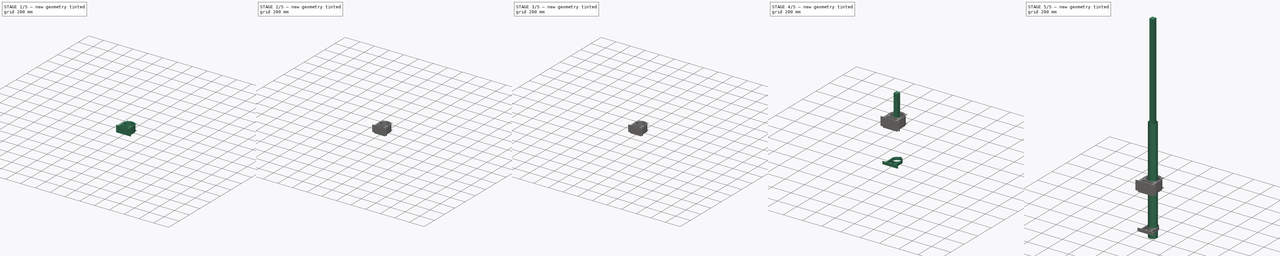
[diagram: build sequence overview — one tinted view per stage of 5, left to right]
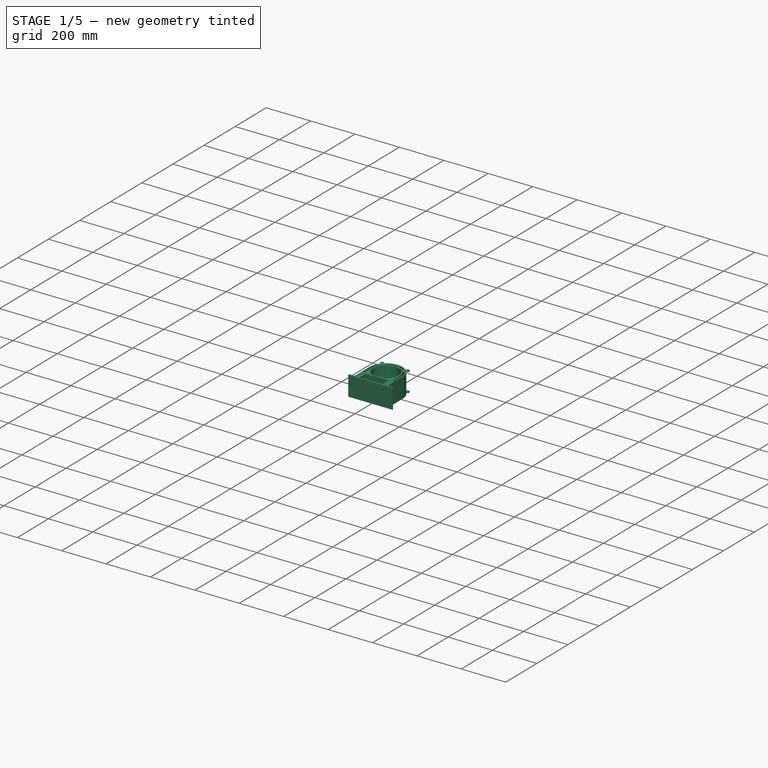
[diagram: stage 1 of 5 — iso view after this stage's code; geometry added in this stage tinted green]
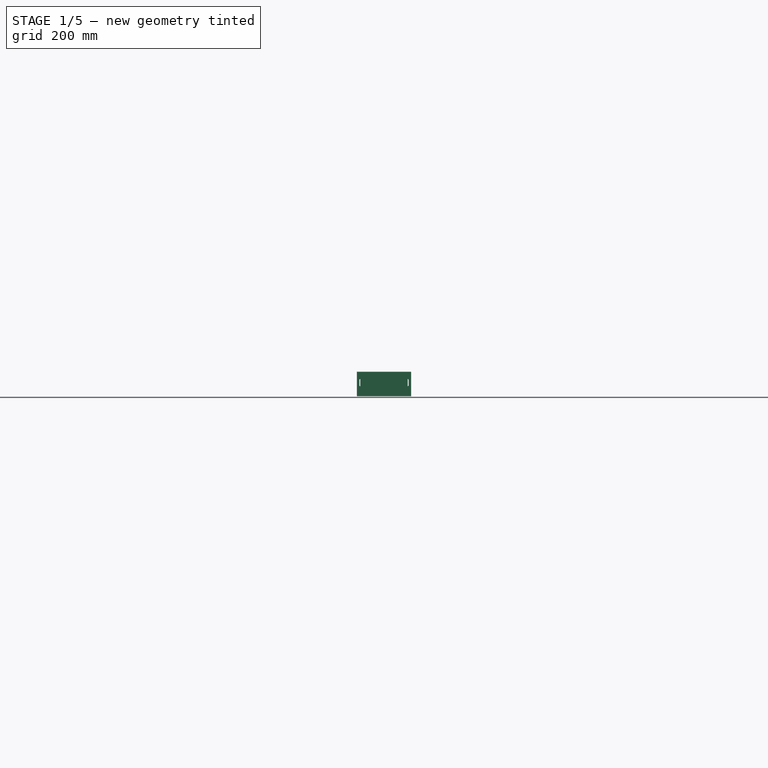
[diagram: stage 1 of 5 — front view after this stage's code; geometry added in this stage tinted green]
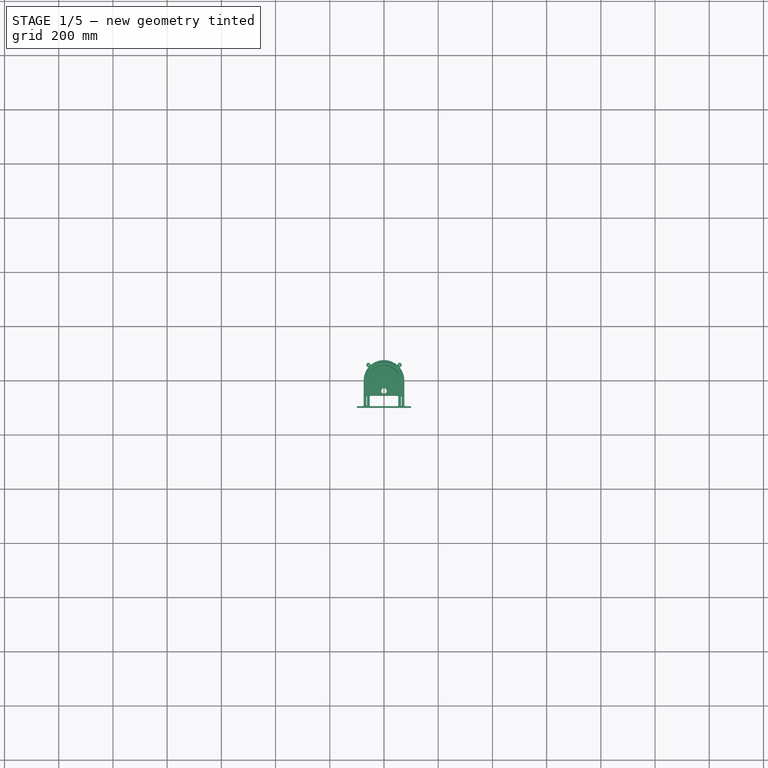
[diagram: stage 1 of 5 — top view after this stage's code; geometry added in this stage tinted green]
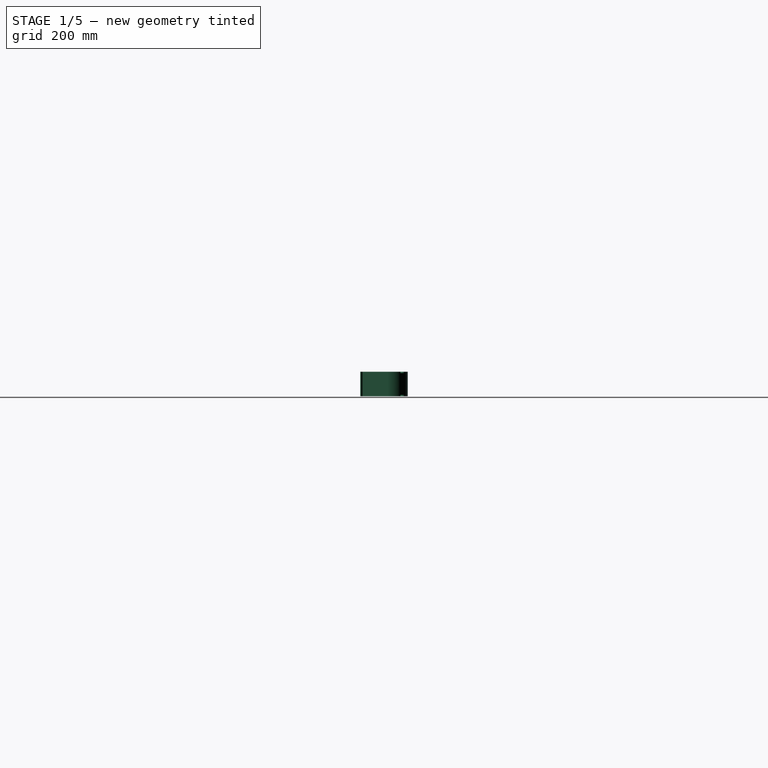
[diagram: stage 1 of 5 — right view after this stage's code; geometry added in this stage tinted green]
FCSTD DOCUMENT  (FreeCAD 0.19R)
Label: mock-up_horizontal_setup
License: All rights reserved
LicenseURL: http://en.wikipedia.org/wiki/All_rights_reserved
objects: Sketcher::SketchObject×48, PartDesign::Pad×34, PartDesign::Body×28, PartDesign::Pocket×14, PartDesign::FeatureBase×5, Spreadsheet::Sheet×1
note: 177 computed .brp shape members not serialized (recipe doc carries the construction recipe); baked Part::Feature solids carry a one-line shape summary decoded from their .brp

FEATURE [PartDesign::Body] Body  label="sample"
  Group = -> [Sketch331,Pad255,Sketch332,Pad256,Sketch333,Pocket062]
  Origin = -> Origin
  Placement = pos=(0,0,900) rot=(0,0,1;0rad)
  Tip = -> Pocket062
FEATURE [Sketcher::SketchObject] Sketch335
  FullyConstrained = true
  MapMode = 5
  Support = -> [XY_Plane102]
  expr: Constraints[54] = 99 / 2
  expr: Constraints[52] = 175 / 2
  expr: Constraints[5] = <<parameters>>.sample_diam
  expr: Constraints[0] = <<parameters>>.support_inner_diam
  sketch-geometry (21):
    g0: Circle CenterX=0 CenterY=0 CenterZ=0 NormalX=0 NormalY=0 NormalZ=1 AngleXU=0 Radius=46
    g1: ArcOfCircle CenterX=0 CenterY=0 CenterZ=0 NormalX=0 NormalY=0 NormalZ=1 AngleXU=0 Radius=62.5 StartAngle=0 EndAngle=3.14159
    g2: LineSegment StartX=62.5 StartY=0 StartZ=0 EndX=62.5 EndY=-92 EndZ=0
    g3: LineSegment StartX=-62.5 StartY=7.7e-15 StartZ=0 EndX=-62.5 EndY=-92 EndZ=0
    g4: LineSegment StartX=-65.5 StartY=-95 StartZ=0 EndX=-85.5 EndY=-95 EndZ=0
    g5: LineSegment StartX=-87.5 StartY=-97 StartZ=0 EndX=-87.5 EndY=-100 EndZ=0
    g6: LineSegment StartX=-87.5 StartY=-100 StartZ=0 EndX=87.5 EndY=-100 EndZ=0
    g7: LineSegment StartX=87.5 StartY=-100 StartZ=0 EndX=87.5 EndY=-97 EndZ=0
    g8: LineSegment StartX=65.5 StartY=-95 StartZ=0 EndX=85.5 EndY=-95 EndZ=0
    g9: ArcOfCircle CenterX=-85.5 CenterY=-97 CenterZ=0 NormalX=0 NormalY=0 NormalZ=1 AngleXU=0 Radius=2 StartAngle=1.5708 EndAngle=3.14159
    g10: ArcOfCircle CenterX=-65.5 CenterY=-92 CenterZ=0 NormalX=0 NormalY=0 NormalZ=1 AngleXU=0 Radius=3 StartAngle=4.71239 EndAngle=6.28319
    g11: ArcOfCircle CenterX=65.5 CenterY=-92 CenterZ=0 NormalX=0 NormalY=0 NormalZ=1 AngleXU=0 Radius=3 StartAngle=3.14159 EndAngle=4.71239
    g12: LineSegment StartX=-52.5 StartY=-58 StartZ=0 EndX=-52.5 EndY=-92 EndZ=0
    g13: LineSegment StartX=-49.5 StartY=-95 StartZ=0 EndX=49.5 EndY=-95 EndZ=0
    g14: LineSegment StartX=52.5 StartY=-92 StartZ=0 EndX=52.5 EndY=-58 EndZ=0
    g15: ArcOfCircle CenterX=-49.5 CenterY=-92 CenterZ=0 NormalX=0 NormalY=0 NormalZ=1 AngleXU=0 Radius=3 StartAngle=3.14159 EndAngle=4.71239
    g16: ArcOfCircle CenterX=-49.5 CenterY=-58 CenterZ=0 NormalX=0 NormalY=0 NormalZ=1 AngleXU=0 Radius=3 StartAngle=1.5708 EndAngle=3.14159
    g17: ArcOfCircle CenterX=49.5 CenterY=-58 CenterZ=0 NormalX=0 NormalY=0 NormalZ=1 AngleXU=0 Radius=3 StartAngle=-9e-16 EndAngle=1.5708
    g18: ArcOfCircle CenterX=49.5 CenterY=-92 CenterZ=0 NormalX=0 NormalY=0 NormalZ=1 AngleXU=0 Radius=3 StartAngle=4.71239 EndAngle=6.28319
    g19: ArcOfCircle CenterX=85.5 CenterY=-97 CenterZ=0 NormalX=0 NormalY=0 NormalZ=1 AngleXU=0 Radius=2 StartAngle=8e-16 EndAngle=1.5708
    g20: LineSegment StartX=-49.5 StartY=-55 StartZ=0 EndX=49.5 EndY=-55 EndZ=0
  constraints (56):
    c: Diameter(g0) = 92
    c: Coincident(g0,g-1)
    c: Coincident(g1,g0)
    c: PointOnObject(g1,g-1)
    c: PointOnObject(g1,g-1)
    c: Diameter(g1) = 125
    c: Coincident(g2,g1)
    c: Vertical(g2)
    c: Coincident(g3,g1)
    c: Vertical(g3)
    c: Horizontal(g4)
    c: Vertical(g5)
    c: Coincident(g6,g5)
    c: Horizontal(g6)
    c: Coincident(g7,g6)
    c: Vertical(g7)
    c: Horizontal(g8)
    c: Tangent(g4,g9) = -1.5708
    c: Tangent(g5,g9) = -1.5708
    c: Tangent(g4,g10) = 1.5708
    c: Tangent(g3,g10) = 1.5708
    c: Tangent(g2,g11) = -1.5708
    c: Tangent(g8,g11) = -1.5708
    c: Vertical(g12)
    c: Horizontal(g13)
    c: Vertical(g14)
    c: Tangent(g12,g15) = -1.5708
    c: Tangent(g13,g15) = -1.5708
    c: Tangent(g12,g16) = -1.5708
    c: Tangent(g14,g17) = -1.5708
    c: Tangent(g13,g18) = -1.5708
    c: Tangent(g14,g18) = -1.5708
    c: Tangent(g7,g19) = -1.5708
    c: Tangent(g8,g19) = 1.5708
    c: DistanceX(g6,g6) = 175
    c: Horizontal(g13,g8)
    c: Horizontal(g14,g2)
    c: Horizontal(g12,g14)
    c: Horizontal(g3,g12)
    c: Horizontal(g4,g13)
    c: Radius(g15) = 3
    c: Equal(g9,g19)
    c: Radius(g19) = 2
    c: DistanceY(g6,g8) = 5
    c: DistanceY(g6,g0) = 100
    c: Coincident(g20,g16)
    c: Coincident(g20,g17)
    c: Horizontal(g20)
    c: DistanceX(g3,g12) = 10
    c: DistanceX(g14,g2) = 10
    c: DistanceY(g17,g0) = 55
    c: DistanceX(g16,g17) = 99
    c: DistanceX(g5,g0) = 87.5
    c: Equal(g17,g16)
    c: DistanceX(g16,g0) = 49.5
    c: Radius(g17) = 3
FEATURE [PartDesign::Pad] Pad258
  Direction = (1,1,1)
  Length = 10
  Length2 = 100
  Profile = -> Sketch335
  Type = 0
FEATURE [Sketcher::SketchObject] Sketch336
  FullyConstrained = true
  MapMode = 5
  Placement = pos=(0,0,10) rot=(0,0,1;0rad)
  Support = -> [Pad258]
  sketch-geometry (24):
    g0: ArcOfCircle CenterX=0 CenterY=0 CenterZ=0 NormalX=0 NormalY=0 NormalZ=1 AngleXU=0 Radius=62.5 StartAngle=0 EndAngle=3.14159
    g1: ArcOfCircle CenterX=0 CenterY=0 CenterZ=0 NormalX=0 NormalY=0 NormalZ=1 AngleXU=0 Radius=57.0636 StartAngle=5.21523 EndAngle=10.4927
    g2: LineSegment StartX=-27.5 StartY=-50 StartZ=0 EndX=27.5 EndY=-50 EndZ=0
    g3: LineSegment StartX=-62.5 StartY=7.7e-15 StartZ=0 EndX=-62.5 EndY=-92 EndZ=0
    g4: LineSegment StartX=-65.5 StartY=-95 StartZ=0 EndX=-85.5 EndY=-95 EndZ=0
    g5: LineSegment StartX=-87.5 StartY=-97 StartZ=0 EndX=-87.5 EndY=-100 EndZ=0
    g6: LineSegment StartX=-87.5 StartY=-100 StartZ=0 EndX=87.5 EndY=-100 EndZ=0
    g7: LineSegment StartX=87.5 StartY=-100 StartZ=0 EndX=87.5 EndY=-97 EndZ=0
    g8: LineSegment StartX=85.5 StartY=-95 StartZ=0 EndX=65.5 EndY=-95 EndZ=0
    g9: LineSegment StartX=62.5 StartY=-92 StartZ=0 EndX=62.5 EndY=0 EndZ=0
    g10: LineSegment StartX=-49.5 StartY=-55 StartZ=0 EndX=49.5 EndY=-55 EndZ=0
    g11: LineSegment StartX=52.5 StartY=-58 StartZ=0 EndX=52.5 EndY=-92 EndZ=0
    g12: LineSegment StartX=49.5 StartY=-95 StartZ=0 EndX=-49.5 EndY=-95 EndZ=0
    g13: LineSegment StartX=-52.5 StartY=-92 StartZ=0 EndX=-52.5 EndY=-58 EndZ=0
    g14: ArcOfCircle CenterX=-49.5 CenterY=-58 CenterZ=0 NormalX=0 NormalY=0 NormalZ=1 AngleXU=0 Radius=3 StartAngle=1.5708 EndAngle=3.14159
    g15: ArcOfCircle CenterX=49.5 CenterY=-58 CenterZ=0 NormalX=0 NormalY=0 NormalZ=1 AngleXU=0 Radius=3 StartAngle=7e-16 EndAngle=1.5708
    g16: ArcOfCircle CenterX=49.5 CenterY=-92 CenterZ=0 NormalX=0 NormalY=0 NormalZ=1 AngleXU=0 Radius=3 StartAngle=4.71239 EndAngle=6.28319
    g17: ArcOfCircle CenterX=-49.5 CenterY=-92 CenterZ=0 NormalX=0 NormalY=0 NormalZ=1 AngleXU=0 Radius=3 StartAngle=3.14159 EndAngle=4.71239
    g18: ArcOfCircle CenterX=-65.5 CenterY=-92 CenterZ=0 NormalX=0 NormalY=0 NormalZ=1 AngleXU=0 Radius=3 StartAngle=4.71239 EndAngle=6.28319
    g19: ArcOfCircle CenterX=-85.5 CenterY=-97 CenterZ=0 NormalX=0 NormalY=0 NormalZ=1 AngleXU=0 Radius=2 StartAngle=1.5708 EndAngle=3.14159
    g20: ArcOfCircle CenterX=65.5 CenterY=-92 CenterZ=0 NormalX=0 NormalY=0 NormalZ=1 AngleXU=0 Radius=3 StartAngle=3.14159 EndAngle=4.71239
    g21: ArcOfCircle CenterX=85.5 CenterY=-97 CenterZ=0 NormalX=0 NormalY=0 NormalZ=1 AngleXU=0 Radius=2 StartAngle=-2.7e-15 EndAngle=1.5708
    g22: LineSegment StartX=-62.5 StartY=-92 StartZ=0 EndX=-52.5 EndY=-92 EndZ=0
    g23: LineSegment StartX=52.5 StartY=-92 StartZ=0 EndX=62.5 EndY=-92 EndZ=0
  constraints (62):
    c: Coincident(g0,g-1)
    c: PointOnObject(g0,g-1)
    c: PointOnObject(g0,g-1)
    c: Coincident(g1,g0)
    c: Coincident(g2,g1)
    c: Coincident(g2,g1)
    c: Horizontal(g2)
    c: DistanceX(g2,g2) = 55
    c: DistanceY(g1,g0) = 50
    c: Coincident(g3,g0)
    c: Vertical(g3)
    c: Horizontal(g4)
    c: Vertical(g5)
    c: Coincident(g6,g5)
    c: Horizontal(g6)
    c: Coincident(g7,g6)
    c: Horizontal(g8)
    c: Coincident(g9,g0)
    c: Vertical(g9)
    c: Vertical(g7)
    c: Horizontal(g10)
    c: Vertical(g11)
    c: Horizontal(g12)
    c: Vertical(g13)
    c: Tangent(g13,g14) = 1.5708
    c: Tangent(g10,g14) = 1.5708
    c: Tangent(g10,g15) = 1.5708
    c: Tangent(g11,g15) = 1.5708
    c: Tangent(g12,g16) = 1.5708
    c: Tangent(g11,g16) = 1.5708
    c: Tangent(g13,g17) = 1.5708
    c: Tangent(g12,g17) = 1.5708
    c: Tangent(g4,g18) = 1.5708
    c: Tangent(g3,g18) = 1.5708
    c: Tangent(g5,g19) = -1.5708
    c: Tangent(g4,g19) = -1.5708
    c: Tangent(g9,g20) = 1.5708
    c: Tangent(g8,g20) = 1.5708
    c: Tangent(g7,g21) = -1.5708
    c: Tangent(g8,g21) = -1.5708
    c: Equal(g19,g21)
    c: Equal(g20,g16)
    c: Equal(g18,g17)
    c: Equal(g17,g16)
    c: Coincident(g22,g3)
    c: Coincident(g22,g13)
    c: Coincident(g23,g11)
    c: Coincident(g23,g9)
    c: Horizontal(g23)
    c: Horizontal(g22)
    c: Equal(g15,g14)
    c: Equal(g22,g23)
    c: DistanceX(g22,g22) = 10
    c: DistanceX(g10,g10) = 99
    c: DistanceX(g5,g6) = 175
    c: Radius(g21) = 2
    c: DistanceY(g5,g4) = 5
    c: DistanceY(g6,g0) = 100
    c: DistanceX(g5,g0) = 87.5
    c: Radius(g17) = 3
    c: DistanceX(g12,g12) = 99
    c: DistanceY(g10,g1) = 5
FEATURE [PartDesign::Pad] Pad259
  BaseFeature = -> Pad258
  Direction = (1,1,1)
  Length = 75
  Length2 = 100
  Profile = -> Sketch336
  Type = 0
FEATURE [Sketcher::SketchObject] Sketch337
  FullyConstrained = true
  MapMode = 5
  Placement = pos=(0,0,85) rot=(0,0,1;0rad)
  Support = -> [Pad259]
  expr: Constraints[75] = 175 / 2
  sketch-geometry (36):
    g0: ArcOfCircle CenterX=0 CenterY=7.1e-15 CenterZ=0 NormalX=0 NormalY=0 NormalZ=1 AngleXU=0 Radius=62.5 StartAngle=2.49582 EndAngle=3.14159
    g1: ArcOfCircle CenterX=0 CenterY=7.1e-15 CenterZ=0 NormalX=0 NormalY=0 NormalZ=1 AngleXU=0 Radius=62.5 StartAngle=0 EndAngle=0.645772
    g2: ArcOfCircle CenterX=0 CenterY=7.1e-15 CenterZ=0 NormalX=0 NormalY=0 NormalZ=1 AngleXU=0 Radius=62.5 StartAngle=0.925025 EndAngle=2.21657
    g3: ArcOfCircle CenterX=-47.3633 CenterY=47.3633 CenterZ=0 NormalX=0 NormalY=0 NormalZ=1 AngleXU=0 Radius=7.5 StartAngle=0.451928 EndAngle=4.26046
    g4: LineSegment StartX=-47.3633 StartY=47.3633 StartZ=0 EndX=47.3633 EndY=47.3633 EndZ=0
    g5: LineSegment StartX=47.3633 StartY=47.3633 StartZ=0 EndX=0 EndY=7.1e-15 EndZ=0
    g6: LineSegment StartX=0 StartY=7.1e-15 StartZ=0 EndX=-47.3633 EndY=47.3633 EndZ=0
    g7: Circle CenterX=47.3633 CenterY=47.3633 CenterZ=0 NormalX=0 NormalY=0 NormalZ=1 AngleXU=0 Radius=2.25
    g8: Circle CenterX=-47.3633 CenterY=47.3633 CenterZ=0 NormalX=0 NormalY=0 NormalZ=1 AngleXU=0 Radius=2.25
    g9: ArcOfCircle CenterX=47.3633 CenterY=47.3633 CenterZ=0 NormalX=0 NormalY=0 NormalZ=1 AngleXU=0 Radius=7.5 StartAngle=5.16432 EndAngle=8.97285
    g10: ArcOfCircle CenterX=38.8171 CenterY=51.512 CenterZ=0 NormalX=0 NormalY=0 NormalZ=1 AngleXU=0 Radius=2 StartAngle=4.06662 EndAngle=5.83126
    g11: ArcOfCircle CenterX=51.512 CenterY=38.8171 CenterZ=0 NormalX=0 NormalY=0 NormalZ=1 AngleXU=0 Radius=2 StartAngle=2.02272 EndAngle=3.78736
    g12: ArcOfCircle CenterX=-38.8171 CenterY=51.512 CenterZ=0 NormalX=0 NormalY=0 NormalZ=1 AngleXU=0 Radius=2 StartAngle=3.59352 EndAngle=5.35816
    g13: ArcOfCircle CenterX=-51.512 CenterY=38.8171 CenterZ=0 NormalX=0 NormalY=0 NormalZ=1 AngleXU=0 Radius=2 StartAngle=5.63741 EndAngle=7.40205
    g14: LineSegment StartX=49.9147 StartY=37.6134 StartZ=0 EndX=0 EndY=7.1e-15 EndZ=0
    g15: LineSegment StartX=-62.5 StartY=1.48e-14 StartZ=0 EndX=-62.5 EndY=-92 EndZ=0
    g16: LineSegment StartX=-65.5 StartY=-95 StartZ=0 EndX=-85.5 EndY=-95 EndZ=0
    g17: LineSegment StartX=-87.5 StartY=-97 StartZ=0 EndX=-87.5 EndY=-100 EndZ=0
    g18: LineSegment StartX=-87.5 StartY=-100 StartZ=0 EndX=87.5 EndY=-100 EndZ=0
    g19: LineSegment StartX=87.5 StartY=-100 StartZ=0 EndX=87.5 EndY=-97 EndZ=0
    g20: LineSegment StartX=85.5 StartY=-95 StartZ=0 EndX=65.5 EndY=-95 EndZ=0
    g21: LineSegment StartX=62.5 StartY=-92 StartZ=0 EndX=62.5 EndY=0 EndZ=0
    g22: LineSegment StartX=-49.5 StartY=-55 StartZ=0 EndX=49.5 EndY=-55 EndZ=0
    g23: LineSegment StartX=52.5 StartY=-58 StartZ=0 EndX=52.5 EndY=-92 EndZ=0
    g24: LineSegment StartX=49.5 StartY=-95 StartZ=0 EndX=-49.5 EndY=-95 EndZ=0
    g25: LineSegment StartX=-52.5 StartY=-92 StartZ=0 EndX=-52.5 EndY=-58 EndZ=0
    g26: ArcOfCircle CenterX=-49.5 CenterY=-58 CenterZ=0 NormalX=0 NormalY=0 NormalZ=1 AngleXU=0 Radius=3 StartAngle=1.5708 EndAngle=3.14159
    g27: ArcOfCircle CenterX=49.5 CenterY=-58 CenterZ=0 NormalX=0 NormalY=0 NormalZ=1 AngleXU=0 Radius=3 StartAngle=2e-16 EndAngle=1.5708
    g28: ArcOfCircle CenterX=65.5 CenterY=-92 CenterZ=0 NormalX=0 NormalY=0 NormalZ=1 AngleXU=0 Radius=3 StartAngle=3.14159 EndAngle=4.71239
    g29: ArcOfCircle CenterX=49.5 CenterY=-92 CenterZ=0 NormalX=0 NormalY=0 NormalZ=1 AngleXU=0 Radius=3 StartAngle=4.71239 EndAngle=6.28319
    g30: ArcOfCircle CenterX=-49.5 CenterY=-92 CenterZ=0 NormalX=0 NormalY=0 NormalZ=1 AngleXU=0 Radius=3 StartAngle=3.14159 EndAngle=4.71239
    g31: ArcOfCircle CenterX=-65.5 CenterY=-92 CenterZ=0 NormalX=0 NormalY=0 NormalZ=1 AngleXU=0 Radius=3 StartAngle=4.71239 EndAngle=6.28319
    g32: ArcOfCircle CenterX=-85.5 CenterY=-97 CenterZ=0 NormalX=0 NormalY=0 NormalZ=1 AngleXU=0 Radius=2 StartAngle=1.5708 EndAngle=3.14159
    g33: ArcOfCircle CenterX=85.5 CenterY=-97 CenterZ=0 NormalX=0 NormalY=0 NormalZ=1 AngleXU=0 Radius=2 StartAngle=8e-16 EndAngle=1.5708
    g34: ArcOfCircle CenterX=0 CenterY=7.1e-15 CenterZ=0 NormalX=0 NormalY=0 NormalZ=1 AngleXU=0 Radius=57.0636 StartAngle=5.21523 EndAngle=10.4927
    g35: LineSegment StartX=-27.5 StartY=-50 StartZ=0 EndX=27.5 EndY=-50 EndZ=0
  constraints (92):
    c: PointOnObject(g0,g-1)
    c: PointOnObject(g1,g-1)
    c: Coincident(g4,g3)
    c: Coincident(g6,g3)
    c: Horizontal(g4)
    c: Angle(g-1,g5) = 0.785398
    c: Diameter(g2) = 125
    c: Diameter(g3) = 15
    c: Coincident(g8,g3)
    c: Coincident(g9,g7)
    c: Tangent(g9,g10) = 1.5708
    c: Tangent(g2,g10) = 1.5708
    c: Tangent(g1,g11) = 1.5708
    c: Tangent(g9,g11) = 1.5708
    c: Tangent(g3,g12) = 1.5708
    c: Tangent(g2,g12) = 1.5708
    c: Tangent(g0,g13) = 1.5708
    c: Tangent(g3,g13) = 1.5708
    c: Diameter(g7) = 4.5
    c: Equal(g7,g8)
    c: Equal(g11,g10)
    c: Equal(g10,g12)
    c: Equal(g12,g13)
    c: Radius(g12) = 2
    c: Coincident(g14,g1)
    c: Coincident(g14,g5)
    c: Coincident(g2,g5)
    c: Coincident(g2,g1)
    c: Coincident(g1,g0)
    c: Coincident(g0,g-1)
    c: Angle(g14,g5) = 0.139626
    c: Diameter(g1) = 125
    c: Coincident(g5,g7)
    c: Coincident(g7,g4)
    c: Coincident(g15,g0)
    c: Vertical(g15)
    c: Horizontal(g16)
    c: Vertical(g17)
    c: Coincident(g18,g17)
    c: Horizontal(g18)
    c: Coincident(g19,g18)
    c: Horizontal(g20)
    c: Coincident(g21,g1)
    c: Vertical(g21)
    c: Vertical(g19)
    c: Horizontal(g22)
    c: Vertical(g23)
    c: Horizontal(g24)
    c: Vertical(g25)
    c: Tangent(g25,g26) = 1.5708
    c: Tangent(g22,g26) = 1.5708
    c: Tangent(g22,g27) = 1.5708
    c: Tangent(g23,g27) = 1.5708
    c: Tangent(g21,g28) = 1.5708
    c: Tangent(g20,g28) = 1.5708
    c: Tangent(g24,g29) = 1.5708
    c: Tangent(g23,g29) = 1.5708
    c: Tangent(g24,g30) = 1.5708
    c: Tangent(g25,g30) = 1.5708
    c: Tangent(g16,g31) = 1.5708
    c: Tangent(g15,g31) = 1.5708
    c: Tangent(g17,g32) = -1.5708
    c: Tangent(g16,g32) = -1.5708
    c: Tangent(g20,g33) = -1.5708
    c: Tangent(g19,g33) = -1.5708
    c: Equal(g26,g27)
    c: Equal(g28,g29)
    c: Equal(g29,g30)
    c: Equal(g30,g31)
    c: Horizontal(g15,g25)
    c: Horizontal(g23,g21)
    c: Radius(g28) = 3
    c: Equal(g33,g32)
    c: Radius(g33) = 2
    c: DistanceX(g18,g18) = 175
    c: DistanceX(g17,g0) = 87.5
    c: DistanceY(g18,g20) = 5
    c: DistanceY(g18,g0) = 100
    c: DistanceX(g15,g25) = 10
    c: DistanceX(g23,g21) = 10
    c: Radius(g27) = 3
    c: Coincident(g34,g0)
    c: Coincident(g35,g34)
    c: Coincident(g35,g34)
    c: Horizontal(g35)
    c: DistanceX(g35,g35) = 55
    c: DistanceY(g34,g0) = 50
    c: DistanceY(g22,g34) = 5
    c: Equal(g1,g0)
    c: Equal(g6,g5)
    c: Equal(g3,g9)
    c: Coincident(g0,g6)
FEATURE [PartDesign::Pad] Pad260
  BaseFeature = -> Pad259
  Direction = (1,1,1)
  Length = 5
  Length2 = 100
  Profile = -> Sketch337
  Type = 0
FEATURE [Sketcher::SketchObject] Sketch338
  FullyConstrained = true
  MapMode = 5
  Placement = pos=(0,-50,0) rot=(0,0.707107,0.707107;3.14159rad)
  Support = -> [Pad260]
  sketch-geometry (2):
    g0: Circle CenterX=0 CenterY=20 CenterZ=0 NormalX=0 NormalY=0 NormalZ=1 AngleXU=0 Radius=1.7
    g1: Circle CenterX=0 CenterY=50 CenterZ=0 NormalX=0 NormalY=0 NormalZ=1 AngleXU=0 Radius=1.7
  constraints (6):
    c: PointOnObject(g0,g-2)
    c: PointOnObject(g1,g-2)
    c: Diameter(g1) = 3.4
    c: Equal(g1,g0)
    c: DistanceY(g0,g1) = 30
    c: DistanceY(g-1,g0) = 20
FEATURE [PartDesign::Pocket] Pocket063
  BaseFeature = -> Pad260
  Length = 5
  Length2 = 100
  Profile = -> Sketch338
  Type = 0
FEATURE [PartDesign::Body] Body102  label="sample_support001"
  Group = -> [Sketch335,Pad258,Sketch336,Pad259,Sketch337,Pad260,Sketch338,Pocket063,Sketch339,Pocket064]
  Origin = -> Origin102
  Placement = pos=(0,0,890) rot=(0,0,1;0rad)
  Tip = -> Pocket064
FEATURE [Sketcher::SketchObject] Sketch
  FullyConstrained = true
  MapMode = 5
  Support = -> [XY_Plane103]
  expr: Constraints[52] = <<parameters>>.support_inner_diam + 8
  sketch-geometry (33):
    g0: Circle CenterX=0 CenterY=0 CenterZ=0 NormalX=0 NormalY=0 NormalZ=1 AngleXU=0 Radius=50
    g1: LineSegment StartX=-75 StartY=-90 StartZ=0 EndX=-75 EndY=0 EndZ=0
    g2: LineSegment StartX=75 StartY=-90 StartZ=0 EndX=75 EndY=0 EndZ=0
    g3: LineSegment StartX=-80 StartY=-95 StartZ=0 EndX=-97 EndY=-95 EndZ=0
    g4: LineSegment StartX=-100 StartY=-98 StartZ=0 EndX=-100 EndY=-100 EndZ=0
    g5: LineSegment StartX=-100 StartY=-100 StartZ=0 EndX=-40 EndY=-100 EndZ=0
    g6: LineSegment StartX=-40 StartY=-100 StartZ=0 EndX=-40 EndY=-98 EndZ=0
    g7: LineSegment StartX=-43 StartY=-95 StartZ=0 EndX=-60 EndY=-95 EndZ=0
    g8: LineSegment StartX=-65 StartY=-90 StartZ=0 EndX=-65 EndY=-60 EndZ=0
    g9: LineSegment StartX=-60 StartY=-55 StartZ=0 EndX=60 EndY=-55 EndZ=0
    g10: LineSegment StartX=65 StartY=-60 StartZ=0 EndX=65 EndY=-90 EndZ=0
    g11: LineSegment StartX=60 StartY=-95 StartZ=0 EndX=43 EndY=-95 EndZ=0
    g12: LineSegment StartX=40 StartY=-98 StartZ=0 EndX=40 EndY=-100 EndZ=0
    g13: LineSegment StartX=40 StartY=-100 StartZ=0 EndX=100 EndY=-100 EndZ=0
    g14: LineSegment StartX=80 StartY=-95 StartZ=0 EndX=97 EndY=-95 EndZ=0
    g15: LineSegment StartX=100 StartY=-98 StartZ=0 EndX=100 EndY=-100 EndZ=0
    g16: ArcOfCircle CenterX=-97 CenterY=-98 CenterZ=0 NormalX=0 NormalY=0 NormalZ=1 AngleXU=0 Radius=3 StartAngle=1.5708 EndAngle=3.14159
    g17: ArcOfCircle CenterX=-80 CenterY=-90 CenterZ=0 NormalX=0 NormalY=0 NormalZ=1 AngleXU=0 Radius=5 StartAngle=4.71239 EndAngle=6.28319
    g18: ArcOfCircle CenterX=-60 CenterY=-90 CenterZ=0 NormalX=0 NormalY=0 NormalZ=1 AngleXU=0 Radius=5 StartAngle=3.14159 EndAngle=4.71239
    g19: ArcOfCircle CenterX=-43 CenterY=-98 CenterZ=0 NormalX=0 NormalY=0 NormalZ=1 AngleXU=0 Radius=3 StartAngle=8e-16 EndAngle=1.5708
    g20: ArcOfCircle CenterX=43 CenterY=-98 CenterZ=0 NormalX=0 NormalY=0 NormalZ=1 AngleXU=0 Radius=3 StartAngle=1.5708 EndAngle=3.14159
    g21: ArcOfCircle CenterX=60 CenterY=-90 CenterZ=0 NormalX=0 NormalY=0 NormalZ=1 AngleXU=0 Radius=5 StartAngle=4.71239 EndAngle=6.28319
    g22: ArcOfCircle CenterX=80 CenterY=-90 CenterZ=0 NormalX=0 NormalY=0 NormalZ=1 AngleXU=0 Radius=5 StartAngle=3.14159 EndAngle=4.71239
    g23: ArcOfCircle CenterX=97 CenterY=-98 CenterZ=0 NormalX=0 NormalY=0 NormalZ=1 AngleXU=0 Radius=3 StartAngle=1.3e-15 EndAngle=1.5708
    g24: LineSegment StartX=-80 StartY=-95 StartZ=0 EndX=-60 EndY=-95 EndZ=0
    g25: LineSegment StartX=60 StartY=-95 StartZ=0 EndX=80 EndY=-95 EndZ=0
    g26: LineSegment StartX=-40 StartY=-100 StartZ=0 EndX=40 EndY=-100 EndZ=0
    g27: LineSegment StartX=-75 StartY=0 StartZ=0 EndX=75 EndY=0 EndZ=0
    g28: ArcOfCircle CenterX=0 CenterY=0 CenterZ=0 NormalX=0 NormalY=0 NormalZ=1 AngleXU=0 Radius=75 StartAngle=0 EndAngle=3.14159
    g29: ArcOfCircle CenterX=-60 CenterY=-60 CenterZ=0 NormalX=0 NormalY=0 NormalZ=1 AngleXU=0 Radius=5 StartAngle=1.5708 EndAngle=3.14159
    g30: ArcOfCircle CenterX=60 CenterY=-60 CenterZ=0 NormalX=0 NormalY=0 NormalZ=1 AngleXU=0 Radius=5 StartAngle=-9e-16 EndAngle=1.5708
    g31: LineSegment StartX=-75 StartY=-90 StartZ=0 EndX=-65 EndY=-90 EndZ=0
    g32: LineSegment StartX=65 StartY=-90 StartZ=0 EndX=75 EndY=-90 EndZ=0
  constraints (82):
    c: Coincident(g0,g-1)
    c: Vertical(g1)
    c: Vertical(g2)
    c: Vertical(g4)
    c: Coincident(g5,g4)
    c: Horizontal(g5)
    c: Coincident(g6,g5)
    c: Vertical(g6)
    c: Horizontal(g7)
    c: Vertical(g8)
    c: Horizontal(g9)
    c: Vertical(g10)
    c: Horizontal(g11)
    c: Vertical(g12)
    c: Coincident(g13,g12)
    c: Horizontal(g13)
    c: Horizontal(g3)
    c: Horizontal(g14)
    c: Coincident(g15,g13)
    c: Vertical(g15)
    c: Tangent(g4,g16) = -1.5708
    c: Tangent(g3,g16) = -1.5708
    c: Tangent(g3,g17) = 1.5708
    c: Tangent(g1,g17) = -1.5708
    c: Tangent(g8,g18) = 1.5708
    c: Tangent(g7,g18) = 1.5708
    c: Tangent(g7,g19) = -1.5708
    c: Tangent(g6,g19) = -1.5708
    c: Tangent(g12,g20) = -1.5708
    c: Tangent(g11,g20) = -1.5708
    c: Tangent(g11,g21) = 1.5708
    c: Tangent(g10,g21) = 1.5708
    c: Tangent(g2,g22) = 1.5708
    c: Tangent(g14,g22) = -1.5708
    c: Tangent(g14,g23) = 1.5708
    c: Tangent(g15,g23) = 1.5708
    c: Equal(g17,g18)
    c: Equal(g21,g18)
    c: Equal(g21,g22)
    c: Equal(g23,g20)
    c: Equal(g20,g19)
    c: Equal(g19,g16)
    c: Coincident(g24,g3)
    c: Coincident(g24,g7)
    c: Coincident(g25,g11)
    c: Coincident(g25,g14)
    c: Horizontal(g25)
    c: DistanceY(g13,g14) = 5
    c: DistanceY(g4,g3) = 5
    c: DistanceY(g13,g0) = 100
    c: Coincident(g26,g5)
    c: Coincident(g26,g12)
    c: Diameter(g0) = 100
    c: DistanceX(g1,g2) = 150
    c: Coincident(g27,g1)
    c: Coincident(g27,g2)
    c: Horizontal(g27)
    c: DistanceY(g2,g0) = 0
    c: Coincident(g28,g0)
    c: Coincident(g28,g1)
    c: Coincident(g28,g2)
    c: Tangent(g8,g29) = 1.5708
    c: Tangent(g9,g29) = 1.5708
    c: Tangent(g9,g30) = 1.5708
    c: Tangent(g10,g30) = 1.5708
    c: Equal(g30,g29)
    c: Radius(g30) = 5
    c: Radius(g18) = 5
    c: Radius(g19) = 3
    c: Horizontal(g26)
    c: DistanceX(g1,g8) = 10
    c: Coincident(g31,g1)
    c: Coincident(g31,g8)
    c: Horizontal(g31)
    c: Coincident(g32,g10)
    c: Coincident(g32,g2)
    c: Equal(g31,g32)
    c: DistanceX(g4,g13) = 200
    c: DistanceX(g4,g0) = 100
    c: DistanceX(g4,g5) = 60
    c: DistanceX(g12,g13) = 60
    c: DistanceY(g9,g0) = 55
FEATURE [PartDesign::Pad] Pad261
  Direction = (1,1,1)
  Length = 5
  Length2 = 100
  Profile = -> Sketch
  Type = 0
FEATURE [Sketcher::SketchObject] Sketch340
  FullyConstrained = true
  MapMode = 5
  Placement = pos=(0,0,5) rot=(0,0,1;0rad)
  Support = -> [Pad261]
  sketch-geometry (35):
    g0: LineSegment StartX=-75 StartY=9.2e-15 StartZ=0 EndX=-75 EndY=-90 EndZ=0
    g1: LineSegment StartX=-80 StartY=-95 StartZ=0 EndX=-97 EndY=-95 EndZ=0
    g2: LineSegment StartX=-100 StartY=-98 StartZ=0 EndX=-100 EndY=-100 EndZ=0
    g3: LineSegment StartX=-100 StartY=-100 StartZ=0 EndX=-40 EndY=-100 EndZ=0
    g4: LineSegment StartX=-40 StartY=-100 StartZ=0 EndX=-40 EndY=-98 EndZ=0
    g5: LineSegment StartX=-43 StartY=-95 StartZ=0 EndX=-60 EndY=-95 EndZ=0
    g6: LineSegment StartX=-65 StartY=-90 StartZ=0 EndX=-65 EndY=-60 EndZ=0
    g7: LineSegment StartX=-60 StartY=-55 StartZ=0 EndX=60 EndY=-55 EndZ=0
    g8: LineSegment StartX=65 StartY=-60 StartZ=0 EndX=65 EndY=-90 EndZ=0
    g9: LineSegment StartX=60 StartY=-95 StartZ=0 EndX=43 EndY=-95 EndZ=0
    g10: LineSegment StartX=40 StartY=-98 StartZ=0 EndX=40 EndY=-100 EndZ=0
    g11: LineSegment StartX=40 StartY=-100 StartZ=0 EndX=100 EndY=-100 EndZ=0
    g12: LineSegment StartX=100 StartY=-100 StartZ=0 EndX=100 EndY=-98 EndZ=0
    g13: LineSegment StartX=97 StartY=-95 StartZ=0 EndX=80 EndY=-95 EndZ=0
    g14: LineSegment StartX=75 StartY=-90 StartZ=0 EndX=75 EndY=0 EndZ=0
    g15: ArcOfCircle CenterX=0 CenterY=0 CenterZ=0 NormalX=0 NormalY=0 NormalZ=1 AngleXU=0 Radius=75 StartAngle=0 EndAngle=3.14159
    g16: LineSegment StartX=-65 StartY=-50 StartZ=0 EndX=65 EndY=-50 EndZ=0
    g17: LineSegment StartX=70 StartY=-45 StartZ=0 EndX=70 EndY=0 EndZ=0
    g18: LineSegment StartX=-70 StartY=-45 StartZ=0 EndX=-70 EndY=7.1e-15 EndZ=0
    g19: ArcOfCircle CenterX=0 CenterY=0 CenterZ=0 NormalX=0 NormalY=0 NormalZ=1 AngleXU=0 Radius=70 StartAngle=0 EndAngle=3.14159
    g20: ArcOfCircle CenterX=-60 CenterY=-60 CenterZ=0 NormalX=0 NormalY=0 NormalZ=1 AngleXU=0 Radius=5 StartAngle=1.5708 EndAngle=3.14159
    g21: ArcOfCircle CenterX=60 CenterY=-60 CenterZ=0 NormalX=0 NormalY=0 NormalZ=1 AngleXU=0 Radius=5 StartAngle=-9e-16 EndAngle=1.5708
    g22: ArcOfCircle CenterX=-60 CenterY=-90 CenterZ=0 NormalX=0 NormalY=0 NormalZ=1 AngleXU=0 Radius=5 StartAngle=3.14159 EndAngle=4.71239
    g23: ArcOfCircle CenterX=-80 CenterY=-90 CenterZ=0 NormalX=0 NormalY=0 NormalZ=1 AngleXU=0 Radius=5 StartAngle=4.71239 EndAngle=6.28319
    g24: ArcOfCircle CenterX=-43 CenterY=-98 CenterZ=0 NormalX=0 NormalY=0 NormalZ=1 AngleXU=0 Radius=3 StartAngle=1.5e-15 EndAngle=1.5708
    g25: ArcOfCircle CenterX=-97 CenterY=-98 CenterZ=0 NormalX=0 NormalY=0 NormalZ=1 AngleXU=0 Radius=3 StartAngle=1.5708 EndAngle=3.14159
    g26: ArcOfCircle CenterX=60 CenterY=-90 CenterZ=0 NormalX=0 NormalY=0 NormalZ=1 AngleXU=0 Radius=5 StartAngle=4.71239 EndAngle=6.28319
    g27: ArcOfCircle CenterX=80 CenterY=-90 CenterZ=0 NormalX=0 NormalY=0 NormalZ=1 AngleXU=0 Radius=5 StartAngle=3.14159 EndAngle=4.71239
    g28: ArcOfCircle CenterX=43 CenterY=-98 CenterZ=0 NormalX=0 NormalY=0 NormalZ=1 AngleXU=0 Radius=3 StartAngle=1.5708 EndAngle=3.14159
    g29: ArcOfCircle CenterX=97 CenterY=-98 CenterZ=0 NormalX=0 NormalY=0 NormalZ=1 AngleXU=0 Radius=3 StartAngle=1.2e-15 EndAngle=1.5708
    g30: ArcOfCircle CenterX=65 CenterY=-45 CenterZ=0 NormalX=0 NormalY=0 NormalZ=1 AngleXU=0 Radius=5 StartAngle=4.71239 EndAngle=6.28319
    g31: ArcOfCircle CenterX=-65 CenterY=-45 CenterZ=0 NormalX=0 NormalY=0 NormalZ=1 AngleXU=0 Radius=5 StartAngle=3.14159 EndAngle=4.71239
    g32: LineSegment StartX=-40 StartY=-100 StartZ=0 EndX=40 EndY=-100 EndZ=0
    g33: LineSegment StartX=-75 StartY=-90 StartZ=0 EndX=-65 EndY=-90 EndZ=0
    g34: LineSegment StartX=65 StartY=-90 StartZ=0 EndX=75 EndY=-90 EndZ=0
  constraints (90):
    c: PointOnObject(g0,g-1)
    c: Vertical(g0)
    c: Horizontal(g1)
    c: Vertical(g2)
    c: Coincident(g3,g2)
    c: Horizontal(g3)
    c: Coincident(g4,g3)
    c: Vertical(g4)
    c: Horizontal(g5)
    c: Vertical(g6)
    c: Horizontal(g7)
    c: Vertical(g8)
    c: Vertical(g10)
    c: Coincident(g11,g10)
    c: Horizontal(g11)
    c: Coincident(g12,g11)
    c: Vertical(g12)
    c: Horizontal(g13)
    c: PointOnObject(g14,g-1)
    c: Vertical(g14)
    c: Coincident(g15,g-1)
    c: Coincident(g15,g0)
    c: Coincident(g15,g14)
    c: Horizontal(g9)
    c: Horizontal(g16)
    c: PointOnObject(g17,g-1)
    c: Vertical(g17)
    c: PointOnObject(g18,g-1)
    c: Vertical(g18)
    c: Coincident(g19,g15)
    c: Coincident(g19,g18)
    c: Coincident(g19,g17)
    c: Tangent(g6,g20) = 1.5708
    c: Tangent(g7,g20) = 1.5708
    c: Tangent(g7,g21) = 1.5708
    c: Tangent(g8,g21) = 1.5708
    c: Tangent(g5,g22) = 1.5708
    c: Tangent(g6,g22) = 1.5708
    c: Tangent(g1,g23) = 1.5708
    c: Tangent(g0,g23) = 1.5708
    c: Tangent(g5,g24) = -1.5708
    c: Tangent(g4,g24) = -1.5708
    c: Tangent(g2,g25) = -1.5708
    c: Tangent(g1,g25) = -1.5708
    c: Tangent(g9,g26) = 1.5708
    c: Tangent(g8,g26) = 1.5708
    c: Tangent(g13,g27) = 1.5708
    c: Tangent(g14,g27) = 1.5708
    c: Tangent(g10,g28) = -1.5708
    c: Tangent(g9,g28) = -1.5708
    c: Tangent(g13,g29) = -1.5708
    c: Tangent(g12,g29) = -1.5708
    c: Tangent(g16,g30) = -1.5708
    c: Tangent(g17,g30) = -1.5708
    c: Tangent(g18,g31) = 1.5708
    c: Tangent(g16,g31) = -1.5708
    c: DistanceX(g17,g14) = 5
    c: DistanceX(g0,g14) = 150
    c: DistanceY(g7,g16) = 5
    c: DistanceY(g16,g15) = 50
    c: Radius(g31) = 5
    c: Equal(g31,g30)
    c: Equal(g20,g21)
    c: Radius(g20) = 5
    c: Equal(g27,g26)
    c: Equal(g26,g22)
    c: Equal(g22,g23)
    c: Radius(g22) = 5
    c: Equal(g25,g24)
    c: Equal(g24,g28)
    c: Equal(g28,g29)
    c: Radius(g29) = 3
    c: Coincident(g32,g3)
    c: Coincident(g32,g10)
    c: Horizontal(g32)
    c: DistanceY(g10,g9) = 5
    c: DistanceY(g3,g5) = 5
    c: Coincident(g33,g0)
    c: Coincident(g33,g6)
    c: Coincident(g34,g8)
    c: Coincident(g34,g14)
    c: Horizontal(g33)
    c: Horizontal(g34)
    c: Equal(g33,g34)
    c: DistanceX(g33,g33) = 10
    c: DistanceY(g11,g15) = 100
    c: DistanceX(g10,g11) = 60
    c: DistanceX(g2,g3) = 60
    c: DistanceX(g2,g15) = 100
    c: DistanceX(g2,g11) = 200
FEATURE [PartDesign::Pad] Pad262
  BaseFeature = -> Pad261
  Direction = (1,1,1)
  Length = 80
  Length2 = 100
  Profile = -> Sketch340
  Type = 0
FEATURE [Sketcher::SketchObject] Sketch341
  FullyConstrained = true
  MapMode = 5
  Placement = pos=(0,0,85) rot=(0,0,1;0rad)
  Support = -> [Pad262]
  sketch-geometry (49):
    g0: LineSegment StartX=-75 StartY=9.2e-15 StartZ=0 EndX=-75 EndY=-90 EndZ=0
    g1: LineSegment StartX=-80 StartY=-95 StartZ=0 EndX=-97 EndY=-95 EndZ=0
    g2: LineSegment StartX=-100 StartY=-98 StartZ=0 EndX=-100 EndY=-100 EndZ=0
    g3: LineSegment StartX=-100 StartY=-100 StartZ=0 EndX=-40 EndY=-100 EndZ=0
    g4: LineSegment StartX=-40 StartY=-100 StartZ=0 EndX=-40 EndY=-98 EndZ=0
    g5: LineSegment StartX=-43 StartY=-95 StartZ=0 EndX=-60 EndY=-95 EndZ=0
    g6: LineSegment StartX=-65 StartY=-90 StartZ=0 EndX=-65 EndY=-60 EndZ=0
    g7: LineSegment StartX=-60 StartY=-55 StartZ=0 EndX=60 EndY=-55 EndZ=0
    g8: LineSegment StartX=65 StartY=-60 StartZ=0 EndX=65 EndY=-90 EndZ=0
    g9: LineSegment StartX=60 StartY=-95 StartZ=0 EndX=43 EndY=-95 EndZ=0
    g10: LineSegment StartX=40 StartY=-98 StartZ=0 EndX=40 EndY=-100 EndZ=0
    g11: LineSegment StartX=40 StartY=-100 StartZ=0 EndX=100 EndY=-100 EndZ=0
    g12: LineSegment StartX=100 StartY=-100 StartZ=0 EndX=100 EndY=-98 EndZ=0
    g13: LineSegment StartX=97 StartY=-95 StartZ=0 EndX=80 EndY=-95 EndZ=0
    g14: LineSegment StartX=75 StartY=-90 StartZ=0 EndX=75 EndY=0 EndZ=0
    g15: ArcOfCircle CenterX=0 CenterY=0 CenterZ=0 NormalX=0 NormalY=0 NormalZ=1 AngleXU=0 Radius=75 StartAngle=0.890118 EndAngle=2.25147
    g16: ArcOfCircle CenterX=0 CenterY=0 CenterZ=0 NormalX=0 NormalY=0 NormalZ=1 AngleXU=0 Radius=75 StartAngle=0 EndAngle=0.680678
    g17: ArcOfCircle CenterX=0 CenterY=0 CenterZ=0 NormalX=0 NormalY=0 NormalZ=1 AngleXU=0 Radius=75 StartAngle=2.46091 EndAngle=3.14159
    g18: ArcOfCircle CenterX=-60 CenterY=-60 CenterZ=0 NormalX=0 NormalY=0 NormalZ=1 AngleXU=0 Radius=5 StartAngle=1.5708 EndAngle=3.14159
    g19: ArcOfCircle CenterX=60 CenterY=-60 CenterZ=0 NormalX=0 NormalY=0 NormalZ=1 AngleXU=0 Radius=5 StartAngle=-9e-16 EndAngle=1.5708
    g20: ArcOfCircle CenterX=60 CenterY=-90 CenterZ=0 NormalX=0 NormalY=0 NormalZ=1 AngleXU=0 Radius=5 StartAngle=4.71239 EndAngle=6.28319
    g21: ArcOfCircle CenterX=80 CenterY=-90 CenterZ=0 NormalX=0 NormalY=0 NormalZ=1 AngleXU=0 Radius=5 StartAngle=3.14159 EndAngle=4.71239
    g22: ArcOfCircle CenterX=-60 CenterY=-90 CenterZ=0 NormalX=0 NormalY=0 NormalZ=1 AngleXU=0 Radius=5 StartAngle=3.14159 EndAngle=4.71239
    g23: ArcOfCircle CenterX=-80 CenterY=-90 CenterZ=0 NormalX=0 NormalY=0 NormalZ=1 AngleXU=0 Radius=5 StartAngle=4.71239 EndAngle=6.28319
    g24: LineSegment StartX=-75 StartY=-90 StartZ=0 EndX=-65 EndY=-90 EndZ=0
    g25: LineSegment StartX=65 StartY=-90 StartZ=0 EndX=75 EndY=-90 EndZ=0
    g26: ArcOfCircle CenterX=-97 CenterY=-98 CenterZ=0 NormalX=0 NormalY=0 NormalZ=1 AngleXU=0 Radius=3 StartAngle=1.5708 EndAngle=3.14159
    g27: ArcOfCircle CenterX=-43 CenterY=-98 CenterZ=0 NormalX=0 NormalY=0 NormalZ=1 AngleXU=0 Radius=3 StartAngle=1.9e-15 EndAngle=1.5708
    g28: ArcOfCircle CenterX=43 CenterY=-98 CenterZ=0 NormalX=0 NormalY=0 NormalZ=1 AngleXU=0 Radius=3 StartAngle=1.5708 EndAngle=3.14159
    g29: ArcOfCircle CenterX=97 CenterY=-98 CenterZ=0 NormalX=0 NormalY=0 NormalZ=1 AngleXU=0 Radius=3 StartAngle=1.3e-15 EndAngle=1.5708
    g30: ArcOfCircle CenterX=-57.7175 CenterY=57.7175 CenterZ=0 NormalX=0 NormalY=0 NormalZ=1 AngleXU=0 Radius=7.5 StartAngle=0.225352 EndAngle=4.48704
    g31: ArcOfCircle CenterX=57.7175 CenterY=57.7175 CenterZ=0 NormalX=0 NormalY=0 NormalZ=1 AngleXU=0 Radius=7.5 StartAngle=4.93774 EndAngle=9.19943
    g32: LineSegment StartX=-65 StartY=-50 StartZ=0 EndX=65 EndY=-50 EndZ=0
    g33: LineSegment StartX=70 StartY=-45 StartZ=0 EndX=70 EndY=0 EndZ=0
    g34: LineSegment StartX=-70 StartY=-45 StartZ=0 EndX=-70 EndY=7.1e-15 EndZ=0
    g35: ArcOfCircle CenterX=0 CenterY=0 CenterZ=0 NormalX=0 NormalY=0 NormalZ=1 AngleXU=0 Radius=70 StartAngle=0 EndAngle=3.14159
    g36: ArcOfCircle CenterX=-65 CenterY=-45 CenterZ=0 NormalX=0 NormalY=0 NormalZ=1 AngleXU=0 Radius=5 StartAngle=3.14159 EndAngle=4.71239
    g37: ArcOfCircle CenterX=65 CenterY=-45 CenterZ=0 NormalX=0 NormalY=0 NormalZ=1 AngleXU=0 Radius=5 StartAngle=4.71239 EndAngle=6.28319
    g38: Circle CenterX=57.7175 CenterY=57.7175 CenterZ=0 NormalX=0 NormalY=0 NormalZ=1 AngleXU=0 Radius=2.25
    g39: Circle CenterX=-57.7175 CenterY=57.7175 CenterZ=0 NormalX=0 NormalY=0 NormalZ=1 AngleXU=0 Radius=2.25
    g40: LineSegment StartX=0 StartY=0 StartZ=0 EndX=57.7175 EndY=57.7175 EndZ=0
    g41: LineSegment StartX=57.7175 StartY=57.7175 StartZ=0 EndX=-57.7175 EndY=57.7175 EndZ=0
    g42: LineSegment StartX=-57.7175 StartY=57.7175 StartZ=0 EndX=0 EndY=0 EndZ=0
    g43: ArcOfCircle CenterX=59.8402 CenterY=48.4577 CenterZ=0 NormalX=0 NormalY=0 NormalZ=1 AngleXU=0 Radius=2 StartAngle=1.79615 EndAngle=3.82227
    g44: ArcOfCircle CenterX=48.4577 CenterY=59.8402 CenterZ=0 NormalX=0 NormalY=0 NormalZ=1 AngleXU=0 Radius=2 StartAngle=4.03171 EndAngle=6.05783
    g45: ArcOfCircle CenterX=-48.4577 CenterY=59.8402 CenterZ=0 NormalX=0 NormalY=0 NormalZ=1 AngleXU=0 Radius=2 StartAngle=3.36694 EndAngle=5.39307
    g46: ArcOfCircle CenterX=-59.8402 CenterY=48.4577 CenterZ=0 NormalX=0 NormalY=0 NormalZ=1 AngleXU=0 Radius=2 StartAngle=5.60251 EndAngle=7.62863
    g47: LineSegment StartX=0 StartY=0 StartZ=0 EndX=58.2859 EndY=47.199 EndZ=0
    g48: LineSegment StartX=-40 StartY=-100 StartZ=0 EndX=40 EndY=-100 EndZ=0
  constraints (124):
    c: PointOnObject(g0,g-1)
    c: Vertical(g0)
    c: Horizontal(g1)
    c: Coincident(g3,g2)
    c: Horizontal(g3)
    c: Coincident(g4,g3)
    c: Horizontal(g5)
    c: Vertical(g6)
    c: Horizontal(g7)
    c: Vertical(g8)
    c: Horizontal(g9)
    c: Vertical(g10)
    c: Coincident(g11,g10)
    c: Horizontal(g11)
    c: Coincident(g12,g11)
    c: Vertical(g12)
    c: Horizontal(g13)
    c: PointOnObject(g14,g-1)
    c: Vertical(g14)
    c: Vertical(g4)
    c: Vertical(g2)
    c: Coincident(g15,g-1)
    c: Coincident(g16,g15)
    c: Coincident(g16,g14)
    c: Coincident(g17,g15)
    c: Coincident(g17,g0)
    c: Tangent(g6,g18) = 1.5708
    c: Tangent(g7,g18) = 1.5708
    c: Tangent(g7,g19) = 1.5708
    c: Tangent(g8,g19) = 1.5708
    c: Tangent(g9,g20) = 1.5708
    c: Tangent(g8,g20) = 1.5708
    c: Tangent(g13,g21) = 1.5708
    c: Tangent(g14,g21) = 1.5708
    c: Tangent(g5,g22) = 1.5708
    c: Tangent(g6,g22) = 1.5708
    c: Tangent(g1,g23) = 1.5708
    c: Tangent(g0,g23) = 1.5708
    c: Equal(g18,g19)
    c: Radius(g18) = 5
    c: Equal(g23,g22)
    c: Equal(g22,g20)
    c: Equal(g20,g21)
    c: Radius(g20) = 5
    c: Coincident(g24,g0)
    c: Coincident(g24,g6)
    c: Coincident(g25,g8)
    c: Coincident(g25,g14)
    c: Horizontal(g24)
    c: Equal(g24,g25)
    c: Horizontal(g25)
    c: DistanceX(g24,g24) = 10
    c: Tangent(g2,g26) = -1.5708
    c: Tangent(g1,g26) = -1.5708
    c: Tangent(g5,g27) = -1.5708
    c: Tangent(g4,g27) = -1.5708
    c: Equal(g26,g27)
    c: Radius(g26) = 3
    c: Tangent(g10,g28) = -1.5708
    c: Tangent(g9,g28) = -1.5708
    c: Tangent(g13,g29) = -1.5708
    c: Tangent(g12,g29) = -1.5708
    c: Equal(g28,g29)
    c: Equal(g27,g28)
    c: DistanceX(g2,g3) = 60
    c: Equal(g3,g11)
    c: DistanceY(g3,g5) = 5
    c: DistanceY(g10,g9) = 5
    c: DistanceX(g2,g11) = 200
    c: DistanceX(g2,g15) = 100
    c: DistanceX(g0,g14) = 150
    c: DistanceX(g0,g15) = 75
    c: DistanceY(g11,g15) = 100
    c: Equal(g30,g31)
    c: Horizontal(g32)
    c: PointOnObject(g33,g-1)
    c: PointOnObject(g34,g-1)
    c: Vertical(g34)
    c: Vertical(g33)
    c: Coincident(g35,g15)
    c: Coincident(g35,g34)
    c: Coincident(g35,g33)
    c: Tangent(g34,g36) = 1.5708
    c: Tangent(g32,g36) = -1.5708
    c: Tangent(g32,g37) = -1.5708
    c: Tangent(g33,g37) = -1.5708
    c: Equal(g36,g37)
    c: Radius(g37) = 5
    c: DistanceX(g0,g34) = 5
    c: DistanceY(g32,g15) = 50
    c: DistanceY(g7,g15) = 55
    c: Diameter(g31) = 15
    c: Diameter(g15) = 150
    c: Coincident(g38,g31)
    c: Coincident(g39,g30)
    c: Equal(g38,g39)
    c: Diameter(g39) = 4.5
    c: Coincident(g40,g15)
    c: Coincident(g40,g31)
    c: Coincident(g41,g31)
    c: Coincident(g41,g30)
    c: Horizontal(g41)
    c: Coincident(g42,g30)
    c: Coincident(g42,g15)
    c: Angle(g-1,g40) = 0.785398
    c: Equal(g42,g40)
    c: Tangent(g16,g43) = 1.5708
    c: Tangent(g31,g43) = 1.5708
    c: Tangent(g15,g44) = 1.5708
    c: Tangent(g31,g44) = 1.5708
    c: Tangent(g30,g45) = 1.5708
    c: Tangent(g15,g45) = 1.5708
    c: Tangent(g17,g46) = 1.5708
    c: Tangent(g30,g46) = 1.5708
    c: Equal(g46,g45)
    c: Equal(g45,g44)
    c: Equal(g44,g43)
    c: Radius(g43) = 2
    c: Coincident(g47,g15)
    c: Coincident(g47,g16)
    c: Angle(g47,g40) = 0.10472
    c: Coincident(g48,g3)
    c: Coincident(g48,g10)
    c: Horizontal(g48)
FEATURE [PartDesign::Pad] Pad263
  BaseFeature = -> Pad262
  Direction = (1,1,1)
  Length = 5
  Length2 = 100
  Profile = -> Sketch341
  Type = 0
FEATURE [Sketcher::SketchObject] Sketch342
  FullyConstrained = true
  MapMode = 5
  Support = -> [XY_Plane104]
  sketch-geometry (21):
    g0: LineSegment StartX=-60 StartY=-55 StartZ=0 EndX=60 EndY=-55 EndZ=0
    g1: ArcOfCircle CenterX=-57.7175 CenterY=57.7175 CenterZ=0 NormalX=0 NormalY=0 NormalZ=1 AngleXU=0 Radius=7.5 StartAngle=0.225352 EndAngle=4.48704
    g2: ArcOfCircle CenterX=57.7175 CenterY=57.7175 CenterZ=0 NormalX=0 NormalY=0 NormalZ=1 AngleXU=0 Radius=7.5 StartAngle=4.93774 EndAngle=9.19943
    g3: ArcOfCircle CenterX=0 CenterY=0 CenterZ=0 NormalX=0 NormalY=0 NormalZ=1 AngleXU=0 Radius=75 StartAngle=0.890118 EndAngle=2.25147
    g4: ArcOfCircle CenterX=0 CenterY=0 CenterZ=0 NormalX=0 NormalY=0 NormalZ=1 AngleXU=0 Radius=75 StartAngle=0 EndAngle=0.680678
    g5: ArcOfCircle CenterX=0 CenterY=0 CenterZ=0 NormalX=0 NormalY=0 NormalZ=1 AngleXU=0 Radius=75 StartAngle=2.46091 EndAngle=3.14159
    g6: LineSegment StartX=-75 StartY=-40 StartZ=0 EndX=-75 EndY=7.1e-15 EndZ=0
    g7: LineSegment StartX=75 StartY=-40 StartZ=0 EndX=75 EndY=0 EndZ=0
    g8: ArcOfCircle CenterX=-60 CenterY=-40 CenterZ=0 NormalX=0 NormalY=0 NormalZ=1 AngleXU=0 Radius=15 StartAngle=3.14159 EndAngle=4.71239
    g9: ArcOfCircle CenterX=60 CenterY=-40 CenterZ=0 NormalX=0 NormalY=0 NormalZ=1 AngleXU=0 Radius=15 StartAngle=4.71239 EndAngle=6.28319
    g10: Circle CenterX=-57.7175 CenterY=57.7175 CenterZ=0 NormalX=0 NormalY=0 NormalZ=1 AngleXU=0 Radius=2.25
    g11: Circle CenterX=57.7175 CenterY=57.7175 CenterZ=0 NormalX=0 NormalY=0 NormalZ=1 AngleXU=0 Radius=2.25
    g12: ArcOfCircle CenterX=-48.4577 CenterY=59.8402 CenterZ=0 NormalX=0 NormalY=0 NormalZ=1 AngleXU=0 Radius=2 StartAngle=3.36694 EndAngle=5.39307
    g13: ArcOfCircle CenterX=-59.8402 CenterY=48.4577 CenterZ=0 NormalX=0 NormalY=0 NormalZ=1 AngleXU=0 Radius=2 StartAngle=5.60251 EndAngle=7.62863
    g14: ArcOfCircle CenterX=48.4577 CenterY=59.8402 CenterZ=0 NormalX=0 NormalY=0 NormalZ=1 AngleXU=0 Radius=2 StartAngle=4.03171 EndAngle=6.05783
    g15: ArcOfCircle CenterX=59.8402 CenterY=48.4577 CenterZ=0 NormalX=0 NormalY=0 NormalZ=1 AngleXU=0 Radius=2 StartAngle=1.79615 EndAngle=3.82227
    g16: LineSegment StartX=-57.7175 StartY=57.7175 StartZ=0 EndX=57.7175 EndY=57.7175 EndZ=0
    g17: LineSegment StartX=0 StartY=0 StartZ=0 EndX=57.7175 EndY=57.7175 EndZ=0
    g18: LineSegment StartX=0 StartY=0 StartZ=0 EndX=-57.7175 EndY=57.7175 EndZ=0
    g19: LineSegment StartX=0 StartY=0 StartZ=0 EndX=58.2859 EndY=47.199 EndZ=0
    g20: Circle CenterX=0 CenterY=-37.5 CenterZ=0 NormalX=0 NormalY=0 NormalZ=1 AngleXU=0 Radius=10
  constraints (53):
    c: Horizontal(g0)
    c: PointOnObject(g5,g-1)
    c: Coincident(g3,g-1)
    c: Coincident(g4,g3)
    c: PointOnObject(g4,g-1)
    c: Coincident(g5,g3)
    c: Coincident(g6,g5)
    c: Vertical(g6)
    c: Coincident(g7,g4)
    c: Vertical(g7)
    c: Tangent(g0,g8) = -1.5708
    c: Tangent(g6,g8) = 1.5708
    c: Tangent(g0,g9) = -1.5708
    c: Tangent(g7,g9) = -1.5708
    c: Equal(g9,g8)
    c: Radius(g9) = 15
    c: DistanceX(g5,g4) = 150
    c: DistanceX(g5,g3) = 75
    c: DistanceY(g0,g3) = 55
    c: Diameter(g3) = 150
    c: Coincident(g10,g1)
    c: Coincident(g11,g2)
    c: Equal(g10,g11)
    c: Equal(g2,g1)
    c: Diameter(g10) = 4.5
    c: Tangent(g1,g12) = 1.5708
    c: Tangent(g3,g12) = 1.5708
    c: Tangent(g1,g13) = 1.5708
    c: Tangent(g5,g13) = 1.5708
    c: Tangent(g3,g14) = 1.5708
    c: Tangent(g2,g14) = 1.5708
    c: Tangent(g4,g15) = 1.5708
    c: Tangent(g2,g15) = 1.5708
    c: Equal(g12,g13)
    c: Equal(g12,g14)
    c: Equal(g14,g15)
    c: Radius(g15) = 2
    c: Diameter(g2) = 15
    c: Coincident(g16,g1)
    c: Coincident(g16,g2)
    c: Horizontal(g16)
    c: Coincident(g17,g3)
    c: Coincident(g17,g2)
    c: Coincident(g18,g3)
    c: Coincident(g18,g1)
    c: Equal(g18,g17)
    c: Angle(g-1,g17) = 0.785398
    c: Coincident(g19,g3)
    c: Coincident(g19,g4)
    c: Angle(g19,g17) = 0.10472
    c: PointOnObject(g20,g-2)
    c: Diameter(g20) = 20
    c: DistanceY(g20,g3) = 37.5
FEATURE [PartDesign::Pad] Pad264
  Direction = (1,1,1)
  Length = 5
  Length2 = 100
  Profile = -> Sketch342
  Type = 0
FEATURE [PartDesign::Body] Body104  label="samplesupport002"
  Group = -> [Sketch342,Pad264]
  Origin = -> Origin104
  Placement = pos=(0,0,990) rot=(0,0,1;0rad)
  Tip = -> Pad264
FEATURE [Sketcher::SketchObject] Sketch343
  FullyConstrained = true
  MapMode = 5
  Placement = pos=(0,-95,0) rot=(0,0.707107,0.707107;3.14159rad)
  Support = -> [Pad263]
  expr: Constraints[23] = 175 / 2
  sketch-geometry (10):
    g0: LineSegment StartX=-87.5 StartY=60 StartZ=0 EndX=87.5 EndY=60 EndZ=0
    g1: ArcOfCircle CenterX=87.5 CenterY=60 CenterZ=0 NormalX=0 NormalY=0 NormalZ=1 AngleXU=0 Radius=3.25 StartAngle=4.096e-13 EndAngle=3.14159
    g2: ArcOfCircle CenterX=87.5 CenterY=40 CenterZ=0 NormalX=0 NormalY=0 NormalZ=1 AngleXU=0 Radius=3.25 StartAngle=3.14159 EndAngle=6.28319
    g3: LineSegment StartX=84.25 StartY=60 StartZ=0 EndX=84.25 EndY=40 EndZ=0
    g4: LineSegment StartX=90.75 StartY=60 StartZ=0 EndX=90.75 EndY=40 EndZ=0
    g5: ArcOfCircle CenterX=-87.5 CenterY=60 CenterZ=0 NormalX=0 NormalY=0 NormalZ=1 AngleXU=0 Radius=3.25 StartAngle=1.8e-15 EndAngle=3.14159
    g6: ArcOfCircle CenterX=-87.5 CenterY=40 CenterZ=0 NormalX=0 NormalY=0 NormalZ=1 AngleXU=0 Radius=3.25 StartAngle=3.14159 EndAngle=6.28319
    g7: LineSegment StartX=-90.75 StartY=60 StartZ=0 EndX=-90.75 EndY=40 EndZ=0
    g8: LineSegment StartX=-84.25 StartY=60 StartZ=0 EndX=-84.25 EndY=40 EndZ=0
    g9: LineSegment StartX=-84.25 StartY=40 StartZ=0 EndX=84.25 EndY=40 EndZ=0
  constraints (24):
    c: Horizontal(g0)
    c: DistanceX(g0,g0) = 175
    c: Tangent(g1,g4) = 1.5708
    c: Tangent(g1,g3) = -1.5708
    c: Tangent(g3,g2) = -1.5708
    c: Tangent(g4,g2) = 1.5708
    c: Vertical(g3)
    c: Equal(g1,g2)
    c: Coincident(g1,g0)
    c: Tangent(g5,g8) = 1.5708
    c: Tangent(g5,g7) = -1.5708
    c: Tangent(g7,g6) = -1.5708
    c: Tangent(g8,g6) = 1.5708
    c: Vertical(g7)
    c: Equal(g5,g6)
    c: Coincident(g5,g0)
    c: DistanceX(g6,g6) = 6.5
    c: DistanceX(g2,g2) = 6.5
    c: DistanceY(g-1,g6) = 40
    c: Coincident(g9,g6)
    c: Coincident(g9,g2)
    c: Horizontal(g9)
    c: DistanceY(g6,g5) = 20
    c: DistanceX(g5,g-1) = 87.5
FEATURE [PartDesign::Pocket] Pocket
  BaseFeature = -> Pad263
  Length = 5
  Length2 = 100
  Profile = -> Sketch343
  Type = 0
FEATURE [Sketcher::SketchObject] Sketch345
  FullyConstrained = true
  MapMode = 5
  Placement = pos=(-75,0,0) rot=(0.57735,-0.57735,-0.57735;2.0944rad)
  sketch-geometry (1):
    g0: Circle CenterX=37.5 CenterY=45 CenterZ=0 NormalX=0 NormalY=0 NormalZ=1 AngleXU=0 Radius=10
  constraints (3):
    c: Diameter(g0) = 20
    c: DistanceX(g-1,g0) = 37.5
    c: DistanceY(g-1,g0) = 45
FEATURE [PartDesign::Pocket] Pocket066
  BaseFeature = -> Pocket
  Length = 10
  Length2 = 100
  Profile = -> Sketch345
  Type = 0
FEATURE [Sketcher::SketchObject] Sketch346
  FullyConstrained = true
  MapMode = 5
  Placement = pos=(0,-50,0) rot=(0,0.707107,0.707107;3.14159rad)
  Support = -> [Pocket066]
  sketch-geometry (5):
    g0: Circle CenterX=0 CenterY=60 CenterZ=0 NormalX=0 NormalY=0 NormalZ=1 AngleXU=0 Radius=1.7
    g1: Circle CenterX=0 CenterY=30 CenterZ=0 NormalX=0 NormalY=0 NormalZ=1 AngleXU=0 Radius=1.7
    g2: Circle CenterX=-15 CenterY=45 CenterZ=0 NormalX=0 NormalY=0 NormalZ=1 AngleXU=0 Radius=1.7
    g3: Circle CenterX=15 CenterY=45 CenterZ=0 NormalX=0 NormalY=0 NormalZ=1 AngleXU=0 Radius=1.7
    g4: LineSegment StartX=-15 StartY=45 StartZ=0 EndX=15 EndY=45 EndZ=0
  constraints (14):
    c: PointOnObject(g0,g-2)
    c: PointOnObject(g1,g-2)
    c: Equal(g0,g3)
    c: Equal(g1,g3)
    c: Equal(g2,g1)
    c: Coincident(g4,g2)
    c: Coincident(g4,g3)
    c: Horizontal(g4)
    c: DistanceY(g1,g0) = 30
    c: DistanceY(g-1,g1) = 30
    c: DistanceX(g2,g3) = 30
    c: DistanceX(g2,g-1) = 15
    c: DistanceY(g-1,g3) = 45
    c: Diameter(g3) = 3.4
FEATURE [PartDesign::Pocket] Pocket067
  BaseFeature = -> Pocket066
  Length = 5
  Length2 = 100
  Profile = -> Sketch346
  Type = 0
FEATURE [PartDesign::Body] Body103  label="samplesupport001"
  Group = -> [Sketch,Pad261,Sketch340,Pad262,Sketch341,Pad263,Sketch343,Pocket,Sketch345,Pocket066,Sketch346,Pocket067]
  Origin = -> Origin103
  Placement = pos=(0,0,900) rot=(0,0,1;0rad)
  Tip = -> Pocket067
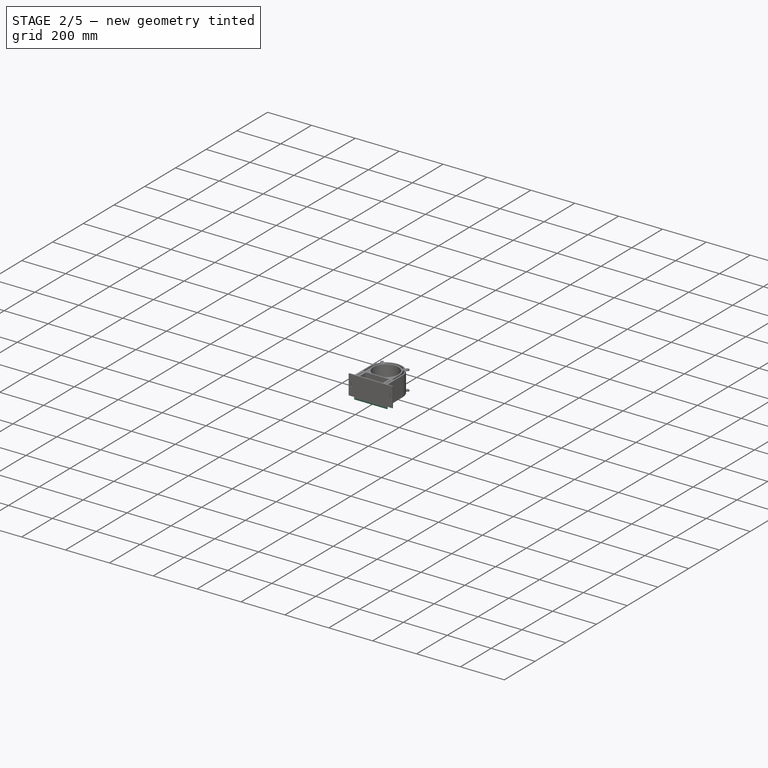
[diagram: stage 2 of 5 — iso view after this stage's code; geometry added in this stage tinted green]
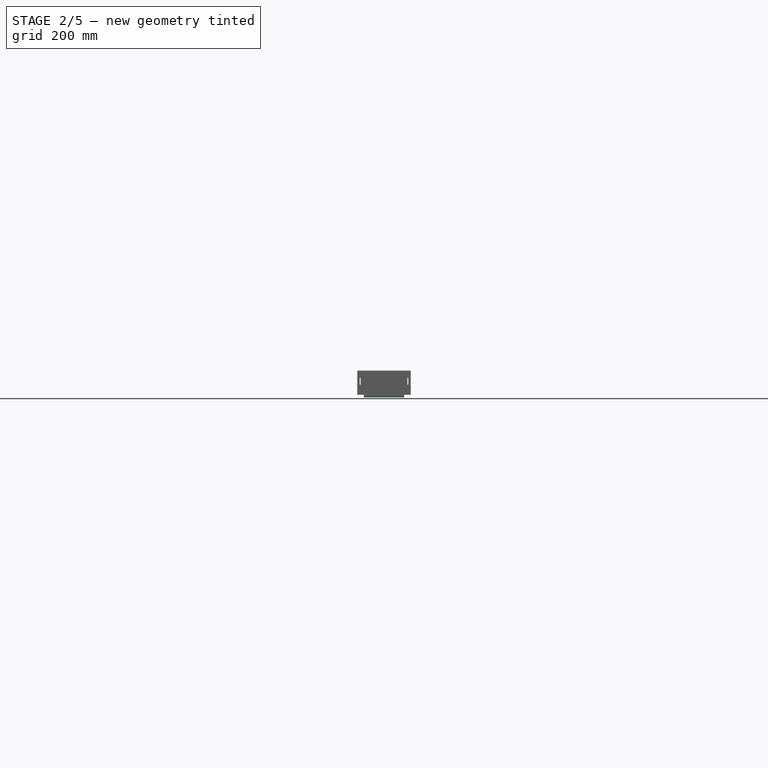
[diagram: stage 2 of 5 — front view after this stage's code; geometry added in this stage tinted green]
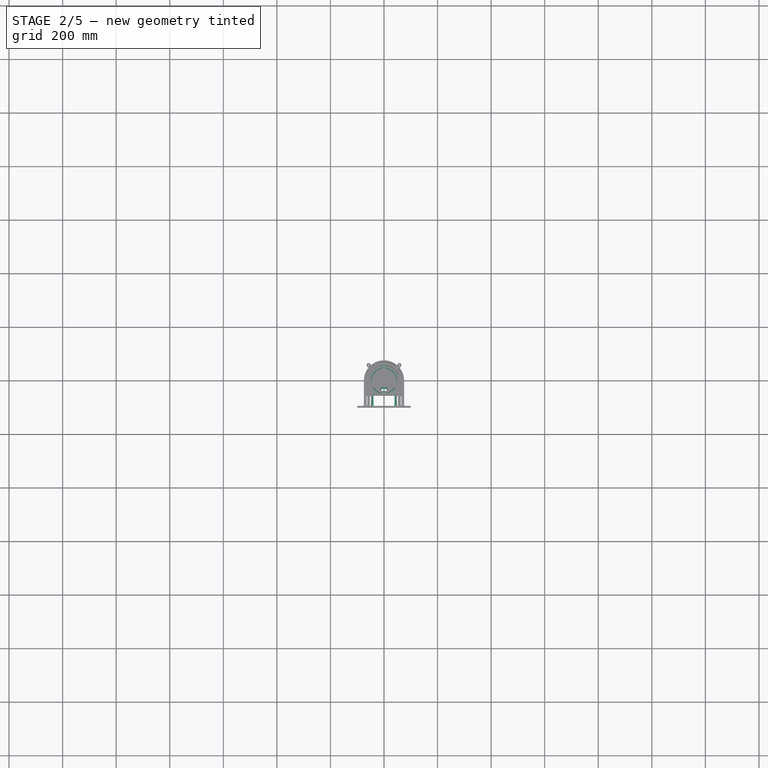
[diagram: stage 2 of 5 — top view after this stage's code; geometry added in this stage tinted green]
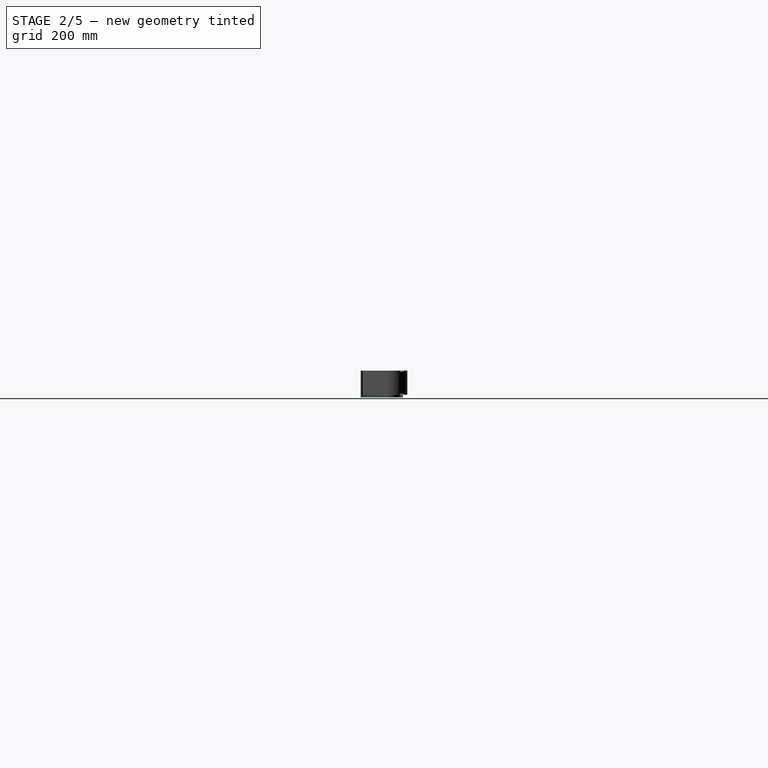
[diagram: stage 2 of 5 — right view after this stage's code; geometry added in this stage tinted green]
FEATURE [PartDesign::Body] Body030  label="extrusion013"
  Group = -> [Sketch099,Pad090]
  Origin = -> Origin030
  Placement = pos=(-146,-135,953) rot=(0,1,0;1.5708rad)
  Tip = -> Pad090
FEATURE [Sketcher::SketchObject] Sketch121  label="outline"
  FullyConstrained = true
  MapMode = 5
  Support = -> [XY_Plane035]
  expr: Constraints[18] = <<parameters>>.support_length
  expr: Constraints[54] = <<parameters>>.support_outer_diam + 62
  expr: Constraints[67] = <<parameters>>.support_inner_diam
  expr: Constraints[16] = <<parameters>>.support_outer_diam
  expr: Constraints[19] = <<parameters>>.support_outer_diam
  sketch-geometry (42):
    g0: ArcOfCircle CenterX=0 CenterY=0 CenterZ=0 NormalX=0 NormalY=0 NormalZ=1 AngleXU=0 Radius=46 StartAngle=1.70881 EndAngle=7.71597
    g1: LineSegment StartX=-8 StartY=50.01 StartZ=0 EndX=-8 EndY=59.01 EndZ=0
    g2: LineSegment StartX=-4 StartY=48.2369 StartZ=0 EndX=-4 EndY=59.01 EndZ=0
    g3: LineSegment StartX=4 StartY=48.2369 StartZ=0 EndX=4 EndY=59.01 EndZ=0
    g4: LineSegment StartX=8 StartY=50.01 StartZ=0 EndX=8 EndY=59.01 EndZ=0
    g5: LineSegment StartX=-5 StartY=60.01 StartZ=0 EndX=-7 EndY=60.01 EndZ=0
    g6: LineSegment StartX=5 StartY=60.01 StartZ=0 EndX=7 EndY=60.01 EndZ=0
    g7: ArcOfCircle CenterX=0 CenterY=0 CenterZ=0 NormalX=0 NormalY=0 NormalZ=1 AngleXU=0 Radius=49 StartAngle=1.76815 EndAngle=3.14159
    g8: ArcOfCircle CenterX=0 CenterY=0 CenterZ=0 NormalX=0 NormalY=0 NormalZ=1 AngleXU=0 Radius=49 StartAngle=0 EndAngle=1.37344
    g9: LineSegment StartX=-80 StartY=-100 StartZ=0 EndX=80 EndY=-100 EndZ=0
    g10: LineSegment StartX=-36 StartY=-95 StartZ=0 EndX=36 EndY=-95 EndZ=0
    g11: LineSegment StartX=39 StartY=-92 StartZ=0 EndX=39 EndY=-32.4962 EndZ=0
    g12: LineSegment StartX=-39 StartY=-92 StartZ=0 EndX=-39 EndY=-32.4962 EndZ=0
    g13: ArcOfCircle CenterX=0 CenterY=0 CenterZ=0 NormalX=0 NormalY=0 NormalZ=1 AngleXU=0 Radius=49 StartAngle=3.84908 EndAngle=5.5757
    g14: ArcOfCircle CenterX=6.7 CenterY=48.2369 CenterZ=0 NormalX=0 NormalY=0 NormalZ=1 AngleXU=0 Radius=2.7 StartAngle=3.14159 EndAngle=4.57437
    g15: ArcOfCircle CenterX=10 CenterY=50.01 CenterZ=0 NormalX=0 NormalY=0 NormalZ=1 AngleXU=0 Radius=2 StartAngle=3.14159 EndAngle=4.51503
    g16: ArcOfCircle CenterX=-10 CenterY=50.01 CenterZ=0 NormalX=0 NormalY=0 NormalZ=1 AngleXU=0 Radius=2 StartAngle=4.90975 EndAngle=6.28319
    g17: ArcOfCircle CenterX=-6.7 CenterY=48.2369 CenterZ=0 NormalX=0 NormalY=0 NormalZ=1 AngleXU=0 Radius=2.7 StartAngle=4.8504 EndAngle=6.28319
    g18: ArcOfCircle CenterX=-7 CenterY=59.01 CenterZ=0 NormalX=0 NormalY=0 NormalZ=1 AngleXU=0 Radius=1 StartAngle=1.5708 EndAngle=3.14159
    g19: ArcOfCircle CenterX=-5 CenterY=59.01 CenterZ=0 NormalX=0 NormalY=0 NormalZ=1 AngleXU=0 Radius=1 StartAngle=3e-15 EndAngle=1.5708
    g20: ArcOfCircle CenterX=5 CenterY=59.01 CenterZ=0 NormalX=0 NormalY=0 NormalZ=1 AngleXU=0 Radius=1 StartAngle=1.5708 EndAngle=3.14159
    g21: ArcOfCircle CenterX=7 CenterY=59.01 CenterZ=0 NormalX=0 NormalY=0 NormalZ=1 AngleXU=0 Radius=1 StartAngle=-2.7e-15 EndAngle=1.5708
    g22: ArcOfCircle CenterX=38 CenterY=-32.4962 CenterZ=0 NormalX=0 NormalY=0 NormalZ=1 AngleXU=0 Radius=1 StartAngle=0 EndAngle=2.43411
    g23: ArcOfCircle CenterX=-38 CenterY=-32.4962 CenterZ=0 NormalX=0 NormalY=0 NormalZ=1 AngleXU=0 Radius=1 StartAngle=0.707483 EndAngle=3.14159
    g24: ArcOfCircle CenterX=-36 CenterY=-92 CenterZ=0 NormalX=0 NormalY=0 NormalZ=1 AngleXU=0 Radius=3 StartAngle=3.14159 EndAngle=4.71239
    g25: ArcOfCircle CenterX=36 CenterY=-92 CenterZ=0 NormalX=0 NormalY=0 NormalZ=1 AngleXU=0 Radius=3 StartAngle=4.71239 EndAngle=6.28319
    g26: LineSegment StartX=49 StartY=0 StartZ=0 EndX=49 EndY=-92 EndZ=0
    g27: LineSegment StartX=52 StartY=-95 StartZ=0 EndX=79 EndY=-95 EndZ=0
    g28: LineSegment StartX=-49 StartY=0 StartZ=0 EndX=-49 EndY=-92 EndZ=0
    g29: LineSegment StartX=-52 StartY=-95 StartZ=0 EndX=-79 EndY=-95 EndZ=0
    g30: LineSegment StartX=-80 StartY=-100 StartZ=0 EndX=-80 EndY=-96 EndZ=0
    g31: LineSegment StartX=80 StartY=-100 StartZ=0 EndX=80 EndY=-96 EndZ=0
    g32: ArcOfCircle CenterX=52 CenterY=-92 CenterZ=0 NormalX=0 NormalY=0 NormalZ=1 AngleXU=0 Radius=3 StartAngle=3.14159 EndAngle=4.71239
    g33: ArcOfCircle CenterX=79 CenterY=-96 CenterZ=0 NormalX=0 NormalY=0 NormalZ=1 AngleXU=0 Radius=1 StartAngle=1.6e-15 EndAngle=1.5708
    g34: ArcOfCircle CenterX=-52 CenterY=-92 CenterZ=0 NormalX=0 NormalY=0 NormalZ=1 AngleXU=0 Radius=3 StartAngle=4.71239 EndAngle=6.28319
    g35: ArcOfCircle CenterX=-79 CenterY=-96 CenterZ=0 NormalX=0 NormalY=0 NormalZ=1 AngleXU=0 Radius=1 StartAngle=1.5708 EndAngle=3.14159
    g36: LineSegment StartX=-4 StartY=59.01 StartZ=0 EndX=4 EndY=59.01 EndZ=0
    g37: LineSegment StartX=-8 StartY=50.01 StartZ=0 EndX=8 EndY=50.01 EndZ=0
    g38: LineSegment StartX=9.60784 StartY=48.0488 StartZ=0 EndX=-9.60784 EndY=48.0488 EndZ=0
    g39: LineSegment StartX=-52 StartY=-95 StartZ=0 EndX=-36 EndY=-95 EndZ=0
    g40: LineSegment StartX=52 StartY=-95 StartZ=0 EndX=36 EndY=-95 EndZ=0
    g41: LineSegment StartX=80 StartY=-96 StartZ=0 EndX=-80 EndY=-96 EndZ=0
  constraints (104):
    c: Coincident(g0,g-1)
    c: Vertical(g1)
    c: Vertical(g2)
    c: Vertical(g3)
    c: Vertical(g4)
    c: Horizontal(g6)
    c: Horizontal(g5)
    c: Coincident(g7,g0)
    c: PointOnObject(g7,g-1)
    c: Coincident(g8,g0)
    c: PointOnObject(g8,g-1)
    c: Horizontal(g9)
    c: Horizontal(g10)
    c: Vertical(g11)
    c: Vertical(g12)
    c: Coincident(g13,g0)
    c: Diameter(g8) = 98
    c: Equal(g8,g7)
    c: DistanceY(g9,g8) = 100
    c: Diameter(g13) = 98
    c: Tangent(g0,g14) = 1.5708
    c: Tangent(g3,g14) = 1.5708
    c: Tangent(g8,g15) = 1.5708
    c: Tangent(g4,g15) = 1.5708
    c: Tangent(g1,g16) = -1.5708
    c: Tangent(g7,g16) = 1.5708
    c: Tangent(g2,g17) = -1.5708
    c: Tangent(g0,g17) = 1.5708
    c: Tangent(g1,g18) = 1.5708
    c: Tangent(g5,g18) = -1.5708
    c: Tangent(g2,g19) = -1.5708
    c: Tangent(g5,g19) = -1.5708
    c: Tangent(g6,g20) = 1.5708
    c: Tangent(g3,g20) = 1.5708
    c: Tangent(g4,g21) = -1.5708
    c: Tangent(g6,g21) = 1.5708
    c: Tangent(g13,g22) = 1.5708
    c: Tangent(g11,g22) = -1.5708
    c: Tangent(g13,g23) = 1.5708
    c: Tangent(g12,g23) = 1.5708
    c: Tangent(g10,g24) = -1.5708
    c: Tangent(g12,g24) = 1.5708
    c: Tangent(g11,g25) = -1.5708
    c: Tangent(g10,g25) = -1.5708
    c: Coincident(g26,g8)
    c: Vertical(g26)
    c: Horizontal(g27)
    c: Coincident(g28,g7)
    c: Vertical(g28)
    c: Horizontal(g29)
    c: Coincident(g30,g9)
    c: Vertical(g30)
    c: Coincident(g31,g9)
    c: Vertical(g31)
    c: DistanceX(g9,g9) = 160
    c: Radius(g21) = 1
    c: Equal(g21,g20)
    c: Equal(g20,g19)
    c: Equal(g19,g18)
    c: Radius(g15) = 2
    c: Radius(g14) = 2.7
    c: Equal(g16,g15)
    c: Equal(g17,g14)
    c: Radius(g22) = 1
    c: Equal(g23,g22)
    c: Radius(g25) = 3
    c: Equal(g24,g25)
    c: Diameter(g0) = 92
    c: Tangent(g27,g32) = -1.5708
    c: Tangent(g26,g32) = -1.5708
    c: Tangent(g27,g33) = 1.5708
    c: Tangent(g31,g33) = -1.5708
    c: Tangent(g29,g34) = 1.5708
    c: Tangent(g28,g34) = 1.5708
    c: Tangent(g30,g35) = 1.5708
    c: Tangent(g29,g35) = -1.5708
    c: Radius(g35) = 1
    c: Equal(g33,g35)
    c: Equal(g34,g32)
    c: Coincident(g36,g2)
    c: Coincident(g36,g3)
    c: Horizontal(g36)
    c: Coincident(g37,g1)
    c: Coincident(g37,g4)
    c: Horizontal(g37)
    c: Coincident(g38,g8)
    c: Coincident(g38,g7)
    c: Coincident(g39,g29)
    c: Coincident(g39,g10)
    c: Horizontal(g39)
    c: Equal(g34,g24)
    c: Coincident(g40,g27)
    c: Coincident(g40,g10)
    c: Horizontal(g40)
    c: Coincident(g41,g31)
    c: Coincident(g41,g30)
    c: DistanceY(g9,g29) = 5
    c: DistanceX(g1,g2) = 4
    c: DistanceX(g3,g4) = 4
    c: DistanceY(g1,g5) = 10
    c: DistanceX(g2,g3) = 8
    c: DistanceX(g0,g9) = 80
    c: DistanceX(g28,g12) = 10
    c: DistanceX(g11,g26) = 10
FEATURE [PartDesign::Pad] Pad101  label="outline001"
  Direction = (1,1,1)
  Length = 30
  Length2 = 100
  Profile = -> Sketch121
  Type = 0
FEATURE [Sketcher::SketchObject] Sketch124
  FullyConstrained = true
  MapMode = 5
  Support = -> [XY_Plane039]
  expr: Constraints[99] = <<parameters>>.ws_diam / 2 - 8
  expr: Constraints[96] = <<parameters>>.m4
  expr: Constraints[97] = <<parameters>>.m4
  expr: Constraints[98] = <<parameters>>.ws_diam / 2 - 8
  expr: Constraints[5] = <<parameters>>.support_inner_diam
  expr: Constraints[95] = <<parameters>>.support_length - 5
  expr: Constraints[29] = <<parameters>>.ws_diam
  expr: Constraints[94] = 75
  expr: Constraints[93] = <<parameters>>.ws_diam + 56
  expr: Constraints[28] = <<parameters>>.support_length
  expr: Constraints[6] = <<parameters>>.ws_diam
  sketch-geometry (42):
    g0: ArcOfCircle CenterX=0 CenterY=0 CenterZ=0 NormalX=0 NormalY=0 NormalZ=1 AngleXU=0 Radius=46 StartAngle=1.71414 EndAngle=7.71063
    g1: ArcOfCircle CenterX=0 CenterY=0 CenterZ=0 NormalX=0 NormalY=0 NormalZ=1 AngleXU=0 Radius=47 StartAngle=1.77632 EndAngle=3.14159
    g2: ArcOfCircle CenterX=0 CenterY=0 CenterZ=0 NormalX=0 NormalY=0 NormalZ=1 AngleXU=0 Radius=47 StartAngle=0 EndAngle=1.36527
    g3: LineSegment StartX=-8 StartY=47.9687 StartZ=0 EndX=-8 EndY=56.9687 EndZ=0
    g4: LineSegment StartX=-4 StartY=48.4974 StartZ=0 EndX=-4 EndY=56.9687 EndZ=0
    g5: LineSegment StartX=-7 StartY=57.9687 StartZ=0 EndX=-5 EndY=57.9687 EndZ=0
    g6: LineSegment StartX=4 StartY=48.4974 StartZ=0 EndX=4 EndY=56.9687 EndZ=0
    g7: LineSegment StartX=8 StartY=47.9687 StartZ=0 EndX=8 EndY=56.9687 EndZ=0
    g8: LineSegment StartX=7 StartY=57.9687 StartZ=0 EndX=5 EndY=57.9687 EndZ=0
    g9: LineSegment StartX=-47 StartY=0 StartZ=0 EndX=-47 EndY=-91 EndZ=0
    g10: LineSegment StartX=-51 StartY=-95 StartZ=0 EndX=-73.5 EndY=-95 EndZ=0
    g11: LineSegment StartX=-75 StartY=-96.5 StartZ=0 EndX=-75 EndY=-100 EndZ=0
    g12: LineSegment StartX=-75 StartY=-100 StartZ=0 EndX=75 EndY=-100 EndZ=0
    g13: LineSegment StartX=75 StartY=-100 StartZ=0 EndX=75 EndY=-96.5 EndZ=0
    g14: LineSegment StartX=73.5 StartY=-95 StartZ=0 EndX=51 EndY=-95 EndZ=0
    g15: LineSegment StartX=47 StartY=-91 StartZ=0 EndX=47 EndY=0 EndZ=0
    g16: ArcOfCircle CenterX=0 CenterY=0 CenterZ=0 NormalX=0 NormalY=0 NormalZ=1 AngleXU=0 Radius=47 StartAngle=4.17863 EndAngle=5.24615
    g17: LineSegment StartX=-39 StartY=-49.0714 StartZ=0 EndX=-39 EndY=-91 EndZ=0
    g18: LineSegment StartX=-35 StartY=-95 StartZ=0 EndX=35 EndY=-95 EndZ=0
    g19: LineSegment StartX=39 StartY=-91 StartZ=0 EndX=39 EndY=-49.0714 EndZ=0
    g20: ArcOfCircle CenterX=-7 CenterY=56.9687 CenterZ=0 NormalX=0 NormalY=0 NormalZ=1 AngleXU=0 Radius=1 StartAngle=1.5708 EndAngle=3.14159
    g21: ArcOfCircle CenterX=-5 CenterY=56.9687 CenterZ=0 NormalX=0 NormalY=0 NormalZ=1 AngleXU=0 Radius=1 StartAngle=-2.7e-15 EndAngle=1.5708
    g22: ArcOfCircle CenterX=5 CenterY=56.9687 CenterZ=0 NormalX=0 NormalY=0 NormalZ=1 AngleXU=0 Radius=1 StartAngle=1.5708 EndAngle=3.14159
    g23: ArcOfCircle CenterX=7 CenterY=56.9687 CenterZ=0 NormalX=0 NormalY=0 NormalZ=1 AngleXU=0 Radius=1 StartAngle=-9e-16 EndAngle=1.5708
    g24: ArcOfCircle CenterX=10 CenterY=47.9687 CenterZ=0 NormalX=0 NormalY=0 NormalZ=1 AngleXU=0 Radius=2 StartAngle=3.14159 EndAngle=4.50686
    g25: ArcOfCircle CenterX=-10 CenterY=47.9687 CenterZ=0 NormalX=0 NormalY=0 NormalZ=1 AngleXU=0 Radius=2 StartAngle=4.91791 EndAngle=6.28319
    g26: LineSegment StartX=-4 StartY=56.9687 StartZ=0 EndX=4 EndY=56.9687 EndZ=0
    g27: ArcOfCircle CenterX=-7 CenterY=48.4974 CenterZ=0 NormalX=0 NormalY=0 NormalZ=1 AngleXU=0 Radius=3 StartAngle=4.85574 EndAngle=6.28319
    g28: ArcOfCircle CenterX=7 CenterY=48.4974 CenterZ=0 NormalX=0 NormalY=0 NormalZ=1 AngleXU=0 Radius=3 StartAngle=3.14159 EndAngle=4.56904
    g29: ArcOfCircle CenterX=29 CenterY=-49.0714 CenterZ=0 NormalX=0 NormalY=0 NormalZ=1 AngleXU=0 Radius=10 StartAngle=0 EndAngle=2.10455
    g30: ArcOfCircle CenterX=-29 CenterY=-49.0714 CenterZ=0 NormalX=0 NormalY=0 NormalZ=1 AngleXU=0 Radius=10 StartAngle=1.03704 EndAngle=3.14159
    g31: ArcOfCircle CenterX=51 CenterY=-91 CenterZ=0 NormalX=0 NormalY=0 NormalZ=1 AngleXU=0 Radius=4 StartAngle=3.14159 EndAngle=4.71239
    g32: ArcOfCircle CenterX=-51 CenterY=-91 CenterZ=0 NormalX=0 NormalY=0 NormalZ=1 AngleXU=0 Radius=4 StartAngle=4.71239 EndAngle=6.28319
    g33: ArcOfCircle CenterX=-35 CenterY=-91 CenterZ=0 NormalX=0 NormalY=0 NormalZ=1 AngleXU=0 Radius=4 StartAngle=3.14159 EndAngle=4.71239
    g34: ArcOfCircle CenterX=35 CenterY=-91 CenterZ=0 NormalX=0 NormalY=0 NormalZ=1 AngleXU=0 Radius=4 StartAngle=4.71239 EndAngle=6.28319
    g35: LineSegment StartX=-47 StartY=-91 StartZ=0 EndX=-39 EndY=-91 EndZ=0
    g36: LineSegment StartX=39 StartY=-91 StartZ=0 EndX=47 EndY=-91 EndZ=0
    g37: ArcOfCircle CenterX=-73.5 CenterY=-96.5 CenterZ=0 NormalX=0 NormalY=0 NormalZ=1 AngleXU=0 Radius=1.5 StartAngle=1.5708 EndAngle=3.14159
    g38: ArcOfCircle CenterX=73.5 CenterY=-96.5 CenterZ=0 NormalX=0 NormalY=0 NormalZ=1 AngleXU=0 Radius=1.5 StartAngle=0 EndAngle=1.5708
    g39: Circle CenterX=-39 CenterY=-30 CenterZ=0 NormalX=0 NormalY=0 NormalZ=1 AngleXU=0 Radius=2.25
    g40: Circle CenterX=39 CenterY=-30 CenterZ=0 NormalX=0 NormalY=0 NormalZ=1 AngleXU=0 Radius=2.25
    g41: LineSegment StartX=-39 StartY=-30 StartZ=0 EndX=39 EndY=-30 EndZ=0
  constraints (106):
    c: Coincident(g0,g-1)
    c: Coincident(g1,g0)
    c: PointOnObject(g1,g-1)
    c: Coincident(g2,g0)
    c: PointOnObject(g2,g-1)
    c: Diameter(g0) = 92
    c: Diameter(g1) = 94
    c: Vertical(g3)
    c: Vertical(g4)
    c: Vertical(g7)
    c: Horizontal(g8)
    c: Vertical(g6)
    c: Horizontal(g5)
    c: Coincident(g9,g1)
    c: Vertical(g9)
    c: Horizontal(g10)
    c: Vertical(g11)
    c: Coincident(g12,g11)
    c: Horizontal(g12)
    c: Coincident(g13,g12)
    c: Vertical(g13)
    c: Coincident(g15,g2)
    c: Vertical(g15)
    c: Horizontal(g14)
    c: Coincident(g16,g0)
    c: Vertical(g17)
    c: Horizontal(g18)
    c: Vertical(g19)
    c: DistanceY(g12,g2) = 100
    c: Diameter(g16) = 94
    c: Tangent(g5,g20) = 1.5708
    c: Tangent(g3,g20) = 1.5708
    c: Tangent(g4,g21) = -1.5708
    c: Tangent(g5,g21) = 1.5708
    c: Tangent(g6,g22) = 1.5708
    c: Tangent(g8,g22) = -1.5708
    c: Tangent(g8,g23) = -1.5708
    c: Tangent(g7,g23) = -1.5708
    c: Radius(g23) = 1
    c: Equal(g23,g22)
    c: Equal(g22,g21)
    c: Equal(g21,g20)
    c: Tangent(g2,g24) = 1.5708
    c: Tangent(g7,g24) = 1.5708
    c: Tangent(g3,g25) = -1.5708
    c: Tangent(g1,g25) = 1.5708
    c: Radius(g24) = 2
    c: Equal(g25,g24)
    c: Coincident(g26,g4)
    c: Coincident(g26,g6)
    c: Horizontal(g26)
    c: DistanceX(g26,g26) = 8
    c: Tangent(g0,g27) = 1.5708
    c: Tangent(g4,g27) = -1.5708
    c: Tangent(g0,g28) = 1.5708
    c: Tangent(g6,g28) = 1.5708
    c: Radius(g28) = 3
    c: Equal(g27,g28)
    c: DistanceX(g6,g7) = 4
    c: DistanceX(g3,g4) = 4
    c: DistanceX(g4,g0) = 4
    c: Tangent(g19,g29) = -1.5708
    c: Tangent(g16,g29) = 1.5708
    c: Tangent(g17,g30) = -1.5708
    c: Tangent(g16,g30) = 1.5708
    c: Radius(g29) = 10
    c: Equal(g30,g29)
    c: Tangent(g14,g31) = 1.5708
    c: Tangent(g15,g31) = 1.5708
    c: Tangent(g10,g32) = 1.5708
    c: Tangent(g9,g32) = 1.5708
    c: Tangent(g18,g33) = -1.5708
    c: Tangent(g17,g33) = -1.5708
    c: Tangent(g18,g34) = -1.5708
    c: Tangent(g19,g34) = -1.5708
    c: Radius(g33) = 4
    c: Equal(g33,g32)
    c: Equal(g34,g33)
    c: Equal(g34,g31)
    c: Coincident(g35,g9)
    c: Coincident(g35,g17)
    c: Horizontal(g35)
    c: Coincident(g36,g19)
    c: Coincident(g36,g15)
    c: Horizontal(g36)
    c: DistanceX(g36,g36) = 8
    c: DistanceX(g35,g35) = 8
    c: Tangent(g11,g37) = -1.5708
    c: Tangent(g10,g37) = -1.5708
    c: Tangent(g13,g38) = -1.5708
    c: Tangent(g14,g38) = -1.5708
    c: Radius(g38) = 1.5
    c: Equal(g38,g37)
    c: DistanceX(g12,g12) = 150
    c: DistanceX(g0,g12) = 75
    c: DistanceY(g18,g0) = 95
    c: Diameter(g39) = 4.5
    c: Diameter(g40) = 4.5
    c: DistanceX(g39,g0) = 39
    c: DistanceX(g0,g40) = 39
    c: Coincident(g41,g39)
    c: Coincident(g41,g40)
    c: Horizontal(g41)
    c: DistanceY(g39,g0) = 30
    c: DistanceY(g7,g8) = 10
    c: DistanceY(g3,g5) = 10
FEATURE [PartDesign::Pad] Pad102  label="outer"
  Direction = (1,1,1)
  Length = 10
  Length2 = 100
  Profile = -> Sketch124
  Type = 0
FEATURE [Sketcher::SketchObject] Sketch125
  FullyConstrained = true
  MapMode = 5
  expr: Constraints[5] = <<parameters>>.inner_diam
  expr: Constraints[98] = <<parameters>>.m4
  expr: Constraints[97] = <<parameters>>.m4
  expr: Constraints[96] = <<parameters>>.support_length - 5
  expr: Constraints[99] = <<parameters>>.ws_diam / 2 - 8
  expr: Constraints[6] = <<parameters>>.ws_diam
  expr: Constraints[28] = <<parameters>>.support_length
  expr: Constraints[29] = <<parameters>>.ws_diam
  expr: Constraints[95] = 150 / 2
  expr: Constraints[94] = <<parameters>>.ws_diam + 56
  expr: Constraints[100] = <<parameters>>.ws_diam / 2 - 8
  sketch-geometry (42):
    g0: ArcOfCircle CenterX=0 CenterY=0 CenterZ=0 NormalX=0 NormalY=0 NormalZ=1 AngleXU=0 Radius=38 StartAngle=1.74237 EndAngle=7.68241
    g1: ArcOfCircle CenterX=0 CenterY=0 CenterZ=0 NormalX=0 NormalY=0 NormalZ=1 AngleXU=0 Radius=47 StartAngle=1.77632 EndAngle=3.14159
    g2: ArcOfCircle CenterX=0 CenterY=0 CenterZ=0 NormalX=0 NormalY=0 NormalZ=1 AngleXU=0 Radius=47 StartAngle=0 EndAngle=1.36527
    g3: LineSegment StartX=-8 StartY=47.9687 StartZ=0 EndX=-8 EndY=56.9687 EndZ=0
    g4: LineSegment StartX=-4 StartY=40.398 StartZ=0 EndX=-4 EndY=56.9687 EndZ=0
    g5: LineSegment StartX=-7 StartY=57.9687 StartZ=0 EndX=-5 EndY=57.9687 EndZ=0
    g6: LineSegment StartX=4 StartY=40.398 StartZ=0 EndX=4 EndY=56.9687 EndZ=0
    g7: LineSegment StartX=8 StartY=47.9687 StartZ=0 EndX=8 EndY=56.9687 EndZ=0
    g8: LineSegment StartX=7 StartY=57.9687 StartZ=0 EndX=5 EndY=57.9687 EndZ=0
    g9: LineSegment StartX=-47 StartY=5.8e-15 StartZ=0 EndX=-47 EndY=-91 EndZ=0
    g10: LineSegment StartX=-51 StartY=-95 StartZ=0 EndX=-73.5 EndY=-95 EndZ=0
    g11: LineSegment StartX=-75 StartY=-96.5 StartZ=0 EndX=-75 EndY=-100 EndZ=0
    g12: LineSegment StartX=-75 StartY=-100 StartZ=0 EndX=75 EndY=-100 EndZ=0
    g13: LineSegment StartX=75 StartY=-100 StartZ=0 EndX=75 EndY=-96.5 EndZ=0
    g14: LineSegment StartX=73.5 StartY=-95 StartZ=0 EndX=51 EndY=-95 EndZ=0
    g15: LineSegment StartX=47 StartY=-91 StartZ=0 EndX=47 EndY=0 EndZ=0
    g16: ArcOfCircle CenterX=0 CenterY=0 CenterZ=0 NormalX=0 NormalY=0 NormalZ=1 AngleXU=0 Radius=47 StartAngle=4.17863 EndAngle=5.24615
    g17: LineSegment StartX=-39 StartY=-49.0714 StartZ=0 EndX=-39 EndY=-91 EndZ=0
    g18: LineSegment StartX=-35 StartY=-95 StartZ=0 EndX=35 EndY=-95 EndZ=0
    g19: LineSegment StartX=39 StartY=-91 StartZ=0 EndX=39 EndY=-49.0714 EndZ=0
    g20: ArcOfCircle CenterX=-7 CenterY=56.9687 CenterZ=0 NormalX=0 NormalY=0 NormalZ=1 AngleXU=0 Radius=1 StartAngle=1.5708 EndAngle=3.14159
    g21: ArcOfCircle CenterX=-5 CenterY=56.9687 CenterZ=0 NormalX=0 NormalY=0 NormalZ=1 AngleXU=0 Radius=1 StartAngle=1.2e-15 EndAngle=1.5708
    g22: ArcOfCircle CenterX=5 CenterY=56.9687 CenterZ=0 NormalX=0 NormalY=0 NormalZ=1 AngleXU=0 Radius=1 StartAngle=1.5708 EndAngle=3.14159
    g23: ArcOfCircle CenterX=7 CenterY=56.9687 CenterZ=0 NormalX=0 NormalY=0 NormalZ=1 AngleXU=0 Radius=1 StartAngle=-1.8e-15 EndAngle=1.5708
    g24: ArcOfCircle CenterX=10 CenterY=47.9687 CenterZ=0 NormalX=0 NormalY=0 NormalZ=1 AngleXU=0 Radius=2 StartAngle=3.14159 EndAngle=4.50686
    g25: ArcOfCircle CenterX=-10 CenterY=47.9687 CenterZ=0 NormalX=0 NormalY=0 NormalZ=1 AngleXU=0 Radius=2 StartAngle=4.91791 EndAngle=6.28319
    g26: LineSegment StartX=-4 StartY=56.9687 StartZ=0 EndX=4 EndY=56.9687 EndZ=0
    g27: ArcOfCircle CenterX=-7 CenterY=40.398 CenterZ=0 NormalX=0 NormalY=0 NormalZ=1 AngleXU=0 Radius=3 StartAngle=4.88396 EndAngle=6.28319
    g28: ArcOfCircle CenterX=7 CenterY=40.398 CenterZ=0 NormalX=0 NormalY=0 NormalZ=1 AngleXU=0 Radius=3 StartAngle=3.14159 EndAngle=4.54082
    g29: ArcOfCircle CenterX=29 CenterY=-49.0714 CenterZ=0 NormalX=0 NormalY=0 NormalZ=1 AngleXU=0 Radius=10 StartAngle=1e-16 EndAngle=2.10455
    g30: ArcOfCircle CenterX=-29 CenterY=-49.0714 CenterZ=0 NormalX=0 NormalY=0 NormalZ=1 AngleXU=0 Radius=10 StartAngle=1.03704 EndAngle=3.14159
    g31: ArcOfCircle CenterX=51 CenterY=-91 CenterZ=0 NormalX=0 NormalY=0 NormalZ=1 AngleXU=0 Radius=4 StartAngle=3.14159 EndAngle=4.71239
    g32: ArcOfCircle CenterX=-51 CenterY=-91 CenterZ=0 NormalX=0 NormalY=0 NormalZ=1 AngleXU=0 Radius=4 StartAngle=4.71239 EndAngle=6.28319
    g33: ArcOfCircle CenterX=-35 CenterY=-91 CenterZ=0 NormalX=0 NormalY=0 NormalZ=1 AngleXU=0 Radius=4 StartAngle=3.14159 EndAngle=4.71239
    g34: ArcOfCircle CenterX=35 CenterY=-91 CenterZ=0 NormalX=0 NormalY=0 NormalZ=1 AngleXU=0 Radius=4 StartAngle=4.71239 EndAngle=6.28319
    g35: LineSegment StartX=-47 StartY=-91 StartZ=0 EndX=-39 EndY=-91 EndZ=0
    g36: LineSegment StartX=39 StartY=-91 StartZ=0 EndX=47 EndY=-91 EndZ=0
    g37: ArcOfCircle CenterX=-73.5 CenterY=-96.5 CenterZ=0 NormalX=0 NormalY=0 NormalZ=1 AngleXU=0 Radius=1.5 StartAngle=1.5708 EndAngle=3.14159
    g38: ArcOfCircle CenterX=73.5 CenterY=-96.5 CenterZ=0 NormalX=0 NormalY=0 NormalZ=1 AngleXU=0 Radius=1.5 StartAngle=-2.7e-15 EndAngle=1.5708
    g39: Circle CenterX=-39 CenterY=-30 CenterZ=0 NormalX=0 NormalY=0 NormalZ=1 AngleXU=0 Radius=2.25
    g40: Circle CenterX=39 CenterY=-30 CenterZ=0 NormalX=0 NormalY=0 NormalZ=1 AngleXU=0 Radius=2.25
    g41: LineSegment StartX=-39 StartY=-30 StartZ=0 EndX=39 EndY=-30 EndZ=0
  constraints (106):
    c: Coincident(g0,g-1)
    c: Coincident(g1,g0)
    c: PointOnObject(g1,g-1)
    c: Coincident(g2,g0)
    c: PointOnObject(g2,g-1)
    c: Diameter(g0) = 76
    c: Diameter(g1) = 94
    c: Vertical(g3)
    c: Vertical(g4)
    c: Vertical(g7)
    c: Horizontal(g8)
    c: Vertical(g6)
    c: Horizontal(g5)
    c: Coincident(g9,g1)
    c: Vertical(g9)
    c: Horizontal(g10)
    c: Vertical(g11)
    c: Coincident(g12,g11)
    c: Horizontal(g12)
    c: Coincident(g13,g12)
    c: Vertical(g13)
    c: Coincident(g15,g2)
    c: Vertical(g15)
    c: Horizontal(g14)
    c: Coincident(g16,g0)
    c: Vertical(g17)
    c: Horizontal(g18)
    c: Vertical(g19)
    c: DistanceY(g12,g2) = 100
    c: Diameter(g16) = 94
    c: Tangent(g5,g20) = 1.5708
    c: Tangent(g3,g20) = 1.5708
    c: Tangent(g4,g21) = -1.5708
    c: Tangent(g5,g21) = 1.5708
    c: Tangent(g6,g22) = 1.5708
    c: Tangent(g8,g22) = -1.5708
    c: Tangent(g8,g23) = -1.5708
    c: Tangent(g7,g23) = -1.5708
    c: Radius(g23) = 1
    c: Equal(g23,g22)
    c: Equal(g22,g21)
    c: Equal(g21,g20)
    c: Tangent(g2,g24) = 1.5708
    c: Tangent(g7,g24) = 1.5708
    c: Tangent(g3,g25) = -1.5708
    c: Tangent(g1,g25) = 1.5708
    c: Radius(g24) = 2
    c: Equal(g25,g24)
    c: Coincident(g26,g4)
    c: Coincident(g26,g6)
    c: Horizontal(g26)
    c: DistanceX(g26,g26) = 8
    c: Tangent(g0,g27) = 1.5708
    c: Tangent(g4,g27) = -1.5708
    c: Tangent(g0,g28) = 1.5708
    c: Tangent(g6,g28) = 1.5708
    c: Radius(g28) = 3
    c: Equal(g27,g28)
    c: DistanceY(g7,g8) = 10
    c: DistanceX(g6,g7) = 4
    c: DistanceX(g3,g4) = 4
    c: DistanceX(g4,g0) = 4
    c: Tangent(g19,g29) = -1.5708
    c: Tangent(g16,g29) = 1.5708
    c: Tangent(g17,g30) = -1.5708
    c: Tangent(g16,g30) = 1.5708
    c: Radius(g29) = 10
    c: Equal(g30,g29)
    c: Tangent(g14,g31) = 1.5708
    c: Tangent(g15,g31) = 1.5708
    c: Tangent(g10,g32) = 1.5708
    c: Tangent(g9,g32) = 1.5708
    c: Tangent(g18,g33) = -1.5708
    c: Tangent(g17,g33) = -1.5708
    c: Tangent(g18,g34) = -1.5708
    c: Tangent(g19,g34) = -1.5708
    c: Radius(g33) = 4
    c: Equal(g33,g32)
    c: Equal(g34,g33)
    c: Equal(g34,g31)
    c: Coincident(g35,g9)
    c: Coincident(g35,g17)
    c: Horizontal(g35)
    c: Coincident(g36,g19)
    c: Coincident(g36,g15)
    c: Horizontal(g36)
    c: DistanceX(g36,g36) = 8
    c: DistanceX(g35,g35) = 8
    c: Tangent(g11,g37) = -1.5708
    c: Tangent(g10,g37) = -1.5708
    c: Tangent(g13,g38) = -1.5708
    c: Tangent(g14,g38) = -1.5708
    c: Radius(g38) = 1.5
    c: Equal(g38,g37)
    c: DistanceX(g12,g12) = 150
    c: DistanceX(g0,g12) = 75
    c: DistanceY(g18,g0) = 95
    c: Diameter(g39) = 4.5
    c: Diameter(g40) = 4.5
    c: DistanceX(g39,g0) = 39
    c: DistanceX(g0,g40) = 39
    c: Coincident(g41,g39)
    c: Coincident(g41,g40)
    c: Horizontal(g41)
    c: DistanceY(g39,g0) = 30
    c: DistanceY(g3,g5) = 10
FEATURE [PartDesign::Pad] Pad103  label="inner_section"
  BaseFeature = -> Pad102
  Direction = (1,1,1)
  Length = 5
  Length2 = 100
  Profile = -> Sketch125
  Reversed = true
  Type = 0
FEATURE [PartDesign::Body] Body101  label="sample_support002"
  Group = -> [Sketch324,Pad254]
  Origin = -> Origin101
  Placement = pos=(0,0,980) rot=(0,0,1;0rad)
  Tip = -> Pad254
FEATURE [Sketcher::SketchObject] Sketch326
  FullyConstrained = true
  MapMode = 5
  Placement = pos=(0,0,-5) rot=(1,0,0;3.14159rad)
  Support = -> [Pad103]
  expr: Constraints[79] = <<parameters>>.ws_diam
  expr: Constraints[80] = <<parameters>>.window_diam
  expr: Constraints[101] = <<parameters>>.ws_diam / 2 - 8
  expr: Constraints[81] = <<parameters>>.ws_diam
  expr: Constraints[94] = <<parameters>>.support_length
  expr: Constraints[95] = <<parameters>>.ws_diam + 56
  expr: Constraints[96] = 75
  expr: Constraints[99] = <<parameters>>.m4
  expr: Constraints[105] = <<parameters>>.ws_diam / 2 - 8
  sketch-geometry (42):
    g0: ArcOfCircle CenterX=0 CenterY=0 CenterZ=0 NormalX=0 NormalY=0 NormalZ=1 AngleXU=0 Radius=41 StartAngle=4.87216 EndAngle=10.8358
    g1: ArcOfCircle CenterX=0 CenterY=0 CenterZ=0 NormalX=0 NormalY=0 NormalZ=1 AngleXU=0 Radius=47 StartAngle=4.91791 EndAngle=6.28319
    g2: ArcOfCircle CenterX=0 CenterY=0 CenterZ=0 NormalX=0 NormalY=0 NormalZ=1 AngleXU=0 Radius=47 StartAngle=3.14159 EndAngle=4.50686
    g3: LineSegment StartX=8 StartY=-47.9687 StartZ=0 EndX=8 EndY=-56.9687 EndZ=0
    g4: LineSegment StartX=7 StartY=-57.9687 StartZ=0 EndX=5 EndY=-57.9687 EndZ=0
    g5: LineSegment StartX=4 StartY=-56.9687 StartZ=0 EndX=4 EndY=-43.4396 EndZ=0
    g6: LineSegment StartX=-4 StartY=-43.4396 StartZ=0 EndX=-4 EndY=-56.9687 EndZ=0
    g7: LineSegment StartX=-8 StartY=-47.9687 StartZ=0 EndX=-8 EndY=-56.9687 EndZ=0
    g8: LineSegment StartX=-7 StartY=-57.9687 StartZ=0 EndX=-5 EndY=-57.9687 EndZ=0
    g9: ArcOfCircle CenterX=0 CenterY=0 CenterZ=0 NormalX=0 NormalY=0 NormalZ=1 AngleXU=0 Radius=47 StartAngle=1.03704 EndAngle=2.10455
    g10: LineSegment StartX=47 StartY=91 StartZ=0 EndX=47 EndY=-1.42e-14 EndZ=0
    g11: LineSegment StartX=-47 StartY=5.8e-15 StartZ=0 EndX=-47 EndY=91 EndZ=0
    g12: LineSegment StartX=-51 StartY=95 StartZ=0 EndX=-73.5 EndY=95 EndZ=0
    g13: LineSegment StartX=-75 StartY=96.5 StartZ=0 EndX=-75 EndY=100 EndZ=0
    g14: LineSegment StartX=-75 StartY=100 StartZ=0 EndX=75 EndY=100 EndZ=0
    g15: LineSegment StartX=75 StartY=100 StartZ=0 EndX=75 EndY=96.5 EndZ=0
    g16: LineSegment StartX=73.5 StartY=95 StartZ=0 EndX=51 EndY=95 EndZ=0
    g17: LineSegment StartX=39 StartY=49.0714 StartZ=0 EndX=39 EndY=91 EndZ=0
    g18: LineSegment StartX=35 StartY=95 StartZ=0 EndX=-35 EndY=95 EndZ=0
    g19: LineSegment StartX=-39 StartY=91 StartZ=0 EndX=-39 EndY=49.0714 EndZ=0
    g20: ArcOfCircle CenterX=10 CenterY=-47.9687 CenterZ=0 NormalX=0 NormalY=0 NormalZ=1 AngleXU=0 Radius=2 StartAngle=1.77632 EndAngle=3.14159
    g21: ArcOfCircle CenterX=7 CenterY=-43.4396 CenterZ=0 NormalX=0 NormalY=0 NormalZ=1 AngleXU=0 Radius=3 StartAngle=1.73057 EndAngle=3.14159
    g22: ArcOfCircle CenterX=7 CenterY=-56.9687 CenterZ=0 NormalX=0 NormalY=0 NormalZ=1 AngleXU=0 Radius=1 StartAngle=4.71239 EndAngle=6.28319
    g23: ArcOfCircle CenterX=5 CenterY=-56.9687 CenterZ=0 NormalX=0 NormalY=0 NormalZ=1 AngleXU=0 Radius=1 StartAngle=3.14159 EndAngle=4.71239
    g24: ArcOfCircle CenterX=-5 CenterY=-56.9687 CenterZ=0 NormalX=0 NormalY=0 NormalZ=1 AngleXU=0 Radius=1 StartAngle=4.71239 EndAngle=6.28319
    g25: ArcOfCircle CenterX=-7 CenterY=-56.9687 CenterZ=0 NormalX=0 NormalY=0 NormalZ=1 AngleXU=0 Radius=1 StartAngle=3.14159 EndAngle=4.71239
    g26: ArcOfCircle CenterX=-10 CenterY=-47.9687 CenterZ=0 NormalX=0 NormalY=0 NormalZ=1 AngleXU=0 Radius=2 StartAngle=5e-16 EndAngle=1.36527
    g27: ArcOfCircle CenterX=-7 CenterY=-43.4396 CenterZ=0 NormalX=0 NormalY=0 NormalZ=1 AngleXU=0 Radius=3 StartAngle=3e-16 EndAngle=1.41103
    g28: ArcOfCircle CenterX=-29 CenterY=49.0714 CenterZ=0 NormalX=0 NormalY=0 NormalZ=1 AngleXU=0 Radius=10 StartAngle=3.14159 EndAngle=5.24615
    g29: ArcOfCircle CenterX=29 CenterY=49.0714 CenterZ=0 NormalX=0 NormalY=0 NormalZ=1 AngleXU=0 Radius=10 StartAngle=4.17863 EndAngle=6.28319
    g30: ArcOfCircle CenterX=35 CenterY=91 CenterZ=0 NormalX=0 NormalY=0 NormalZ=1 AngleXU=0 Radius=4 StartAngle=8e-16 EndAngle=1.5708
    g31: ArcOfCircle CenterX=51 CenterY=91 CenterZ=0 NormalX=0 NormalY=0 NormalZ=1 AngleXU=0 Radius=4 StartAngle=1.5708 EndAngle=3.14159
    g32: ArcOfCircle CenterX=73.5 CenterY=96.5 CenterZ=0 NormalX=0 NormalY=0 NormalZ=1 AngleXU=0 Radius=1.5 StartAngle=4.71239 EndAngle=6.28319
    g33: ArcOfCircle CenterX=-35 CenterY=91 CenterZ=0 NormalX=0 NormalY=0 NormalZ=1 AngleXU=0 Radius=4 StartAngle=1.5708 EndAngle=3.14159
    g34: ArcOfCircle CenterX=-51 CenterY=91 CenterZ=0 NormalX=0 NormalY=0 NormalZ=1 AngleXU=0 Radius=4 StartAngle=-9e-16 EndAngle=1.5708
    g35: ArcOfCircle CenterX=-73.5 CenterY=96.5 CenterZ=0 NormalX=0 NormalY=0 NormalZ=1 AngleXU=0 Radius=1.5 StartAngle=3.14159 EndAngle=4.71239
    g36: LineSegment StartX=4 StartY=-56.9687 StartZ=0 EndX=-4 EndY=-56.9687 EndZ=0
    g37: LineSegment StartX=-39 StartY=91 StartZ=0 EndX=-47 EndY=91 EndZ=0
    g38: LineSegment StartX=47 StartY=91 StartZ=0 EndX=39 EndY=91 EndZ=0
    g39: Circle CenterX=39 CenterY=30 CenterZ=0 NormalX=0 NormalY=0 NormalZ=1 AngleXU=0 Radius=2.25
    g40: Circle CenterX=-39 CenterY=30 CenterZ=0 NormalX=0 NormalY=0 NormalZ=1 AngleXU=0 Radius=2.25
    g41: LineSegment StartX=39 StartY=30 StartZ=0 EndX=-39 EndY=30 EndZ=0
  constraints (106):
    c: Coincident(g0,g-1)
    c: Coincident(g1,g0)
    c: PointOnObject(g1,g-1)
    c: Coincident(g2,g0)
    c: PointOnObject(g2,g-1)
    c: Vertical(g3)
    c: Horizontal(g4)
    c: Vertical(g6)
    c: Vertical(g7)
    c: Horizontal(g8)
    c: Vertical(g5)
    c: Coincident(g9,g0)
    c: Coincident(g10,g1)
    c: Vertical(g10)
    c: Coincident(g11,g2)
    c: Vertical(g11)
    c: Horizontal(g12)
    c: Vertical(g13)
    c: Coincident(g14,g13)
    c: Horizontal(g14)
    c: Coincident(g15,g14)
    c: Vertical(g15)
    c: Horizontal(g16)
    c: Vertical(g17)
    c: Horizontal(g18)
    c: Vertical(g19)
    c: Tangent(g1,g20) = 1.5708
    c: Tangent(g3,g20) = -1.5708
    c: Tangent(g0,g21) = 1.5708
    c: Tangent(g5,g21) = 1.5708
    c: Tangent(g3,g22) = 1.5708
    c: Tangent(g4,g22) = 1.5708
    c: Tangent(g4,g23) = 1.5708
    c: Tangent(g5,g23) = 1.5708
    c: Tangent(g6,g24) = 1.5708
    c: Tangent(g8,g24) = -1.5708
    c: Tangent(g8,g25) = -1.5708
    c: Tangent(g7,g25) = -1.5708
    c: Tangent(g7,g26) = 1.5708
    c: Tangent(g2,g26) = 1.5708
    c: Tangent(g0,g27) = 1.5708
    c: Tangent(g6,g27) = 1.5708
    c: Tangent(g19,g28) = -1.5708
    c: Tangent(g9,g28) = 1.5708
    c: Tangent(g17,g29) = -1.5708
    c: Tangent(g9,g29) = 1.5708
    c: Tangent(g18,g30) = -1.5708
    c: Tangent(g17,g30) = -1.5708
    c: Tangent(g16,g31) = -1.5708
    c: Tangent(g10,g31) = -1.5708
    c: Tangent(g15,g32) = 1.5708
    c: Tangent(g16,g32) = 1.5708
    c: Tangent(g18,g33) = -1.5708
    c: Tangent(g19,g33) = -1.5708
    c: Tangent(g12,g34) = -1.5708
    c: Tangent(g11,g34) = -1.5708
    c: Tangent(g13,g35) = 1.5708
    c: Tangent(g12,g35) = 1.5708
    c: Equal(g33,g34)
    c: Equal(g33,g30)
    c: Equal(g30,g31)
    c: Equal(g32,g35)
    c: Equal(g28,g29)
    c: Equal(g27,g21)
    c: Equal(g20,g26)
    c: Equal(g25,g24)
    c: Equal(g23,g24)
    c: Equal(g22,g23)
    c: DistanceX(g5,g3) = 4
    c: DistanceX(g7,g6) = 4
    c: Radius(g25) = 1
    c: Coincident(g36,g5)
    c: Coincident(g36,g6)
    c: Horizontal(g36)
    c: DistanceX(g36,g36) = 8
    c: DistanceX(g0,g5) = 4
    c: Radius(g26) = 2
    c: Radius(g27) = 3
    c: DistanceY(g8,g7) = 10
    c: Diameter(g2) = 94
    c: Diameter(g0) = 82
    c: Diameter(g9) = 94
    c: Radius(g28) = 10
    c: Radius(g35) = 1.5
    c: Radius(g34) = 4
    c: Coincident(g37,g19)
    c: Coincident(g37,g11)
    c: Horizontal(g37)
    c: DistanceX(g37,g37) = 8
    c: Coincident(g38,g10)
    c: Coincident(g38,g17)
    c: Horizontal(g38)
    c: DistanceX(g38,g38) = 8
    c: DistanceY(g16,g14) = 5
    c: DistanceY(g0,g13) = 100
    c: DistanceX(g14,g14) = 150
    c: DistanceX(g0,g14) = 75
    c: Equal(g1,g2)
    c: Equal(g39,g40)
    c: Diameter(g40) = 4.5
    c: DistanceY(g0,g39) = 30
    c: DistanceX(g0,g39) = 39
    c: Coincident(g41,g39)
    c: Coincident(g41,g40)
    c: Horizontal(g41)
    c: DistanceX(g40,g0) = 39
FEATURE [PartDesign::Pad] Pad  label="window_section"
  BaseFeature = -> Pad103
  Direction = (1,1,1)
  Length = 5
  Length2 = 100
  Profile = -> Sketch326
  Type = 0
FEATURE [PartDesign::Body] Body041  label="windowsupport003"
  BaseFeature = -> Body039
  Group = -> [Clone003]
  Origin = -> Origin041
  Placement = pos=(0,0,134) rot=(0,0,1;0rad)
  Tip = -> Clone003
FEATURE [Sketcher::SketchObject] Sketch329
  FullyConstrained = true
  MapMode = 5
  Placement = pos=(8,0,0) rot=(0.57735,0.57735,0.57735;2.0944rad)
  Support = -> [Pad101]
  expr: Constraints[0] = 4.6
  sketch-geometry (1):
    g0: Circle CenterX=55 CenterY=15 CenterZ=0 NormalX=0 NormalY=0 NormalZ=1 AngleXU=0 Radius=2.3
  constraints (3):
    c: Diameter(g0) = 4.6
    c: DistanceY(g-1,g0) = 15
    c: DistanceX(g-1,g0) = 55
FEATURE [PartDesign::Pocket] Pocket060  label="top_holes"
  BaseFeature = -> Pad101
  Length = 30
  Length2 = 100
  Profile = -> Sketch329
  Type = 0
FEATURE [Sketcher::SketchObject] Sketch330
  FullyConstrained = true
  MapMode = 5
  Placement = pos=(0,-95,0) rot=(0,0.707107,0.707107;3.14159rad)
  Support = -> [Pocket060]
  sketch-geometry (2):
    g0: Circle CenterX=62.5 CenterY=15 CenterZ=0 NormalX=0 NormalY=0 NormalZ=1 AngleXU=0 Radius=3.25
    g1: Circle CenterX=-62.5 CenterY=15 CenterZ=0 NormalX=0 NormalY=0 NormalZ=1 AngleXU=0 Radius=3.25
  constraints (6):
    c: Diameter(g1) = 6.5
    c: Diameter(g0) = 6.5
    c: Horizontal(g1,g0)
    c: DistanceX(g1,g0) = 125
    c: DistanceX(g-1,g0) = 62.5
    c: DistanceY(g-1,g0) = 15
FEATURE [PartDesign::Pocket] Pocket061  label="side_holes"
  BaseFeature = -> Pocket060
  Length = 5
  Length2 = 100
  Profile = -> Sketch330
  Type = 0
FEATURE [PartDesign::Body] Body038  label="pipesupport004"
  BaseFeature = -> Body035
  Group = -> [Clone002]
  Origin = -> Origin038
  Placement = pos=(0,0,1161) rot=(0,0,1;0rad)
  Tip = -> Clone002
FEATURE [Sketcher::SketchObject] Sketch331
  FullyConstrained = true
  MapMode = 5
  Support = -> [XY_Plane]
  sketch-geometry (4):
    g0: ArcOfCircle CenterX=0 CenterY=0 CenterZ=0 NormalX=0 NormalY=0 NormalZ=1 AngleXU=0 Radius=25 StartAngle=5.35589 EndAngle=10.3521
    g1: LineSegment StartX=-15 StartY=-20 StartZ=0 EndX=-15 EndY=-30 EndZ=0
    g2: LineSegment StartX=-15 StartY=-30 StartZ=0 EndX=15 EndY=-30 EndZ=0
    g3: LineSegment StartX=15 StartY=-20 StartZ=0 EndX=15 EndY=-30 EndZ=0
  constraints (12):
    c: Coincident(g0,g-1)
    c: Diameter(g0) = 50
    c: Horizontal(g0,g0)
    c: Coincident(g1,g0)
    c: Coincident(g2,g1)
    c: Horizontal(g2)
    c: Coincident(g3,g0)
    c: Coincident(g3,g2)
    c: Vertical(g3)
    c: Vertical(g1)
    c: DistanceX(g2,g2) = 30
    c: DistanceY(g1,g0) = 30
FEATURE [PartDesign::Pad] Pad255
  Direction = (1,1,1)
  Length = 5
  Length2 = 100
  Profile = -> Sketch331
  Type = 0
FEATURE [Sketcher::SketchObject] Sketch332
  FullyConstrained = true
  MapMode = 5
  Placement = pos=(0,0,5) rot=(0,0,1;0rad)
  Support = -> [Pad255]
  sketch-geometry (4):
    g0: LineSegment StartX=-15 StartY=-30 StartZ=0 EndX=15 EndY=-30 EndZ=0
    g1: LineSegment StartX=15 StartY=-30 StartZ=0 EndX=15 EndY=-25 EndZ=0
    g2: LineSegment StartX=15 StartY=-25 StartZ=0 EndX=-15 EndY=-25 EndZ=0
    g3: LineSegment StartX=-15 StartY=-30 StartZ=0 EndX=-15 EndY=-25 EndZ=0
  constraints (12):
    c: Horizontal(g0)
    c: Coincident(g1,g0)
    c: Vertical(g1)
    c: Coincident(g2,g1)
    c: Horizontal(g2)
    c: Coincident(g3,g0)
    c: Coincident(g3,g2)
    c: Vertical(g3)
    c: DistanceX(g0,g0) = 30
    c: DistanceX(g-1,g0) = 15
    c: DistanceY(g0,g-1) = 30
    c: DistanceY(g1,g1) = 5
FEATURE [PartDesign::Pad] Pad256
  BaseFeature = -> Pad255
  Direction = (1,1,1)
  Length = 50
  Length2 = 100
  Profile = -> Sketch332
  Type = 0
FEATURE [Sketcher::SketchObject] Sketch333
  FullyConstrained = true
  MapMode = 5
  Placement = pos=(0,-25,0) rot=(0,0.707107,0.707107;3.14159rad)
  Support = -> [Pad256]
  expr: Constraints[4] = 30
  expr: Constraints[3] = <<parameters>>.trans_stage_hole_big
  expr: Constraints[2] = <<parameters>>.trans_stage_hole_big
  sketch-geometry (2):
    g0: Circle CenterX=0 CenterY=45 CenterZ=0 NormalX=0 NormalY=0 NormalZ=1 AngleXU=0 Radius=2.2
    g1: Circle CenterX=0 CenterY=15 CenterZ=0 NormalX=0 NormalY=0 NormalZ=1 AngleXU=0 Radius=2.2
  constraints (6):
    c: PointOnObject(g0,g-2)
    c: PointOnObject(g1,g-2)
    c: Diameter(g0) = 4.4
    c: Diameter(g1) = 4.4
    c: DistanceY(g1,g0) = 30
    c: DistanceY(g-1,g1) = 15
FEATURE [PartDesign::Pocket] Pocket062
  BaseFeature = -> Pad256
  Length = 5
  Length2 = 100
  Profile = -> Sketch333
  Type = 0
FEATURE [Sketcher::SketchObject] Sketch339
  FullyConstrained = true
  MapMode = 5
  Placement = pos=(0,-95,0) rot=(0,0.707107,0.707107;3.14159rad)
  Support = -> [Pocket063]
  sketch-geometry (2):
    g0: Circle CenterX=75 CenterY=45 CenterZ=0 NormalX=0 NormalY=0 NormalZ=1 AngleXU=0 Radius=3.25
    g1: Circle CenterX=-75 CenterY=45 CenterZ=0 NormalX=0 NormalY=0 NormalZ=1 AngleXU=0 Radius=3.25
  constraints (6):
    c: Diameter(g0) = 6.5
    c: Equal(g0,g1)
    c: Horizontal(g1,g0)
    c: DistanceY(g-1,g0) = 45
    c: DistanceX(g1,g0) = 150
    c: DistanceX(g1,g-1) = 75
FEATURE [PartDesign::Pocket] Pocket064
  BaseFeature = -> Pocket063
  Length = 5
  Length2 = 100
  Profile = -> Sketch339
  Type = 0
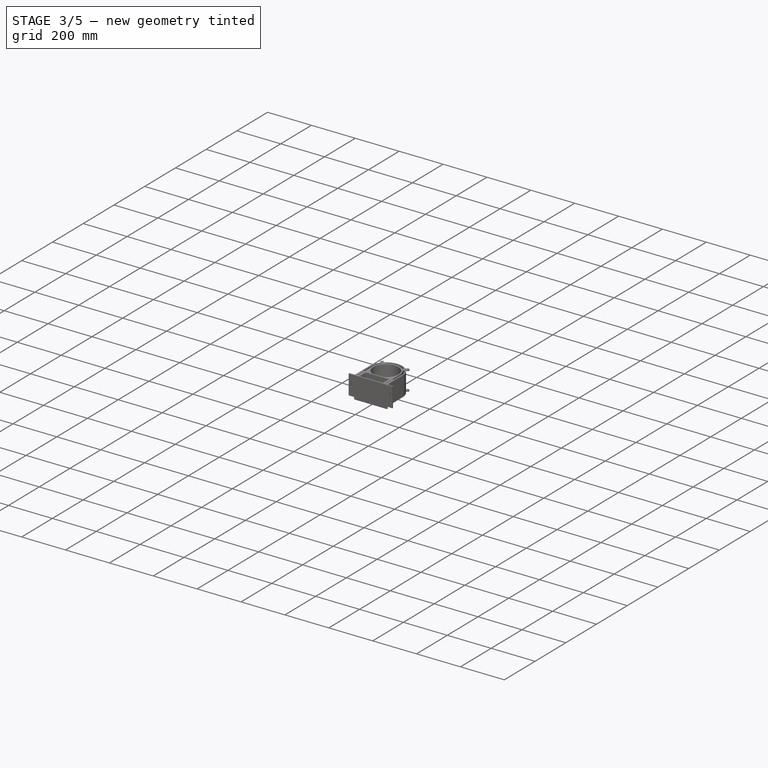
[diagram: stage 3 of 5 — iso view after this stage's code; geometry added in this stage tinted green]
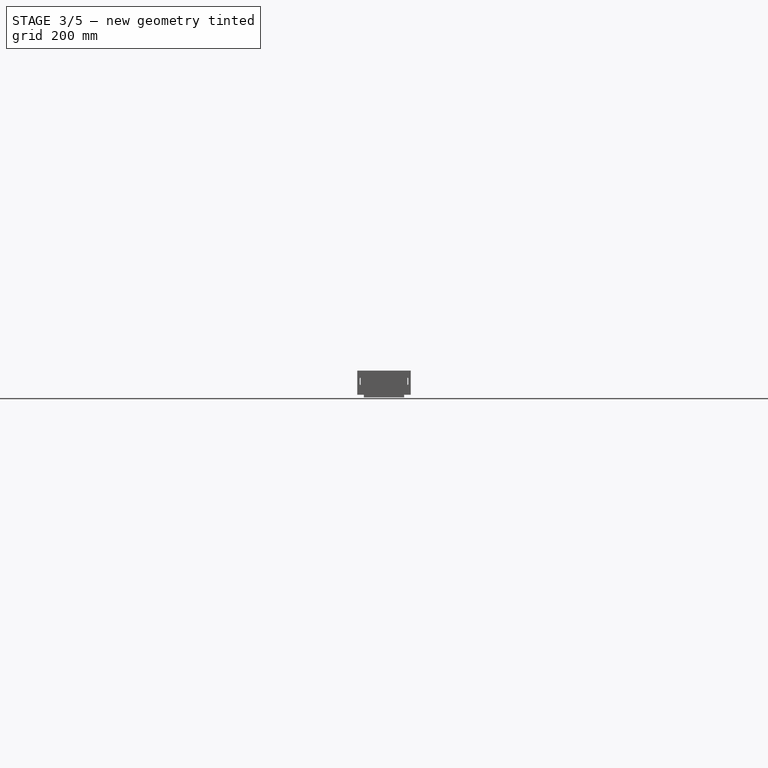
[diagram: stage 3 of 5 — front view after this stage's code; geometry added in this stage tinted green]
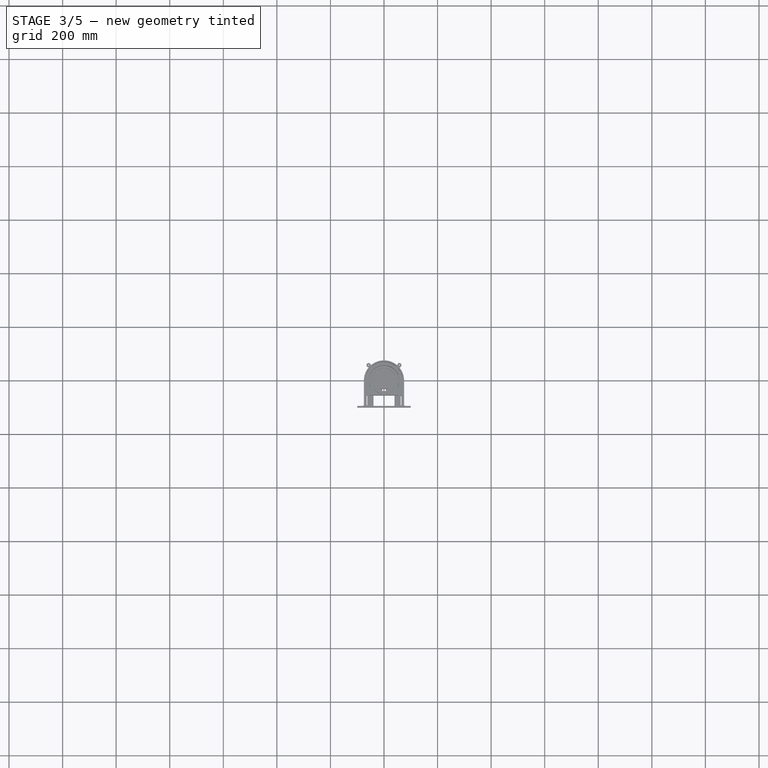
[diagram: stage 3 of 5 — top view after this stage's code; geometry added in this stage tinted green]
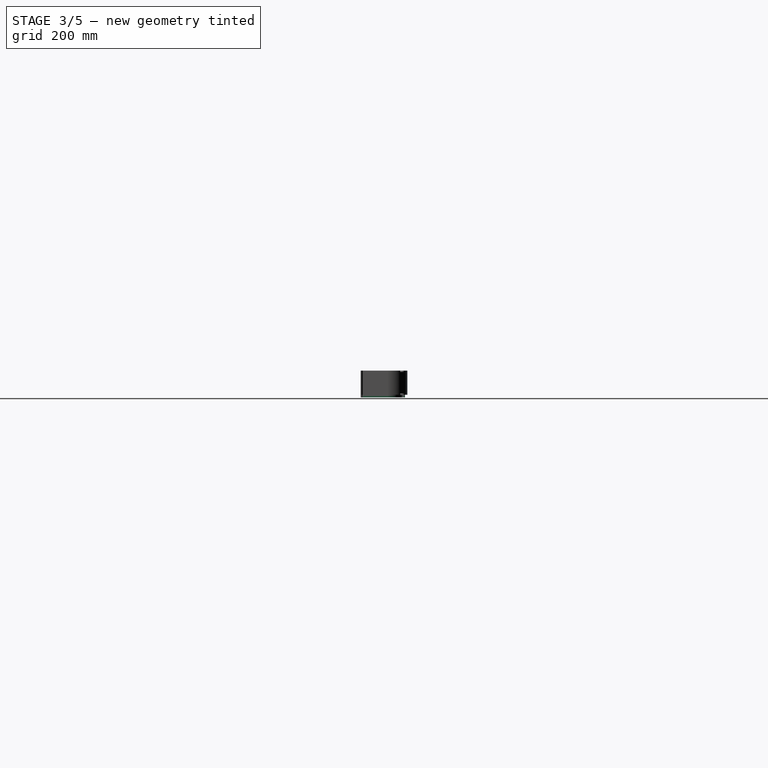
[diagram: stage 3 of 5 — right view after this stage's code; geometry added in this stage tinted green]
FEATURE [PartDesign::Body] Body044  label="windowsupport004"
  BaseFeature = -> Body043
  Group = -> [Clone004]
  Origin = -> Origin044
  Placement = pos=(0,0,134) rot=(0,0,1;0rad)
  Tip = -> Clone004
FEATURE [Sketcher::SketchObject] Sketch314  label="outline014"
  FullyConstrained = true
  MapMode = 5
  Support = -> [XY_Plane098]
  expr: Constraints[18] = <<parameters>>.support_length
  expr: Constraints[19] = <<parameters>>.top_diam
  expr: Constraints[16] = <<parameters>>.top_diam
  expr: Constraints[54] = 140
  expr: Constraints[67] = <<parameters>>.inner_diam
  sketch-geometry (42):
    g0: ArcOfCircle CenterX=0 CenterY=0 CenterZ=0 NormalX=0 NormalY=0 NormalZ=1 AngleXU=0 Radius=38 StartAngle=1.76244 EndAngle=7.66233
    g1: LineSegment StartX=-8 StartY=56.116 StartZ=0 EndX=-8 EndY=65.116 EndZ=0
    g2: LineSegment StartX=-4 StartY=41.2311 StartZ=0 EndX=-4 EndY=65.116 EndZ=0
    g3: LineSegment StartX=4 StartY=41.2311 StartZ=0 EndX=4 EndY=65.116 EndZ=0
    g4: LineSegment StartX=8 StartY=56.116 StartZ=0 EndX=8 EndY=65.116 EndZ=0
    g5: LineSegment StartX=-5 StartY=66.116 StartZ=0 EndX=-7 EndY=66.116 EndZ=0
    g6: LineSegment StartX=5 StartY=66.116 StartZ=0 EndX=7 EndY=66.116 EndZ=0
    g7: ArcOfCircle CenterX=0 CenterY=0 CenterZ=0 NormalX=0 NormalY=0 NormalZ=1 AngleXU=0 Radius=55 StartAngle=1.74715 EndAngle=3.14159
    g8: ArcOfCircle CenterX=0 CenterY=0 CenterZ=0 NormalX=0 NormalY=0 NormalZ=1 AngleXU=0 Radius=55 StartAngle=0 EndAngle=1.39445
    g9: LineSegment StartX=-70 StartY=-100 StartZ=0 EndX=70 EndY=-100 EndZ=0
    g10: LineSegment StartX=-44 StartY=-95 StartZ=0 EndX=44 EndY=-95 EndZ=0
    g11: LineSegment StartX=47 StartY=-92 StartZ=0 EndX=47 EndY=-53.4416 EndZ=0
    g12: LineSegment StartX=-47 StartY=-92 StartZ=0 EndX=-47 EndY=-53.4416 EndZ=0
    g13: ArcOfCircle CenterX=0 CenterY=0 CenterZ=0 NormalX=0 NormalY=0 NormalZ=1 AngleXU=0 Radius=55 StartAngle=4.10682 EndAngle=5.31796
    g14: ArcOfCircle CenterX=8 CenterY=41.2311 CenterZ=0 NormalX=0 NormalY=0 NormalZ=1 AngleXU=0 Radius=4 StartAngle=3.14159 EndAngle=4.52074
    g15: ArcOfCircle CenterX=10 CenterY=56.116 CenterZ=0 NormalX=0 NormalY=0 NormalZ=1 AngleXU=0 Radius=2 StartAngle=3.14159 EndAngle=4.53604
    g16: ArcOfCircle CenterX=-10 CenterY=56.116 CenterZ=0 NormalX=0 NormalY=0 NormalZ=1 AngleXU=0 Radius=2 StartAngle=4.88874 EndAngle=6.28319
    g17: ArcOfCircle CenterX=-8 CenterY=41.2311 CenterZ=0 NormalX=0 NormalY=0 NormalZ=1 AngleXU=0 Radius=4 StartAngle=4.90404 EndAngle=6.28319
    g18: ArcOfCircle CenterX=-7 CenterY=65.116 CenterZ=0 NormalX=0 NormalY=0 NormalZ=1 AngleXU=0 Radius=1 StartAngle=1.5708 EndAngle=3.14159
    g19: ArcOfCircle CenterX=-5 CenterY=65.116 CenterZ=0 NormalX=0 NormalY=0 NormalZ=1 AngleXU=0 Radius=1 StartAngle=-5.3e-15 EndAngle=1.5708
    g20: ArcOfCircle CenterX=5 CenterY=65.116 CenterZ=0 NormalX=0 NormalY=0 NormalZ=1 AngleXU=0 Radius=1 StartAngle=1.5708 EndAngle=3.14159
    g21: ArcOfCircle CenterX=7 CenterY=65.116 CenterZ=0 NormalX=0 NormalY=0 NormalZ=1 AngleXU=0 Radius=1 StartAngle=-2.7e-15 EndAngle=1.5708
    g22: ArcOfCircle CenterX=37 CenterY=-53.4416 CenterZ=0 NormalX=0 NormalY=0 NormalZ=1 AngleXU=0 Radius=10 StartAngle=3e-16 EndAngle=2.17637
    g23: ArcOfCircle CenterX=-37 CenterY=-53.4416 CenterZ=0 NormalX=0 NormalY=0 NormalZ=1 AngleXU=0 Radius=10 StartAngle=0.965226 EndAngle=3.14159
    g24: ArcOfCircle CenterX=-44 CenterY=-92 CenterZ=0 NormalX=0 NormalY=0 NormalZ=1 AngleXU=0 Radius=3 StartAngle=3.14159 EndAngle=4.71239
    g25: ArcOfCircle CenterX=44 CenterY=-92 CenterZ=0 NormalX=0 NormalY=0 NormalZ=1 AngleXU=0 Radius=3 StartAngle=4.71239 EndAngle=6.28319
    g26: LineSegment StartX=55 StartY=0 StartZ=0 EndX=55 EndY=-92 EndZ=0
    g27: LineSegment StartX=58 StartY=-95 StartZ=0 EndX=69 EndY=-95 EndZ=0
    g28: LineSegment StartX=-55 StartY=6.7e-15 StartZ=0 EndX=-55 EndY=-92 EndZ=0
    g29: LineSegment StartX=-58 StartY=-95 StartZ=0 EndX=-69 EndY=-95 EndZ=0
    g30: LineSegment StartX=-70 StartY=-100 StartZ=0 EndX=-70 EndY=-96 EndZ=0
    g31: LineSegment StartX=70 StartY=-100 StartZ=0 EndX=70 EndY=-96 EndZ=0
    g32: ArcOfCircle CenterX=58 CenterY=-92 CenterZ=0 NormalX=0 NormalY=0 NormalZ=1 AngleXU=0 Radius=3 StartAngle=3.14159 EndAngle=4.71239
    g33: ArcOfCircle CenterX=69 CenterY=-96 CenterZ=0 NormalX=0 NormalY=0 NormalZ=1 AngleXU=0 Radius=1 StartAngle=-4.4e-15 EndAngle=1.5708
    g34: ArcOfCircle CenterX=-58 CenterY=-92 CenterZ=0 NormalX=0 NormalY=0 NormalZ=1 AngleXU=0 Radius=3 StartAngle=4.71239 EndAngle=6.28319
    g35: ArcOfCircle CenterX=-69 CenterY=-96 CenterZ=0 NormalX=0 NormalY=0 NormalZ=1 AngleXU=0 Radius=1 StartAngle=1.5708 EndAngle=3.14159
    g36: LineSegment StartX=-4 StartY=65.116 StartZ=0 EndX=4 EndY=65.116 EndZ=0
    g37: LineSegment StartX=-8 StartY=56.116 StartZ=0 EndX=8 EndY=56.116 EndZ=0
    g38: LineSegment StartX=9.64912 StartY=54.147 StartZ=0 EndX=-9.64912 EndY=54.147 EndZ=0
    g39: LineSegment StartX=70 StartY=-96 StartZ=0 EndX=-70 EndY=-96 EndZ=0
    g40: LineSegment StartX=-55 StartY=-92 StartZ=0 EndX=-47 EndY=-92 EndZ=0
    g41: LineSegment StartX=47 StartY=-92 StartZ=0 EndX=55 EndY=-92 EndZ=0
  constraints (104):
    c: Coincident(g0,g-1)
    c: Vertical(g1)
    c: Vertical(g2)
    c: Vertical(g3)
    c: Vertical(g4)
    c: Horizontal(g6)
    c: Horizontal(g5)
    c: Coincident(g7,g0)
    c: PointOnObject(g7,g-1)
    c: Coincident(g8,g0)
    c: PointOnObject(g8,g-1)
    c: Horizontal(g9)
    c: Horizontal(g10)
    c: Vertical(g11)
    c: Vertical(g12)
    c: Coincident(g13,g0)
    c: Diameter(g8) = 110
    c: Equal(g8,g7)
    c: DistanceY(g9,g8) = 100
    c: Diameter(g13) = 110
    c: Tangent(g0,g14) = 1.5708
    c: Tangent(g3,g14) = 1.5708
    c: Tangent(g8,g15) = 1.5708
    c: Tangent(g4,g15) = 1.5708
    c: Tangent(g1,g16) = -1.5708
    c: Tangent(g7,g16) = 1.5708
    c: Tangent(g2,g17) = -1.5708
    c: Tangent(g0,g17) = 1.5708
    c: Tangent(g1,g18) = 1.5708
    c: Tangent(g5,g18) = -1.5708
    c: Tangent(g2,g19) = -1.5708
    c: Tangent(g5,g19) = -1.5708
    c: Tangent(g6,g20) = 1.5708
    c: Tangent(g3,g20) = 1.5708
    c: Tangent(g4,g21) = -1.5708
    c: Tangent(g6,g21) = 1.5708
    c: Tangent(g13,g22) = 1.5708
    c: Tangent(g11,g22) = -1.5708
    c: Tangent(g13,g23) = 1.5708
    c: Tangent(g12,g23) = 1.5708
    c: Tangent(g10,g24) = -1.5708
    c: Tangent(g12,g24) = 1.5708
    c: Tangent(g11,g25) = -1.5708
    c: Tangent(g10,g25) = -1.5708
    c: Coincident(g26,g8)
    c: Vertical(g26)
    c: Horizontal(g27)
    c: Coincident(g28,g7)
    c: Vertical(g28)
    c: Horizontal(g29)
    c: Coincident(g30,g9)
    c: Vertical(g30)
    c: Coincident(g31,g9)
    c: Vertical(g31)
    c: DistanceX(g9,g9) = 140
    c: Radius(g21) = 1
    c: Equal(g21,g20)
    c: Equal(g20,g19)
    c: Equal(g19,g18)
    c: Radius(g15) = 2
    c: Radius(g14) = 4
    c: Equal(g16,g15)
    c: Equal(g17,g14)
    c: Radius(g22) = 10
    c: Equal(g23,g22)
    c: Radius(g25) = 3
    c: Equal(g24,g25)
    c: Diameter(g0) = 76
    c: Tangent(g27,g32) = -1.5708
    c: Tangent(g26,g32) = -1.5708
    c: Tangent(g27,g33) = 1.5708
    c: Tangent(g31,g33) = -1.5708
    c: Tangent(g29,g34) = 1.5708
    c: Tangent(g28,g34) = 1.5708
    c: Tangent(g30,g35) = 1.5708
    c: Tangent(g29,g35) = -1.5708
    c: Radius(g35) = 1
    c: Equal(g33,g35)
    c: Equal(g34,g32)
    c: Coincident(g36,g2)
    c: Coincident(g36,g3)
    c: Horizontal(g36)
    c: Coincident(g37,g1)
    c: Coincident(g37,g4)
    c: Horizontal(g37)
    c: Coincident(g38,g8)
    c: Coincident(g38,g7)
    c: Equal(g34,g24)
    c: Coincident(g39,g31)
    c: Coincident(g39,g30)
    c: DistanceY(g9,g29) = 5
    c: DistanceX(g0,g9) = 70
    c: DistanceX(g1,g2) = 4
    c: DistanceX(g3,g4) = 4
    c: DistanceY(g1,g5) = 10
    c: DistanceX(g2,g3) = 8
    c: Coincident(g40,g28)
    c: Coincident(g40,g12)
    c: Horizontal(g40)
    c: Coincident(g41,g11)
    c: Coincident(g41,g26)
    c: Horizontal(g41)
    c: DistanceX(g41,g41) = 8
    c: DistanceX(g40,g40) = 8
FEATURE [Sketcher::SketchObject] Sketch315  label="outline015"
  FullyConstrained = true
  MapMode = 5
  Support = -> [XY_Plane098]
  expr: Constraints[91] = 70
  expr: Constraints[18] = <<parameters>>.support_length
  expr: Constraints[54] = 140
  expr: Constraints[16] = <<parameters>>.top_diam
  expr: Constraints[19] = <<parameters>>.top_diam
  expr: Constraints[67] = <<parameters>>.top_window_diam
  sketch-geometry (42):
    g0: ArcOfCircle CenterX=0 CenterY=0 CenterZ=0 NormalX=0 NormalY=0 NormalZ=1 AngleXU=0 Radius=51 StartAngle=1.71677 EndAngle=7.70801
    g1: LineSegment StartX=-8 StartY=56.116 StartZ=0 EndX=-8 EndY=65.116 EndZ=0
    g2: LineSegment StartX=-4 StartY=54.4151 StartZ=0 EndX=-4 EndY=65.116 EndZ=0
    g3: LineSegment StartX=4 StartY=54.4151 StartZ=0 EndX=4 EndY=65.116 EndZ=0
    g4: LineSegment StartX=8 StartY=56.116 StartZ=0 EndX=8 EndY=65.116 EndZ=0
    g5: LineSegment StartX=-5 StartY=66.116 StartZ=0 EndX=-7 EndY=66.116 EndZ=0
    g6: LineSegment StartX=5 StartY=66.116 StartZ=0 EndX=7 EndY=66.116 EndZ=0
    g7: ArcOfCircle CenterX=0 CenterY=0 CenterZ=0 NormalX=0 NormalY=0 NormalZ=1 AngleXU=0 Radius=55 StartAngle=1.74715 EndAngle=3.14159
    g8: ArcOfCircle CenterX=0 CenterY=0 CenterZ=0 NormalX=0 NormalY=0 NormalZ=1 AngleXU=0 Radius=55 StartAngle=0 EndAngle=1.39445
    g9: LineSegment StartX=-70 StartY=-100 StartZ=0 EndX=70 EndY=-100 EndZ=0
    g10: LineSegment StartX=-44 StartY=-95 StartZ=0 EndX=44 EndY=-95 EndZ=0
    g11: LineSegment StartX=47 StartY=-92 StartZ=0 EndX=47 EndY=-53.4416 EndZ=0
    g12: LineSegment StartX=-47 StartY=-92 StartZ=0 EndX=-47 EndY=-53.4416 EndZ=0
    g13: ArcOfCircle CenterX=0 CenterY=0 CenterZ=0 NormalX=0 NormalY=0 NormalZ=1 AngleXU=0 Radius=55 StartAngle=4.10682 EndAngle=5.31796
    g14: ArcOfCircle CenterX=8 CenterY=54.4151 CenterZ=0 NormalX=0 NormalY=0 NormalZ=1 AngleXU=0 Radius=4 StartAngle=3.14159 EndAngle=4.56642
    g15: ArcOfCircle CenterX=10 CenterY=56.116 CenterZ=0 NormalX=0 NormalY=0 NormalZ=1 AngleXU=0 Radius=2 StartAngle=3.14159 EndAngle=4.53604
    g16: ArcOfCircle CenterX=-10 CenterY=56.116 CenterZ=0 NormalX=0 NormalY=0 NormalZ=1 AngleXU=0 Radius=2 StartAngle=4.88874 EndAngle=6.28319
    g17: ArcOfCircle CenterX=-8 CenterY=54.4151 CenterZ=0 NormalX=0 NormalY=0 NormalZ=1 AngleXU=0 Radius=4 StartAngle=4.85836 EndAngle=6.28319
    g18: ArcOfCircle CenterX=-7 CenterY=65.116 CenterZ=0 NormalX=0 NormalY=0 NormalZ=1 AngleXU=0 Radius=1 StartAngle=1.5708 EndAngle=3.14159
    g19: ArcOfCircle CenterX=-5 CenterY=65.116 CenterZ=0 NormalX=0 NormalY=0 NormalZ=1 AngleXU=0 Radius=1 StartAngle=3.1e-15 EndAngle=1.5708
    g20: ArcOfCircle CenterX=5 CenterY=65.116 CenterZ=0 NormalX=0 NormalY=0 NormalZ=1 AngleXU=0 Radius=1 StartAngle=1.5708 EndAngle=3.14159
    g21: ArcOfCircle CenterX=7 CenterY=65.116 CenterZ=0 NormalX=0 NormalY=0 NormalZ=1 AngleXU=0 Radius=1 StartAngle=-2.7e-15 EndAngle=1.5708
    g22: ArcOfCircle CenterX=37 CenterY=-53.4416 CenterZ=0 NormalX=0 NormalY=0 NormalZ=1 AngleXU=0 Radius=10 StartAngle=1e-16 EndAngle=2.17637
    g23: ArcOfCircle CenterX=-37 CenterY=-53.4416 CenterZ=0 NormalX=0 NormalY=0 NormalZ=1 AngleXU=0 Radius=10 StartAngle=0.965226 EndAngle=3.14159
    g24: ArcOfCircle CenterX=-44 CenterY=-92 CenterZ=0 NormalX=0 NormalY=0 NormalZ=1 AngleXU=0 Radius=3 StartAngle=3.14159 EndAngle=4.71239
    g25: ArcOfCircle CenterX=44 CenterY=-92 CenterZ=0 NormalX=0 NormalY=0 NormalZ=1 AngleXU=0 Radius=3 StartAngle=4.71239 EndAngle=6.28319
    g26: LineSegment StartX=55 StartY=0 StartZ=0 EndX=55 EndY=-92 EndZ=0
    g27: LineSegment StartX=58 StartY=-95 StartZ=0 EndX=69 EndY=-95 EndZ=0
    g28: LineSegment StartX=-55 StartY=6.7e-15 StartZ=0 EndX=-55 EndY=-92 EndZ=0
    g29: LineSegment StartX=-58 StartY=-95 StartZ=0 EndX=-69 EndY=-95 EndZ=0
    g30: LineSegment StartX=-70 StartY=-100 StartZ=0 EndX=-70 EndY=-96 EndZ=0
    g31: LineSegment StartX=70 StartY=-100 StartZ=0 EndX=70 EndY=-96 EndZ=0
    g32: ArcOfCircle CenterX=58 CenterY=-92 CenterZ=0 NormalX=0 NormalY=0 NormalZ=1 AngleXU=0 Radius=3 StartAngle=3.14159 EndAngle=4.71239
    g33: ArcOfCircle CenterX=69 CenterY=-96 CenterZ=0 NormalX=0 NormalY=0 NormalZ=1 AngleXU=0 Radius=1 StartAngle=-2.7e-15 EndAngle=1.5708
    g34: ArcOfCircle CenterX=-58 CenterY=-92 CenterZ=0 NormalX=0 NormalY=0 NormalZ=1 AngleXU=0 Radius=3 StartAngle=4.71239 EndAngle=6.28319
    g35: ArcOfCircle CenterX=-69 CenterY=-96 CenterZ=0 NormalX=0 NormalY=0 NormalZ=1 AngleXU=0 Radius=1 StartAngle=1.5708 EndAngle=3.14159
    g36: LineSegment StartX=-4 StartY=65.116 StartZ=0 EndX=4 EndY=65.116 EndZ=0
    g37: LineSegment StartX=-8 StartY=56.116 StartZ=0 EndX=8 EndY=56.116 EndZ=0
    g38: LineSegment StartX=9.64912 StartY=54.147 StartZ=0 EndX=-9.64912 EndY=54.147 EndZ=0
    g39: LineSegment StartX=70 StartY=-96 StartZ=0 EndX=-70 EndY=-96 EndZ=0
    g40: LineSegment StartX=-55 StartY=-92 StartZ=0 EndX=-47 EndY=-92 EndZ=0
    g41: LineSegment StartX=47 StartY=-92 StartZ=0 EndX=55 EndY=-92 EndZ=0
  constraints (104):
    c: Coincident(g0,g-1)
    c: Vertical(g1)
    c: Vertical(g2)
    c: Vertical(g3)
    c: Vertical(g4)
    c: Horizontal(g6)
    c: Horizontal(g5)
    c: Coincident(g7,g0)
    c: PointOnObject(g7,g-1)
    c: Coincident(g8,g0)
    c: PointOnObject(g8,g-1)
    c: Horizontal(g9)
    c: Horizontal(g10)
    c: Vertical(g11)
    c: Vertical(g12)
    c: Coincident(g13,g0)
    c: Diameter(g8) = 110
    c: Equal(g8,g7)
    c: DistanceY(g9,g8) = 100
    c: Diameter(g13) = 110
    c: Tangent(g0,g14) = 1.5708
    c: Tangent(g3,g14) = 1.5708
    c: Tangent(g8,g15) = 1.5708
    c: Tangent(g4,g15) = 1.5708
    c: Tangent(g1,g16) = -1.5708
    c: Tangent(g7,g16) = 1.5708
    c: Tangent(g2,g17) = -1.5708
    c: Tangent(g0,g17) = 1.5708
    c: Tangent(g1,g18) = 1.5708
    c: Tangent(g5,g18) = -1.5708
    c: Tangent(g2,g19) = -1.5708
    c: Tangent(g5,g19) = -1.5708
    c: Tangent(g6,g20) = 1.5708
    c: Tangent(g3,g20) = 1.5708
    c: Tangent(g4,g21) = -1.5708
    c: Tangent(g6,g21) = 1.5708
    c: Tangent(g13,g22) = 1.5708
    c: Tangent(g11,g22) = -1.5708
    c: Tangent(g13,g23) = 1.5708
    c: Tangent(g12,g23) = 1.5708
    c: Tangent(g10,g24) = -1.5708
    c: Tangent(g12,g24) = 1.5708
    c: Tangent(g11,g25) = -1.5708
    c: Tangent(g10,g25) = -1.5708
    c: Coincident(g26,g8)
    c: Vertical(g26)
    c: Horizontal(g27)
    c: Coincident(g28,g7)
    c: Vertical(g28)
    c: Horizontal(g29)
    c: Coincident(g30,g9)
    c: Vertical(g30)
    c: Coincident(g31,g9)
    c: Vertical(g31)
    c: DistanceX(g9,g9) = 140
    c: Radius(g21) = 1
    c: Equal(g21,g20)
    c: Equal(g20,g19)
    c: Equal(g19,g18)
    c: Radius(g15) = 2
    c: Radius(g14) = 4
    c: Equal(g16,g15)
    c: Equal(g17,g14)
    c: Radius(g22) = 10
    c: Equal(g23,g22)
    c: Radius(g25) = 3
    c: Equal(g24,g25)
    c: Diameter(g0) = 102
    c: Tangent(g27,g32) = -1.5708
    c: Tangent(g26,g32) = -1.5708
    c: Tangent(g27,g33) = 1.5708
    c: Tangent(g31,g33) = -1.5708
    c: Tangent(g29,g34) = 1.5708
    c: Tangent(g28,g34) = 1.5708
    c: Tangent(g30,g35) = 1.5708
    c: Tangent(g29,g35) = -1.5708
    c: Radius(g35) = 1
    c: Equal(g33,g35)
    c: Equal(g34,g32)
    c: Coincident(g36,g2)
    c: Coincident(g36,g3)
    c: Horizontal(g36)
    c: Coincident(g37,g1)
    c: Coincident(g37,g4)
    c: Horizontal(g37)
    c: Coincident(g38,g8)
    c: Coincident(g38,g7)
    c: Equal(g34,g24)
    c: Coincident(g39,g31)
    c: Coincident(g39,g30)
    c: DistanceY(g9,g29) = 5
    c: DistanceX(g0,g9) = 70
    c: DistanceX(g1,g2) = 4
    c: DistanceX(g3,g4) = 4
    c: DistanceY(g1,g5) = 10
    c: DistanceX(g2,g3) = 8
    c: Coincident(g40,g28)
    c: Coincident(g40,g12)
    c: Horizontal(g40)
    c: Coincident(g41,g11)
    c: Coincident(g41,g26)
    c: Horizontal(g41)
    c: DistanceX(g41,g41) = 8
    c: DistanceX(g40,g40) = 8
FEATURE [Sketcher::SketchObject] Sketch313  label="outline012"
  FullyConstrained = true
  MapMode = 5
  Support = -> [XY_Plane098]
  expr: Constraints[91] = 70
  expr: Constraints[54] = <<parameters>>.top_diam + 30
  expr: Constraints[16] = <<parameters>>.top_diam
  expr: Constraints[19] = <<parameters>>.top_diam
  expr: Constraints[67] = <<parameters>>.support_inner_diam
  sketch-geometry (42):
    g0: ArcOfCircle CenterX=0 CenterY=0 CenterZ=0 NormalX=0 NormalY=0 NormalZ=1 AngleXU=0 Radius=46 StartAngle=1.73149 EndAngle=7.69329
    g1: LineSegment StartX=-8 StartY=56.116 StartZ=0 EndX=-8 EndY=65.116 EndZ=0
    g2: LineSegment StartX=-4 StartY=49.3559 StartZ=0 EndX=-4 EndY=65.116 EndZ=0
    g3: LineSegment StartX=4 StartY=49.3559 StartZ=0 EndX=4 EndY=65.116 EndZ=0
    g4: LineSegment StartX=8 StartY=56.116 StartZ=0 EndX=8 EndY=65.116 EndZ=0
    g5: LineSegment StartX=-5 StartY=66.116 StartZ=0 EndX=-7 EndY=66.116 EndZ=0
    g6: LineSegment StartX=5 StartY=66.116 StartZ=0 EndX=7 EndY=66.116 EndZ=0
    g7: ArcOfCircle CenterX=0 CenterY=0 CenterZ=0 NormalX=0 NormalY=0 NormalZ=1 AngleXU=0 Radius=55 StartAngle=1.74715 EndAngle=3.14159
    g8: ArcOfCircle CenterX=0 CenterY=0 CenterZ=0 NormalX=0 NormalY=0 NormalZ=1 AngleXU=0 Radius=55 StartAngle=0 EndAngle=1.39445
    g9: LineSegment StartX=-70 StartY=-100 StartZ=0 EndX=70 EndY=-100 EndZ=0
    g10: LineSegment StartX=-44 StartY=-95 StartZ=0 EndX=44 EndY=-95 EndZ=0
    g11: LineSegment StartX=47 StartY=-92 StartZ=0 EndX=47 EndY=-53.4416 EndZ=0
    g12: LineSegment StartX=-47 StartY=-92 StartZ=0 EndX=-47 EndY=-53.4416 EndZ=0
    g13: ArcOfCircle CenterX=0 CenterY=0 CenterZ=0 NormalX=0 NormalY=0 NormalZ=1 AngleXU=0 Radius=55 StartAngle=4.10682 EndAngle=5.31796
    g14: ArcOfCircle CenterX=8 CenterY=49.3559 CenterZ=0 NormalX=0 NormalY=0 NormalZ=1 AngleXU=0 Radius=4 StartAngle=3.14159 EndAngle=4.5517
    g15: ArcOfCircle CenterX=10 CenterY=56.116 CenterZ=0 NormalX=0 NormalY=0 NormalZ=1 AngleXU=0 Radius=2 StartAngle=3.14159 EndAngle=4.53604
    g16: ArcOfCircle CenterX=-10 CenterY=56.116 CenterZ=0 NormalX=0 NormalY=0 NormalZ=1 AngleXU=0 Radius=2 StartAngle=4.88874 EndAngle=6.28319
    g17: ArcOfCircle CenterX=-8 CenterY=49.3559 CenterZ=0 NormalX=0 NormalY=0 NormalZ=1 AngleXU=0 Radius=4 StartAngle=4.87308 EndAngle=6.28319
    g18: ArcOfCircle CenterX=-7 CenterY=65.116 CenterZ=0 NormalX=0 NormalY=0 NormalZ=1 AngleXU=0 Radius=1 StartAngle=1.5708 EndAngle=3.14159
    g19: ArcOfCircle CenterX=-5 CenterY=65.116 CenterZ=0 NormalX=0 NormalY=0 NormalZ=1 AngleXU=0 Radius=1 StartAngle=-2.7e-15 EndAngle=1.5708
    g20: ArcOfCircle CenterX=5 CenterY=65.116 CenterZ=0 NormalX=0 NormalY=0 NormalZ=1 AngleXU=0 Radius=1 StartAngle=1.5708 EndAngle=3.14159
    g21: ArcOfCircle CenterX=7 CenterY=65.116 CenterZ=0 NormalX=0 NormalY=0 NormalZ=1 AngleXU=0 Radius=1 StartAngle=-2.7e-15 EndAngle=1.5708
    g22: ArcOfCircle CenterX=37 CenterY=-53.4416 CenterZ=0 NormalX=0 NormalY=0 NormalZ=1 AngleXU=0 Radius=10 StartAngle=0 EndAngle=2.17637
    g23: ArcOfCircle CenterX=-37 CenterY=-53.4416 CenterZ=0 NormalX=0 NormalY=0 NormalZ=1 AngleXU=0 Radius=10 StartAngle=0.965226 EndAngle=3.14159
    g24: ArcOfCircle CenterX=-44 CenterY=-92 CenterZ=0 NormalX=0 NormalY=0 NormalZ=1 AngleXU=0 Radius=3 StartAngle=3.14159 EndAngle=4.71239
    g25: ArcOfCircle CenterX=44 CenterY=-92 CenterZ=0 NormalX=0 NormalY=0 NormalZ=1 AngleXU=0 Radius=3 StartAngle=4.71239 EndAngle=6.28319
    g26: LineSegment StartX=55 StartY=0 StartZ=0 EndX=55 EndY=-92 EndZ=0
    g27: LineSegment StartX=58 StartY=-95 StartZ=0 EndX=69 EndY=-95 EndZ=0
    g28: LineSegment StartX=-55 StartY=0 StartZ=0 EndX=-55 EndY=-92 EndZ=0
    g29: LineSegment StartX=-58 StartY=-95 StartZ=0 EndX=-69 EndY=-95 EndZ=0
    g30: LineSegment StartX=-70 StartY=-100 StartZ=0 EndX=-70 EndY=-96 EndZ=0
    g31: LineSegment StartX=70 StartY=-100 StartZ=0 EndX=70 EndY=-96 EndZ=0
    g32: ArcOfCircle CenterX=58 CenterY=-92 CenterZ=0 NormalX=0 NormalY=0 NormalZ=1 AngleXU=0 Radius=3 StartAngle=3.14159 EndAngle=4.71239
    g33: ArcOfCircle CenterX=69 CenterY=-96 CenterZ=0 NormalX=0 NormalY=0 NormalZ=1 AngleXU=0 Radius=1 StartAngle=5e-16 EndAngle=1.5708
    g34: ArcOfCircle CenterX=-58 CenterY=-92 CenterZ=0 NormalX=0 NormalY=0 NormalZ=1 AngleXU=0 Radius=3 StartAngle=4.71239 EndAngle=6.28319
    g35: ArcOfCircle CenterX=-69 CenterY=-96 CenterZ=0 NormalX=0 NormalY=0 NormalZ=1 AngleXU=0 Radius=1 StartAngle=1.5708 EndAngle=3.14159
    g36: LineSegment StartX=-4 StartY=65.116 StartZ=0 EndX=4 EndY=65.116 EndZ=0
    g37: LineSegment StartX=-8 StartY=56.116 StartZ=0 EndX=8 EndY=56.116 EndZ=0
    g38: LineSegment StartX=9.64912 StartY=54.147 StartZ=0 EndX=-9.64912 EndY=54.147 EndZ=0
    g39: LineSegment StartX=70 StartY=-96 StartZ=0 EndX=-70 EndY=-96 EndZ=0
    g40: LineSegment StartX=-55 StartY=-92 StartZ=0 EndX=-47 EndY=-92 EndZ=0
    g41: LineSegment StartX=47 StartY=-92 StartZ=0 EndX=55 EndY=-92 EndZ=0
  constraints (104):
    c: Coincident(g0,g-1)
    c: Vertical(g1)
    c: Vertical(g2)
    c: Vertical(g3)
    c: Vertical(g4)
    c: Horizontal(g6)
    c: Horizontal(g5)
    c: Coincident(g7,g0)
    c: PointOnObject(g7,g-1)
    c: Coincident(g8,g0)
    c: PointOnObject(g8,g-1)
    c: Horizontal(g9)
    c: Horizontal(g10)
    c: Vertical(g11)
    c: Vertical(g12)
    c: Coincident(g13,g0)
    c: Diameter(g8) = 110
    c: Equal(g8,g7)
    c: DistanceY(g9,g8) = 100
    c: Diameter(g13) = 110
    c: Tangent(g0,g14) = 1.5708
    c: Tangent(g3,g14) = 1.5708
    c: Tangent(g8,g15) = 1.5708
    c: Tangent(g4,g15) = 1.5708
    c: Tangent(g1,g16) = -1.5708
    c: Tangent(g7,g16) = 1.5708
    c: Tangent(g2,g17) = -1.5708
    c: Tangent(g0,g17) = 1.5708
    c: Tangent(g1,g18) = 1.5708
    c: Tangent(g5,g18) = -1.5708
    c: Tangent(g2,g19) = -1.5708
    c: Tangent(g5,g19) = -1.5708
    c: Tangent(g6,g20) = 1.5708
    c: Tangent(g3,g20) = 1.5708
    c: Tangent(g4,g21) = -1.5708
    c: Tangent(g6,g21) = 1.5708
    c: Tangent(g13,g22) = 1.5708
    c: Tangent(g11,g22) = -1.5708
    c: Tangent(g13,g23) = 1.5708
    c: Tangent(g12,g23) = 1.5708
    c: Tangent(g10,g24) = -1.5708
    c: Tangent(g12,g24) = 1.5708
    c: Tangent(g11,g25) = -1.5708
    c: Tangent(g10,g25) = -1.5708
    c: Coincident(g26,g8)
    c: Vertical(g26)
    c: Horizontal(g27)
    c: Coincident(g28,g7)
    c: Vertical(g28)
    c: Horizontal(g29)
    c: Coincident(g30,g9)
    c: Vertical(g30)
    c: Coincident(g31,g9)
    c: Vertical(g31)
    c: DistanceX(g9,g9) = 140
    c: Radius(g21) = 1
    c: Equal(g21,g20)
    c: Equal(g20,g19)
    c: Equal(g19,g18)
    c: Radius(g15) = 2
    c: Radius(g14) = 4
    c: Equal(g16,g15)
    c: Equal(g17,g14)
    c: Radius(g22) = 10
    c: Equal(g23,g22)
    c: Radius(g25) = 3
    c: Equal(g24,g25)
    c: Diameter(g0) = 92
    c: Tangent(g27,g32) = -1.5708
    c: Tangent(g26,g32) = -1.5708
    c: Tangent(g27,g33) = 1.5708
    c: Tangent(g31,g33) = -1.5708
    c: Tangent(g29,g34) = 1.5708
    c: Tangent(g28,g34) = 1.5708
    c: Tangent(g30,g35) = 1.5708
    c: Tangent(g29,g35) = -1.5708
    c: Radius(g35) = 1
    c: Equal(g33,g35)
    c: Equal(g34,g32)
    c: Coincident(g36,g2)
    c: Coincident(g36,g3)
    c: Horizontal(g36)
    c: Coincident(g37,g1)
    c: Coincident(g37,g4)
    c: Horizontal(g37)
    c: Coincident(g38,g8)
    c: Coincident(g38,g7)
    c: Equal(g34,g24)
    c: Coincident(g39,g31)
    c: Coincident(g39,g30)
    c: DistanceY(g9,g29) = 5
    c: DistanceX(g0,g9) = 70
    c: DistanceX(g1,g2) = 4
    c: DistanceX(g3,g4) = 4
    c: DistanceY(g1,g5) = 10
    c: DistanceX(g2,g3) = 8
    c: Coincident(g40,g28)
    c: Coincident(g40,g12)
    c: Horizontal(g40)
    c: Coincident(g41,g11)
    c: Coincident(g41,g26)
    c: Horizontal(g41)
    c: DistanceX(g41,g41) = 8
    c: DistanceX(g40,g40) = 8
FEATURE [PartDesign::Pad] Pad244  label="outline013"
  Direction = (1,1,1)
  Length = 10
  Length2 = 100
  Profile = -> Sketch313
  Type = 0
FEATURE [PartDesign::Pad] Pad245  label="inner_section002"
  BaseFeature = -> Pad244
  Direction = (1,1,1)
  Length = 5
  Length2 = 100
  Profile = -> Sketch314
  Reversed = true
  Type = 0
FEATURE [PartDesign::Pad] Pad246  label="window_section001"
  BaseFeature = -> Pad245
  Direction = (1,1,1)
  Length = 10
  Length2 = 100
  Profile = -> Sketch315
  Reversed = true
  Type = 0
FEATURE [Sketcher::SketchObject] Sketch319  label="outline018"
  FullyConstrained = true
  MapMode = 5
  Support = -> [XY_Plane099]
  expr: Constraints[62] = <<parameters>>.top_diam
  expr: Constraints[43] = <<parameters>>.m4
  expr: Constraints[54] = <<parameters>>.inner_diam
  expr: Constraints[55] = <<parameters>>.top_diam
  expr: Constraints[56] = <<parameters>>.top_diam / 2 - 8
  expr: Constraints[52] = <<parameters>>.top_diam
  expr: Constraints[42] = <<parameters>>.m4
  expr: Constraints[57] = <<parameters>>.top_diam / 2 - 8
  sketch-geometry (32):
    g0: LineSegment StartX=-8 StartY=56.116 StartZ=0 EndX=-8 EndY=65.116 EndZ=0
    g1: LineSegment StartX=-4 StartY=41.2311 StartZ=0 EndX=-4 EndY=65.116 EndZ=0
    g2: LineSegment StartX=4 StartY=41.2311 StartZ=0 EndX=4 EndY=65.116 EndZ=0
    g3: LineSegment StartX=8 StartY=56.116 StartZ=0 EndX=8 EndY=65.116 EndZ=0
    g4: LineSegment StartX=-5 StartY=66.116 StartZ=0 EndX=-7 EndY=66.116 EndZ=0
    g5: LineSegment StartX=5 StartY=66.116 StartZ=0 EndX=7 EndY=66.116 EndZ=0
    g6: ArcOfCircle CenterX=-7 CenterY=65.116 CenterZ=0 NormalX=0 NormalY=0 NormalZ=1 AngleXU=0 Radius=1 StartAngle=1.5708 EndAngle=3.14159
    g7: ArcOfCircle CenterX=-5 CenterY=65.116 CenterZ=0 NormalX=0 NormalY=0 NormalZ=1 AngleXU=0 Radius=1 StartAngle=-2.7e-15 EndAngle=1.5708
    g8: ArcOfCircle CenterX=5 CenterY=65.116 CenterZ=0 NormalX=0 NormalY=0 NormalZ=1 AngleXU=0 Radius=1 StartAngle=1.5708 EndAngle=3.14159
    g9: ArcOfCircle CenterX=7 CenterY=65.116 CenterZ=0 NormalX=0 NormalY=0 NormalZ=1 AngleXU=0 Radius=1 StartAngle=3.1e-15 EndAngle=1.5708
    g10: LineSegment StartX=-4 StartY=65.116 StartZ=0 EndX=4 EndY=65.116 EndZ=0
    g11: ArcOfCircle CenterX=0 CenterY=0 CenterZ=0 NormalX=0 NormalY=0 NormalZ=1 AngleXU=0 Radius=38 StartAngle=1.76244 EndAngle=7.66233
    g12: ArcOfCircle CenterX=0 CenterY=0 CenterZ=0 NormalX=0 NormalY=0 NormalZ=1 AngleXU=0 Radius=55 StartAngle=1.74715 EndAngle=3.14159
    g13: ArcOfCircle CenterX=0 CenterY=0 CenterZ=0 NormalX=0 NormalY=0 NormalZ=1 AngleXU=0 Radius=55 StartAngle=0 EndAngle=1.39445
    g14: LineSegment StartX=-55 StartY=6.7e-15 StartZ=0 EndX=-55 EndY=-35 EndZ=0
    g15: LineSegment StartX=-50 StartY=-40 StartZ=0 EndX=-41.5331 EndY=-40 EndZ=0
    g16: LineSegment StartX=55 StartY=0 StartZ=0 EndX=55 EndY=-35 EndZ=0
    g17: LineSegment StartX=50 StartY=-40 StartZ=0 EndX=41.5331 EndY=-40 EndZ=0
    g18: ArcOfCircle CenterX=0 CenterY=0 CenterZ=0 NormalX=0 NormalY=0 NormalZ=1 AngleXU=0 Radius=55 StartAngle=4.01923 EndAngle=5.40555
    g19: ArcOfCircle CenterX=-41.5331 CenterY=-50 CenterZ=0 NormalX=0 NormalY=0 NormalZ=1 AngleXU=0 Radius=10 StartAngle=0.877636 EndAngle=1.5708
    g20: ArcOfCircle CenterX=41.5331 CenterY=-50 CenterZ=0 NormalX=0 NormalY=0 NormalZ=1 AngleXU=0 Radius=10 StartAngle=1.5708 EndAngle=2.26396
    g21: ArcOfCircle CenterX=50 CenterY=-35 CenterZ=0 NormalX=0 NormalY=0 NormalZ=1 AngleXU=0 Radius=5 StartAngle=4.71239 EndAngle=6.28319
    g22: ArcOfCircle CenterX=-50 CenterY=-35 CenterZ=0 NormalX=0 NormalY=0 NormalZ=1 AngleXU=0 Radius=5 StartAngle=3.14159 EndAngle=4.71239
    g23: Circle CenterX=-47 CenterY=-30 CenterZ=0 NormalX=0 NormalY=0 NormalZ=1 AngleXU=0 Radius=2.25
    g24: Circle CenterX=47 CenterY=-30 CenterZ=0 NormalX=0 NormalY=0 NormalZ=1 AngleXU=0 Radius=2.25
    g25: LineSegment StartX=-50 StartY=-40 StartZ=0 EndX=50 EndY=-40 EndZ=0
    g26: LineSegment StartX=-47 StartY=-30 StartZ=0 EndX=47 EndY=-30 EndZ=0
    g27: ArcOfCircle CenterX=-10 CenterY=56.116 CenterZ=0 NormalX=0 NormalY=0 NormalZ=1 AngleXU=0 Radius=2 StartAngle=4.88874 EndAngle=6.28319
    g28: ArcOfCircle CenterX=10 CenterY=56.116 CenterZ=0 NormalX=0 NormalY=0 NormalZ=1 AngleXU=0 Radius=2 StartAngle=3.14159 EndAngle=4.53604
    g29: ArcOfCircle CenterX=-8 CenterY=41.2311 CenterZ=0 NormalX=0 NormalY=0 NormalZ=1 AngleXU=0 Radius=4 StartAngle=4.90404 EndAngle=6.28319
    g30: ArcOfCircle CenterX=8 CenterY=41.2311 CenterZ=0 NormalX=0 NormalY=0 NormalZ=1 AngleXU=0 Radius=4 StartAngle=3.14159 EndAngle=4.52074
    g31: LineSegment StartX=-4 StartY=41.2311 StartZ=0 EndX=4 EndY=41.2311 EndZ=0
  constraints (80):
    c: Vertical(g0)
    c: Vertical(g1)
    c: Vertical(g2)
    c: Vertical(g3)
    c: Horizontal(g5)
    c: Horizontal(g4)
    c: Tangent(g0,g6) = 1.5708
    c: Tangent(g4,g6) = -1.5708
    c: Tangent(g1,g7) = -1.5708
    c: Tangent(g4,g7) = -1.5708
    c: Tangent(g5,g8) = 1.5708
    c: Tangent(g2,g8) = 1.5708
    c: Tangent(g3,g9) = -1.5708
    c: Tangent(g5,g9) = 1.5708
    c: Radius(g9) = 1
    c: Equal(g9,g8)
    c: Equal(g8,g7)
    c: Equal(g7,g6)
    c: Coincident(g10,g1)
    c: Coincident(g10,g2)
    c: Horizontal(g10)
    c: DistanceX(g0,g1) = 4
    c: DistanceX(g2,g3) = 4
    c: Coincident(g12,g11)
    c: PointOnObject(g12,g-1)
    c: Coincident(g13,g11)
    c: PointOnObject(g13,g-1)
    c: Coincident(g14,g12)
    c: Vertical(g14)
    c: Horizontal(g15)
    c: Coincident(g16,g13)
    c: Vertical(g16)
    c: Coincident(g18,g11)
    c: Horizontal(g17)
    c: Tangent(g18,g19) = 1.5708
    c: Tangent(g15,g19) = 1.5708
    c: Tangent(g17,g20) = -1.5708
    c: Tangent(g18,g20) = 1.5708
    c: Tangent(g17,g21) = 1.5708
    c: Tangent(g16,g21) = 1.5708
    c: Tangent(g15,g22) = -1.5708
    c: Tangent(g14,g22) = -1.5708
    c: Diameter(g23) = 4.5
    c: Diameter(g24) = 4.5
    c: Radius(g20) = 10
    c: Equal(g20,g19)
    c: Radius(g21) = 5
    c: Equal(g21,g22)
    c: DistanceY(g15,g12) = 40
    c: Coincident(g25,g15)
    c: Coincident(g25,g17)
    c: Horizontal(g25)
    c: Diameter(g13) = 110
    c: Coincident(g11,g-1)
    c: Diameter(g11) = 76
    c: Diameter(g18) = 110
    c: DistanceX(g23,g11) = 47
    c: DistanceX(g11,g24) = 47
    c: Coincident(g26,g23)
    c: Coincident(g26,g24)
    c: Horizontal(g26)
    c: DistanceY(g23,g11) = 30
    c: DistanceX(g14,g16) = 110
    c: Tangent(g12,g27) = 1.5708
    c: Tangent(g0,g27) = -1.5708
    c: Tangent(g13,g28) = 1.5708
    c: Tangent(g3,g28) = 1.5708
    c: Radius(g28) = 2
    c: Equal(g28,g27)
    c: Tangent(g11,g29) = 1.5708
    c: Tangent(g1,g29) = -1.5708
    c: Tangent(g11,g30) = 1.5708
    c: Tangent(g2,g30) = 1.5708
    c: Radius(g29) = 4
    c: Equal(g29,g30)
    c: Coincident(g31,g1)
    c: Coincident(g31,g2)
    c: Horizontal(g31)
    c: DistanceX(g31,g31) = 8
    c: DistanceY(g3,g5) = 10
FEATURE [Sketcher::SketchObject] Sketch317  label="outline017"
  FullyConstrained = true
  MapMode = 5
  Support = -> [XY_Plane099]
  expr: Constraints[37] = <<parameters>>.m4
  expr: Constraints[46] = <<parameters>>.top_diam / 2 - 8
  expr: Constraints[41] = <<parameters>>.top_diam
  expr: Constraints[45] = <<parameters>>.top_diam / 2 - 8
  expr: Constraints[44] = <<parameters>>.top_diam
  expr: Constraints[38] = <<parameters>>.m4
  expr: Constraints[43] = <<parameters>>.support_inner_diam
  expr: Constraints[79] = <<parameters>>.top_diam
  sketch-geometry (32):
    g0: LineSegment StartX=-8 StartY=56.116 StartZ=0 EndX=-8 EndY=65.116 EndZ=0
    g1: LineSegment StartX=-4 StartY=49.3559 StartZ=0 EndX=-4 EndY=65.116 EndZ=0
    g2: LineSegment StartX=4 StartY=49.3559 StartZ=0 EndX=4 EndY=65.116 EndZ=0
    g3: LineSegment StartX=8 StartY=56.116 StartZ=0 EndX=8 EndY=65.116 EndZ=0
    g4: LineSegment StartX=-5 StartY=66.116 StartZ=0 EndX=-7 EndY=66.116 EndZ=0
    g5: LineSegment StartX=5 StartY=66.116 StartZ=0 EndX=7 EndY=66.116 EndZ=0
    g6: ArcOfCircle CenterX=-7 CenterY=65.116 CenterZ=0 NormalX=0 NormalY=0 NormalZ=1 AngleXU=0 Radius=1 StartAngle=1.5708 EndAngle=3.14159
    g7: ArcOfCircle CenterX=-5 CenterY=65.116 CenterZ=0 NormalX=0 NormalY=0 NormalZ=1 AngleXU=0 Radius=1 StartAngle=-1.8e-15 EndAngle=1.5708
    g8: ArcOfCircle CenterX=5 CenterY=65.116 CenterZ=0 NormalX=0 NormalY=0 NormalZ=1 AngleXU=0 Radius=1 StartAngle=1.5708 EndAngle=3.14159
    g9: ArcOfCircle CenterX=7 CenterY=65.116 CenterZ=0 NormalX=0 NormalY=0 NormalZ=1 AngleXU=0 Radius=1 StartAngle=1.7e-15 EndAngle=1.5708
    g10: LineSegment StartX=-4 StartY=65.116 StartZ=0 EndX=4 EndY=65.116 EndZ=0
    g11: ArcOfCircle CenterX=0 CenterY=0 CenterZ=0 NormalX=0 NormalY=0 NormalZ=1 AngleXU=0 Radius=46 StartAngle=1.73149 EndAngle=7.69329
    g12: ArcOfCircle CenterX=0 CenterY=0 CenterZ=0 NormalX=0 NormalY=0 NormalZ=1 AngleXU=0 Radius=55 StartAngle=1.74715 EndAngle=3.14159
    g13: ArcOfCircle CenterX=0 CenterY=0 CenterZ=0 NormalX=0 NormalY=0 NormalZ=1 AngleXU=0 Radius=55 StartAngle=0 EndAngle=1.39445
    g14: LineSegment StartX=-55 StartY=0 StartZ=0 EndX=-55 EndY=-35 EndZ=0
    g15: LineSegment StartX=55 StartY=0 StartZ=0 EndX=55 EndY=-35 EndZ=0
    g16: LineSegment StartX=50 StartY=-40 StartZ=0 EndX=41.5331 EndY=-40 EndZ=0
    g17: ArcOfCircle CenterX=0 CenterY=0 CenterZ=0 NormalX=0 NormalY=0 NormalZ=1 AngleXU=0 Radius=55 StartAngle=4.01923 EndAngle=5.40555
    g18: ArcOfCircle CenterX=41.5331 CenterY=-50 CenterZ=0 NormalX=0 NormalY=0 NormalZ=1 AngleXU=0 Radius=10 StartAngle=1.5708 EndAngle=2.26396
    g19: ArcOfCircle CenterX=50 CenterY=-35 CenterZ=0 NormalX=0 NormalY=0 NormalZ=1 AngleXU=0 Radius=5 StartAngle=4.71239 EndAngle=6.28319
    g20: Circle CenterX=-47 CenterY=-30 CenterZ=0 NormalX=0 NormalY=0 NormalZ=1 AngleXU=0 Radius=2.25
    g21: Circle CenterX=47 CenterY=-30 CenterZ=0 NormalX=0 NormalY=0 NormalZ=1 AngleXU=0 Radius=2.25
    g22: LineSegment StartX=-47 StartY=-30 StartZ=0 EndX=47 EndY=-30 EndZ=0
    g23: ArcOfCircle CenterX=-10 CenterY=56.116 CenterZ=0 NormalX=0 NormalY=0 NormalZ=1 AngleXU=0 Radius=2 StartAngle=4.88874 EndAngle=6.28319
    g24: ArcOfCircle CenterX=10 CenterY=56.116 CenterZ=0 NormalX=0 NormalY=0 NormalZ=1 AngleXU=0 Radius=2 StartAngle=3.14159 EndAngle=4.53604
    g25: ArcOfCircle CenterX=-8 CenterY=49.3559 CenterZ=0 NormalX=0 NormalY=0 NormalZ=1 AngleXU=0 Radius=4 StartAngle=4.87308 EndAngle=6.28319
    g26: ArcOfCircle CenterX=8 CenterY=49.3559 CenterZ=0 NormalX=0 NormalY=0 NormalZ=1 AngleXU=0 Radius=4 StartAngle=3.14159 EndAngle=4.5517
    g27: LineSegment StartX=-4 StartY=49.3559 StartZ=0 EndX=4 EndY=49.3559 EndZ=0
    g28: LineSegment StartX=-50 StartY=-40 StartZ=0 EndX=-41.5331 EndY=-40 EndZ=0
    g29: ArcOfCircle CenterX=-50 CenterY=-35 CenterZ=0 NormalX=0 NormalY=0 NormalZ=1 AngleXU=0 Radius=5 StartAngle=3.14159 EndAngle=4.71239
    g30: ArcOfCircle CenterX=-41.5331 CenterY=-50 CenterZ=0 NormalX=0 NormalY=0 NormalZ=1 AngleXU=0 Radius=10 StartAngle=0.877636 EndAngle=1.5708
    g31: LineSegment StartX=-41.5331 StartY=-40 StartZ=0 EndX=41.5331 EndY=-40 EndZ=0
  constraints (80):
    c: Vertical(g0)
    c: Vertical(g1)
    c: Vertical(g2)
    c: Vertical(g3)
    c: Horizontal(g5)
    c: Horizontal(g4)
    c: Tangent(g0,g6) = 1.5708
    c: Tangent(g4,g6) = -1.5708
    c: Tangent(g1,g7) = -1.5708
    c: Tangent(g4,g7) = -1.5708
    c: Tangent(g5,g8) = 1.5708
    c: Tangent(g2,g8) = 1.5708
    c: Tangent(g3,g9) = -1.5708
    c: Tangent(g5,g9) = 1.5708
    c: Radius(g9) = 1
    c: Equal(g9,g8)
    c: Equal(g8,g7)
    c: Equal(g7,g6)
    c: Coincident(g10,g1)
    c: Coincident(g10,g2)
    c: Horizontal(g10)
    c: DistanceX(g0,g1) = 4
    c: DistanceX(g2,g3) = 4
    c: Coincident(g12,g11)
    c: PointOnObject(g12,g-1)
    c: Coincident(g13,g11)
    c: PointOnObject(g13,g-1)
    c: Coincident(g14,g12)
    c: Vertical(g14)
    c: Coincident(g15,g13)
    c: Vertical(g15)
    c: Coincident(g17,g11)
    c: Horizontal(g16)
    c: Tangent(g16,g18) = -1.5708
    c: Tangent(g17,g18) = 1.5708
    c: Tangent(g16,g19) = 1.5708
    c: Tangent(g15,g19) = 1.5708
    c: Diameter(g20) = 4.5
    c: Diameter(g21) = 4.5
    c: Radius(g18) = 10
    c: Radius(g19) = 5
    c: Diameter(g13) = 110
    c: Coincident(g11,g-1)
    c: Diameter(g11) = 92
    c: Diameter(g17) = 110
    c: DistanceX(g20,g11) = 47
    c: DistanceX(g11,g21) = 47
    c: Coincident(g22,g20)
    c: Coincident(g22,g21)
    c: Horizontal(g22)
    c: DistanceY(g20,g11) = 30
    c: Tangent(g12,g23) = 1.5708
    c: Tangent(g0,g23) = -1.5708
    c: Tangent(g13,g24) = 1.5708
    c: Tangent(g3,g24) = 1.5708
    c: Radius(g24) = 2
    c: Equal(g24,g23)
    c: Tangent(g11,g25) = 1.5708
    c: Tangent(g1,g25) = -1.5708
    c: Tangent(g11,g26) = 1.5708
    c: Tangent(g2,g26) = 1.5708
    c: Radius(g25) = 4
    c: Equal(g25,g26)
    c: Coincident(g27,g1)
    c: Coincident(g27,g2)
    c: Horizontal(g27)
    c: DistanceX(g27,g27) = 8
    c: DistanceY(g3,g5) = 10
    c: Horizontal(g28)
    c: Tangent(g28,g29) = -1.5708
    c: Tangent(g14,g29) = -1.5708
    c: Tangent(g17,g30) = 1.5708
    c: Tangent(g28,g30) = 1.5708
    c: Equal(g18,g30)
    c: Equal(g19,g29)
    c: Coincident(g31,g28)
    c: Coincident(g31,g16)
    c: Horizontal(g31)
    c: DistanceY(g28,g12) = 40
    c: DistanceX(g14,g15) = 110
FEATURE [PartDesign::Pad] Pad247  label="outline016"
  Direction = (1,1,1)
  Length = 10
  Length2 = 100
  Profile = -> Sketch317
  Type = 0
FEATURE [PartDesign::Pad] Pad248  label="inner_section003"
  BaseFeature = -> Pad247
  Direction = (1,1,1)
  Length = 5
  Length2 = 100
  Profile = -> Sketch319
  Reversed = true
  Type = 0
FEATURE [Sketcher::SketchObject] Sketch320
  FullyConstrained = true
  MapMode = 5
  Placement = pos=(8,0,0) rot=(0.57735,0.57735,0.57735;2.0944rad)
  Support = -> [Pad248]
  expr: Constraints[0] = <<parameters>>.m4
  expr: Constraints[1] = <<parameters>>.top_diam / 2 + 5
  sketch-geometry (1):
    g0: Circle CenterX=60 CenterY=2.5 CenterZ=0 NormalX=0 NormalY=0 NormalZ=1 AngleXU=0 Radius=2.25
  constraints (3):
    c: Diameter(g0) = 4.5
    c: DistanceX(g-1,g0) = 60
    c: DistanceY(g-1,g0) = 2.5
FEATURE [PartDesign::Pocket] Pocket056
  BaseFeature = -> Pad248
  Length = 5
  Length2 = 100
  Profile = -> Sketch320
  Type = 1
FEATURE [Sketcher::SketchObject] Sketch316
  FullyConstrained = true
  MapMode = 5
  Placement = pos=(-8,0,0) rot=(0.57735,-0.57735,-0.57735;2.0944rad)
  Support = -> [Pad246]
  expr: Constraints[0] = <<parameters>>.m4
  expr: Constraints[1] = <<parameters>>.top_diam / 2 + 5
  sketch-geometry (1):
    g0: Circle CenterX=-60 CenterY=5 CenterZ=0 NormalX=0 NormalY=0 NormalZ=1 AngleXU=0 Radius=2.25
  constraints (3):
    c: Diameter(g0) = 4.5
    c: DistanceX(g0,g-1) = 60
    c: DistanceY(g-1,g0) = 5
FEATURE [PartDesign::Pocket] Pocket054  label="top_holes002"
  BaseFeature = -> Pad246
  Length = 5
  Length2 = 100
  Profile = -> Sketch316
  Type = 1
FEATURE [PartDesign::Body] Body099  label="topwindow002"
  Group = -> [Sketch317,Pad247,Sketch319,Pad248,Sketch320,Pocket056]
  Origin = -> Origin099
  Placement = pos=(-2e-15,0,-439) rot=(0,1,0;3.14159rad)
  Tip = -> Pocket056
FEATURE [Sketcher::SketchObject] Sketch318
  FullyConstrained = true
  MapMode = 5
  Placement = pos=(0,0,10) rot=(0,0,1;0rad)
  Support = -> [Pocket054]
  expr: Constraints[0] = <<parameters>>.m4
  expr: Constraints[1] = <<parameters>>.m4
  expr: Constraints[2] = <<parameters>>.top_diam / 2 - 8
  expr: Constraints[3] = <<parameters>>.top_diam / 2 - 8
  sketch-geometry (3):
    g0: Circle CenterX=-47 CenterY=-30 CenterZ=0 NormalX=0 NormalY=0 NormalZ=1 AngleXU=0 Radius=2.25
    g1: Circle CenterX=47 CenterY=-30 CenterZ=0 NormalX=0 NormalY=0 NormalZ=1 AngleXU=0 Radius=2.25
    g2: LineSegment StartX=-47 StartY=-30 StartZ=0 EndX=47 EndY=-30 EndZ=0
  constraints (8):
    c: Diameter(g1) = 4.5
    c: Diameter(g0) = 4.5
    c: DistanceX(g0,g-1) = 47
    c: DistanceX(g-1,g1) = 47
    c: Coincident(g2,g0)
    c: Coincident(g2,g1)
    c: Horizontal(g2)
    c: DistanceY(g0,g-1) = 30
FEATURE [PartDesign::Pocket] Pocket055  label="middle holes"
  BaseFeature = -> Pocket054
  Length = 5
  Length2 = 100
  Profile = -> Sketch318
  Type = 1
FEATURE [PartDesign::Body] Body098  label="topwindow001"
  Group = -> [Sketch313,Pad244,Sketch314,Pad245,Sketch315,Pad246,Sketch316,Pocket054,Sketch318,Pocket055]
  Origin = -> Origin098
  Placement = pos=(0,0,-424) rot=(0,0,1;0rad)
  Tip = -> Pocket055
FEATURE [Sketcher::SketchObject] Sketch324
  FullyConstrained = true
  MapMode = 5
  Support = -> [XY_Plane101]
  expr: Constraints[14] = <<parameters>>.sample_diam - 16 - 10
  expr: Constraints[17] = <<parameters>>.sample_diam
  expr: Constraints[41] = <<parameters>>.m4
  expr: Constraints[16] = (<<parameters>>.sample_diam - 16 - 10) / 2
  expr: Constraints[52] = 30 + <<parameters>>.screw_size / 2
  expr: Constraints[18] = <<parameters>>.sample_diam
  expr: Constraints[51] = <<parameters>>.screw_size
  sketch-geometry (21):
    g0: LineSegment StartX=-62.5 StartY=7.7e-15 StartZ=0 EndX=-62.5 EndY=-42 EndZ=0
    g1: LineSegment StartX=-49.5 StartY=-55 StartZ=0 EndX=49.5 EndY=-55 EndZ=0
    g2: LineSegment StartX=62.5 StartY=-42 StartZ=0 EndX=62.5 EndY=0 EndZ=0
    g3: ArcOfCircle CenterX=0 CenterY=0 CenterZ=0 NormalX=0 NormalY=0 NormalZ=1 AngleXU=0 Radius=62.5 StartAngle=2.49582 EndAngle=3.14159
    g4: ArcOfCircle CenterX=0 CenterY=0 CenterZ=0 NormalX=0 NormalY=0 NormalZ=1 AngleXU=0 Radius=62.5 StartAngle=0 EndAngle=0.645772
    g5: ArcOfCircle CenterX=0 CenterY=0 CenterZ=0 NormalX=0 NormalY=0 NormalZ=1 AngleXU=0 Radius=62.5 StartAngle=0.925025 EndAngle=2.21657
    g6: ArcOfCircle CenterX=-49.5 CenterY=-42 CenterZ=0 NormalX=0 NormalY=0 NormalZ=1 AngleXU=0 Radius=13 StartAngle=3.14159 EndAngle=4.71239
    g7: ArcOfCircle CenterX=49.5 CenterY=-42 CenterZ=0 NormalX=0 NormalY=0 NormalZ=1 AngleXU=0 Radius=13 StartAngle=4.71239 EndAngle=6.28319
    g8: ArcOfCircle CenterX=47.3633 CenterY=47.3633 CenterZ=0 NormalX=0 NormalY=0 NormalZ=1 AngleXU=0 Radius=7.5 StartAngle=5.16432 EndAngle=8.97285
    g9: ArcOfCircle CenterX=-47.3633 CenterY=47.3633 CenterZ=0 NormalX=0 NormalY=0 NormalZ=1 AngleXU=0 Radius=7.5 StartAngle=0.451928 EndAngle=4.26046
    g10: Circle CenterX=-47.3633 CenterY=47.3633 CenterZ=0 NormalX=0 NormalY=0 NormalZ=1 AngleXU=0 Radius=2.25
    g11: Circle CenterX=47.3633 CenterY=47.3633 CenterZ=0 NormalX=0 NormalY=0 NormalZ=1 AngleXU=0 Radius=2.25
    g12: LineSegment StartX=-47.3633 StartY=47.3633 StartZ=0 EndX=47.3633 EndY=47.3633 EndZ=0
    g13: LineSegment StartX=0 StartY=0 StartZ=0 EndX=47.3633 EndY=47.3633 EndZ=0
    g14: ArcOfCircle CenterX=51.512 CenterY=38.8171 CenterZ=0 NormalX=0 NormalY=0 NormalZ=1 AngleXU=0 Radius=2 StartAngle=2.02272 EndAngle=3.78736
    g15: ArcOfCircle CenterX=38.8171 CenterY=51.512 CenterZ=0 NormalX=0 NormalY=0 NormalZ=1 AngleXU=0 Radius=2 StartAngle=4.06662 EndAngle=5.83126
    g16: ArcOfCircle CenterX=-38.8171 CenterY=51.512 CenterZ=0 NormalX=0 NormalY=0 NormalZ=1 AngleXU=0 Radius=2 StartAngle=3.59352 EndAngle=5.35816
    g17: ArcOfCircle CenterX=-51.512 CenterY=38.8171 CenterZ=0 NormalX=0 NormalY=0 NormalZ=1 AngleXU=0 Radius=2 StartAngle=5.63741 EndAngle=7.40205
    g18: LineSegment StartX=49.9147 StartY=37.6134 StartZ=0 EndX=0 EndY=0 EndZ=0
    g19: LineSegment StartX=0 StartY=0 StartZ=0 EndX=-47.3633 EndY=47.3633 EndZ=0
    g20: Circle CenterX=0 CenterY=-37.5 CenterZ=0 NormalX=0 NormalY=0 NormalZ=1 AngleXU=0 Radius=7.5
  constraints (53):
    c: PointOnObject(g0,g-1)
    c: Vertical(g0)
    c: Horizontal(g1)
    c: PointOnObject(g2,g-1)
    c: Vertical(g2)
    c: Coincident(g3,g-1)
    c: Coincident(g3,g0)
    c: Coincident(g4,g3)
    c: Coincident(g4,g2)
    c: Coincident(g5,g3)
    c: Tangent(g1,g6) = -1.5708
    c: Tangent(g0,g6) = -1.5708
    c: Tangent(g1,g7) = -1.5708
    c: Tangent(g2,g7) = -1.5708
    c: DistanceX(g1,g1) = 99
    c: DistanceY(g1,g2) = 55
    c: DistanceX(g1,g3) = 49.5
    c: Diameter(g5) = 125
    c: Diameter(g4) = 125
    c: Equal(g4,g3)
    c: Coincident(g10,g9)
    c: Coincident(g11,g8)
    c: Coincident(g12,g9)
    c: Coincident(g12,g8)
    c: Horizontal(g12)
    c: Coincident(g13,g3)
    c: Coincident(g13,g8)
    c: Angle(g-1,g13) = 0.785398
    c: Tangent(g4,g14) = 1.5708
    c: Tangent(g8,g14) = 1.5708
    c: Tangent(g5,g15) = 1.5708
    c: Tangent(g8,g15) = 1.5708
    c: Tangent(g5,g16) = 1.5708
    c: Tangent(g9,g16) = 1.5708
    c: Tangent(g3,g17) = 1.5708
    c: Tangent(g9,g17) = 1.5708
    c: Diameter(g8) = 15
    c: Equal(g8,g9)
    c: Equal(g17,g16)
    c: Equal(g16,g15)
    c: Equal(g15,g14)
    c: Diameter(g11) = 4.5
    c: Equal(g11,g10)
    c: Radius(g14) = 2
    c: Coincident(g18,g4)
    c: Coincident(g18,g3)
    c: Angle(g18,g13) = 0.139626
    c: Coincident(g19,g3)
    c: Coincident(g19,g9)
    c: Angle(g-1,g19) = 2.35619
    c: PointOnObject(g20,g-2)
    c: Diameter(g20) = 15
    c: DistanceY(g20,g3) = 37.5
FEATURE [PartDesign::Pad] Pad254
  Direction = (1,1,1)
  Length = 5
  Length2 = 100
  Profile = -> Sketch324
  Type = 0
FEATURE [Sketcher::SketchObject] Sketch327
  FullyConstrained = true
  MapMode = 5
  Placement = pos=(-8,0,0) rot=(0.57735,-0.57735,-0.57735;2.0944rad)
  Support = -> [Pad]
  expr: Constraints[0] = <<parameters>>.m4
  expr: Constraints[1] = <<parameters>>.ws_diam / 2 + 5
  sketch-geometry (1):
    g0: Circle CenterX=-52 CenterY=5 CenterZ=0 NormalX=0 NormalY=0 NormalZ=1 AngleXU=0 Radius=2.25
  constraints (3):
    c: Diameter(g0) = 4.5
    c: DistanceX(g0,g-1) = 52
    c: DistanceY(g-1,g0) = 5
FEATURE [PartDesign::Pocket] Pocket058  label="top_holes003"
  BaseFeature = -> Pad
  Length = 5
  Length2 = 100
  Profile = -> Sketch327
  Type = 1
FEATURE [Sketcher::SketchObject] Sketch328
  FullyConstrained = true
  MapMode = 5
  Placement = pos=(0,-95,0) rot=(0,0.707107,0.707107;3.14159rad)
  Support = -> [Pocket058]
  expr: Constraints[5] = 125 / 2
  expr: Constraints[2] = 6.5
  expr: Constraints[3] = 6.5
  sketch-geometry (2):
    g0: Circle CenterX=62.5 CenterY=0 CenterZ=0 NormalX=0 NormalY=0 NormalZ=1 AngleXU=0 Radius=3.25
    g1: Circle CenterX=-62.5 CenterY=0 CenterZ=0 NormalX=0 NormalY=0 NormalZ=1 AngleXU=0 Radius=3.25
  constraints (6):
    c: PointOnObject(g0,g-1)
    c: PointOnObject(g1,g-1)
    c: Diameter(g1) = 6.5
    c: Diameter(g0) = 6.5
    c: DistanceX(g1,g0) = 125
    c: DistanceX(g-1,g0) = 62.5
FEATURE [PartDesign::Pocket] Pocket059  label="track_holes001"
  BaseFeature = -> Pocket058
  Length = 5
  Length2 = 100
  Profile = -> Sketch328
  Type = 0
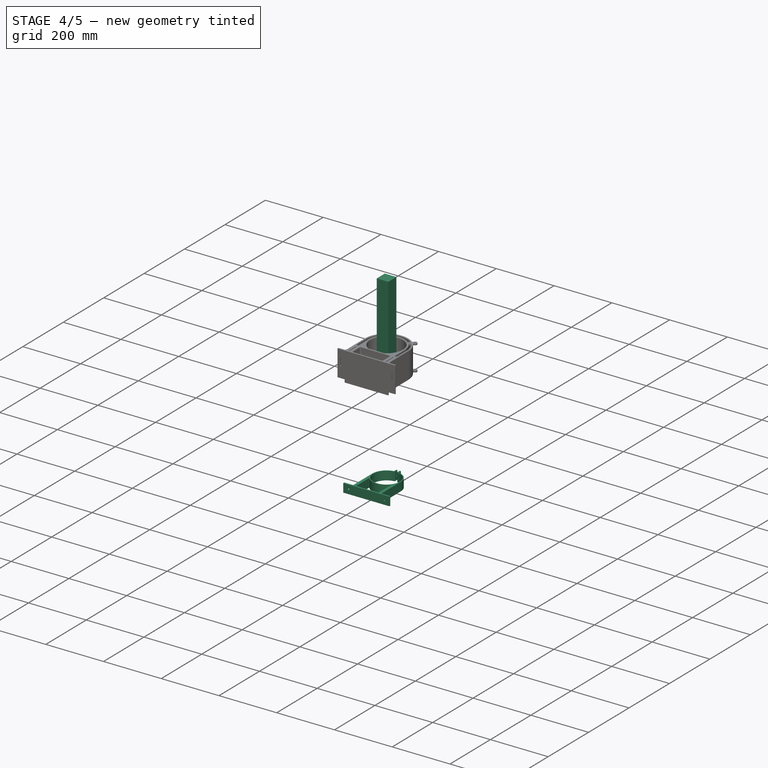
[diagram: stage 4 of 5 — iso view after this stage's code; geometry added in this stage tinted green]
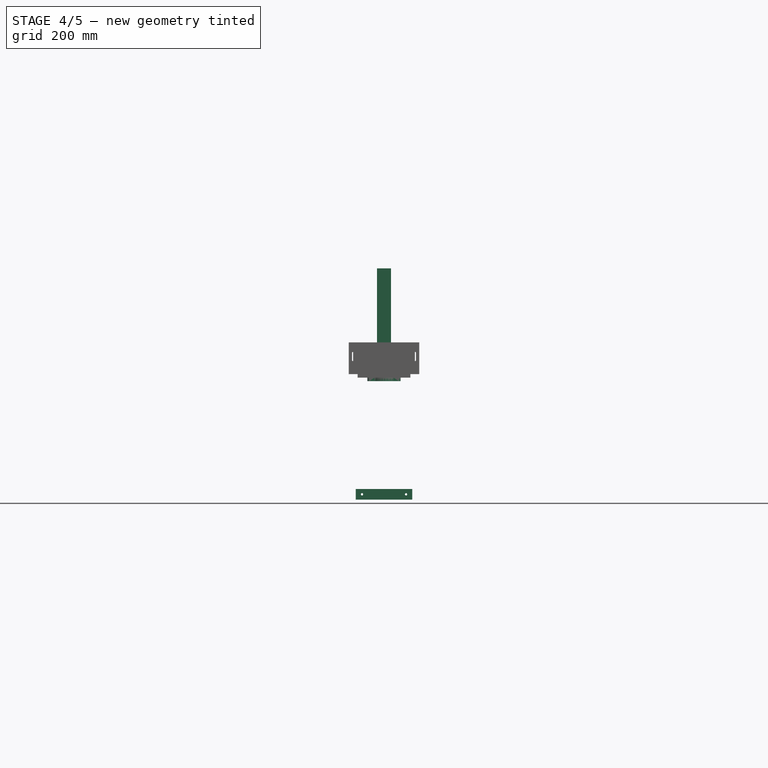
[diagram: stage 4 of 5 — front view after this stage's code; geometry added in this stage tinted green]
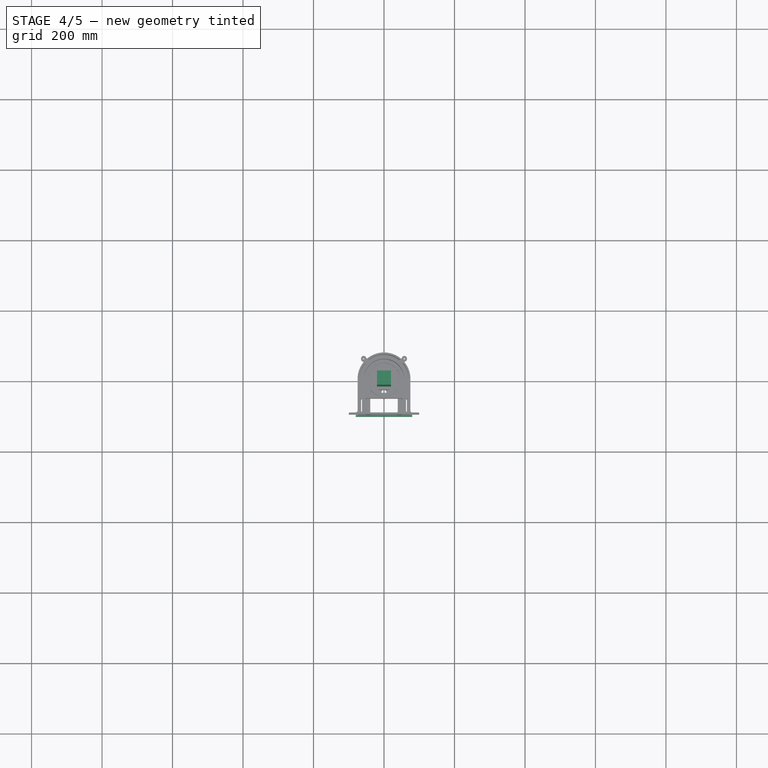
[diagram: stage 4 of 5 — top view after this stage's code; geometry added in this stage tinted green]
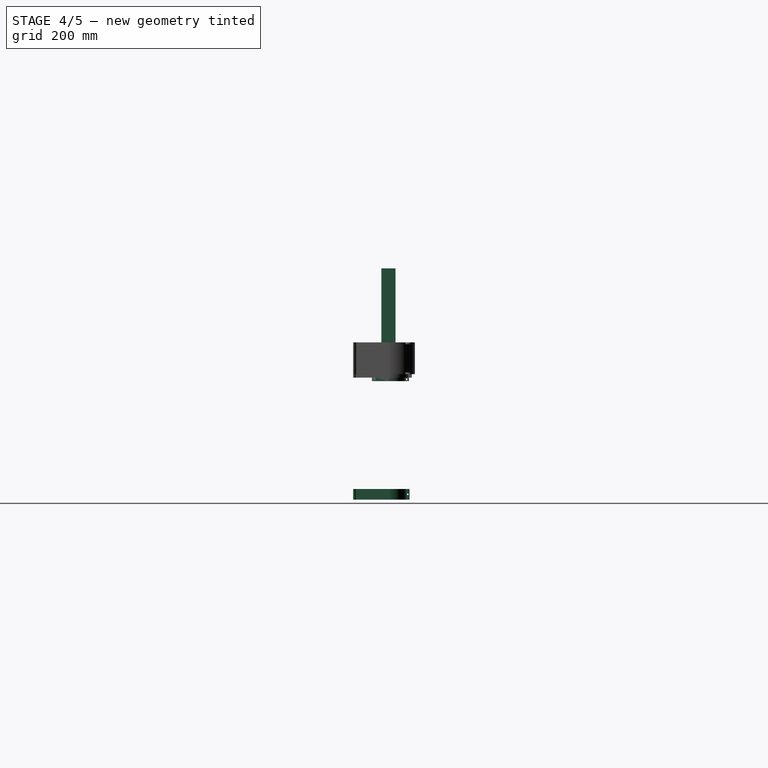
[diagram: stage 4 of 5 — right view after this stage's code; geometry added in this stage tinted green]
FEATURE [PartDesign::Body] Body022  label="extrusion010"
  Group = -> [Sketch072,Pad060]
  Origin = -> Origin022
  Placement = pos=(175,-135,-467) rot=(0,0,1;0rad)
  Tip = -> Pad060
FEATURE [Sketcher::SketchObject] Sketch078
  FullyConstrained = true
  MapMode = 5
  Support = -> [XY_Plane025]
  sketch-geometry (4):
    g0: LineSegment StartX=-20 StartY=20 StartZ=0 EndX=20 EndY=20 EndZ=0
    g1: LineSegment StartX=20 StartY=20 StartZ=0 EndX=20 EndY=-20 EndZ=0
    g2: LineSegment StartX=20 StartY=-20 StartZ=0 EndX=-20 EndY=-20 EndZ=0
    g3: LineSegment StartX=-20 StartY=-20 StartZ=0 EndX=-20 EndY=20 EndZ=0
  constraints (12):
    c: Coincident(g0,g1)
    c: Coincident(g1,g2)
    c: Coincident(g2,g3)
    c: Coincident(g3,g0)
    c: Horizontal(g0)
    c: Horizontal(g2)
    c: Vertical(g1)
    c: Vertical(g3)
    c: DistanceX(g-1,g1) = 20
    c: DistanceX(g0,g-1) = 20
    c: DistanceY(g-1,g0) = 20
    c: DistanceY(g3,g3) = 40
FEATURE [PartDesign::Pad] Pad065
  Direction = (1,1,1)
  Length = 300
  Length2 = 100
  Profile = -> Sketch078
  Type = 0
FEATURE [PartDesign::Body] Body025  label="extrusion012"
  Group = -> [Sketch078,Pad065]
  Origin = -> Origin025
  Placement = pos=(-146,-135,608) rot=(0,1,0;1.5708rad)
  Tip = -> Pad065
FEATURE [Sketcher::SketchObject] Sketch099
  FullyConstrained = true
  MapMode = 5
  Support = -> [XY_Plane030]
  sketch-geometry (4):
    g0: LineSegment StartX=-20 StartY=20 StartZ=0 EndX=20 EndY=20 EndZ=0
    g1: LineSegment StartX=20 StartY=20 StartZ=0 EndX=20 EndY=-20 EndZ=0
    g2: LineSegment StartX=20 StartY=-20 StartZ=0 EndX=-20 EndY=-20 EndZ=0
    g3: LineSegment StartX=-20 StartY=-20 StartZ=0 EndX=-20 EndY=20 EndZ=0
  constraints (12):
    c: Coincident(g0,g1)
    c: Coincident(g1,g2)
    c: Coincident(g2,g3)
    c: Coincident(g3,g0)
    c: Horizontal(g0)
    c: Horizontal(g2)
    c: Vertical(g1)
    c: Vertical(g3)
    c: DistanceX(g-1,g1) = 20
    c: DistanceX(g0,g-1) = 20
    c: DistanceY(g-1,g0) = 20
    c: DistanceY(g3,g3) = 40
FEATURE [PartDesign::Pad] Pad090
  Direction = (1,1,1)
  Length = 300
  Length2 = 100
  Profile = -> Sketch099
  Type = 0
FEATURE [Sketcher::SketchObject] Sketch135
  FullyConstrained = true
  MapMode = 5
  Support = -> [XY_Plane043]
  expr: Constraints[79] = <<parameters>>.ws_diam / 2 - 8
  expr: Constraints[78] = <<parameters>>.ws_diam / 2 - 8
  expr: Constraints[76] = <<parameters>>.m4
  expr: Constraints[75] = <<parameters>>.m4
  expr: Constraints[34] = <<parameters>>.support_inner_diam
  expr: Constraints[32] = <<parameters>>.ws_diam
  expr: Constraints[33] = <<parameters>>.ws_diam
  expr: Constraints[31] = <<parameters>>.ws_diam
  sketch-geometry (32):
    g0: ArcOfCircle CenterX=0 CenterY=0 CenterZ=0 NormalX=0 NormalY=0 NormalZ=1 AngleXU=0 Radius=46 StartAngle=1.71414 EndAngle=7.71063
    g1: ArcOfCircle CenterX=0 CenterY=0 CenterZ=0 NormalX=0 NormalY=0 NormalZ=1 AngleXU=0 Radius=47 StartAngle=1.77632 EndAngle=3.14159
    g2: ArcOfCircle CenterX=0 CenterY=0 CenterZ=0 NormalX=0 NormalY=0 NormalZ=1 AngleXU=0 Radius=47 StartAngle=0 EndAngle=1.36527
    g3: ArcOfCircle CenterX=0 CenterY=0 CenterZ=0 NormalX=0 NormalY=0 NormalZ=1 AngleXU=0 Radius=47 StartAngle=4.21158 EndAngle=5.2132
    g4: LineSegment StartX=-4 StartY=48.4974 StartZ=0 EndX=-4 EndY=56.9687 EndZ=0
    g5: LineSegment StartX=-8 StartY=47.9687 StartZ=0 EndX=-8 EndY=56.9687 EndZ=0
    g6: LineSegment StartX=4 StartY=48.4974 StartZ=0 EndX=4 EndY=56.9687 EndZ=0
    g7: LineSegment StartX=8 StartY=47.9687 StartZ=0 EndX=8 EndY=56.9687 EndZ=0
    g8: LineSegment StartX=-27.3679 StartY=-40 StartZ=0 EndX=-42 EndY=-40 EndZ=0
    g9: LineSegment StartX=-47 StartY=-35 StartZ=0 EndX=-47 EndY=0 EndZ=0
    g10: LineSegment StartX=27.3679 StartY=-40 StartZ=0 EndX=42 EndY=-40 EndZ=0
    g11: LineSegment StartX=47 StartY=-35 StartZ=0 EndX=47 EndY=0 EndZ=0
    g12: ArcOfCircle CenterX=7 CenterY=48.4974 CenterZ=0 NormalX=0 NormalY=0 NormalZ=1 AngleXU=0 Radius=3 StartAngle=3.14159 EndAngle=4.56904
    g13: ArcOfCircle CenterX=10 CenterY=47.9687 CenterZ=0 NormalX=0 NormalY=0 NormalZ=1 AngleXU=0 Radius=2 StartAngle=3.14159 EndAngle=4.50686
    g14: ArcOfCircle CenterX=-7 CenterY=48.4974 CenterZ=0 NormalX=0 NormalY=0 NormalZ=1 AngleXU=0 Radius=3 StartAngle=4.85574 EndAngle=6.28319
    g15: ArcOfCircle CenterX=-10 CenterY=47.9687 CenterZ=0 NormalX=0 NormalY=0 NormalZ=1 AngleXU=0 Radius=2 StartAngle=4.91791 EndAngle=6.28319
    g16: ArcOfCircle CenterX=-42 CenterY=-35 CenterZ=0 NormalX=0 NormalY=0 NormalZ=1 AngleXU=0 Radius=5 StartAngle=3.14159 EndAngle=4.71239
    g17: ArcOfCircle CenterX=-27.3679 CenterY=-50 CenterZ=0 NormalX=0 NormalY=0 NormalZ=1 AngleXU=0 Radius=10 StartAngle=1.06998 EndAngle=1.5708
    g18: ArcOfCircle CenterX=27.3679 CenterY=-50 CenterZ=0 NormalX=0 NormalY=0 NormalZ=1 AngleXU=0 Radius=10 StartAngle=1.5708 EndAngle=2.07161
    g19: ArcOfCircle CenterX=42 CenterY=-35 CenterZ=0 NormalX=0 NormalY=0 NormalZ=1 AngleXU=0 Radius=5 StartAngle=4.71239 EndAngle=6.28319
    g20: LineSegment StartX=-4 StartY=48.4974 StartZ=0 EndX=4 EndY=48.4974 EndZ=0
    g21: LineSegment StartX=-27.3679 StartY=-40 StartZ=0 EndX=27.3679 EndY=-40 EndZ=0
    g22: LineSegment StartX=-7 StartY=57.9687 StartZ=0 EndX=-5 EndY=57.9687 EndZ=0
    g23: LineSegment StartX=5 StartY=57.9687 StartZ=0 EndX=7 EndY=57.9687 EndZ=0
    g24: ArcOfCircle CenterX=-7 CenterY=56.9687 CenterZ=0 NormalX=0 NormalY=0 NormalZ=1 AngleXU=0 Radius=1 StartAngle=1.5708 EndAngle=3.14159
    g25: ArcOfCircle CenterX=-5 CenterY=56.9687 CenterZ=0 NormalX=0 NormalY=0 NormalZ=1 AngleXU=0 Radius=1 StartAngle=3e-15 EndAngle=1.5708
    g26: ArcOfCircle CenterX=5 CenterY=56.9687 CenterZ=0 NormalX=0 NormalY=0 NormalZ=1 AngleXU=0 Radius=1 StartAngle=1.5708 EndAngle=3.14159
    g27: ArcOfCircle CenterX=7 CenterY=56.9687 CenterZ=0 NormalX=0 NormalY=0 NormalZ=1 AngleXU=0 Radius=1 StartAngle=-9e-16 EndAngle=1.5708
    g28: LineSegment StartX=-4 StartY=56.9687 StartZ=0 EndX=4 EndY=56.9687 EndZ=0
    g29: Circle CenterX=-39 CenterY=-30 CenterZ=0 NormalX=0 NormalY=0 NormalZ=1 AngleXU=0 Radius=2.25
    g30: Circle CenterX=39 CenterY=-30 CenterZ=0 NormalX=0 NormalY=0 NormalZ=1 AngleXU=0 Radius=2.25
    g31: LineSegment StartX=-39 StartY=-30 StartZ=0 EndX=39 EndY=-30 EndZ=0
  constraints (80):
    c: Coincident(g0,g-1)
    c: Coincident(g1,g0)
    c: PointOnObject(g1,g-1)
    c: Coincident(g2,g0)
    c: PointOnObject(g2,g-1)
    c: Coincident(g3,g0)
    c: Vertical(g4)
    c: Vertical(g7)
    c: Vertical(g5)
    c: Horizontal(g8)
    c: Coincident(g9,g1)
    c: Vertical(g9)
    c: Horizontal(g10)
    c: Coincident(g11,g2)
    c: Vertical(g11)
    c: Tangent(g0,g12) = 1.5708
    c: Tangent(g6,g12) = 1.5708
    c: Tangent(g2,g13) = 1.5708
    c: Tangent(g7,g13) = 1.5708
    c: Tangent(g0,g14) = 1.5708
    c: Tangent(g4,g14) = -1.5708
    c: Tangent(g1,g15) = 1.5708
    c: Tangent(g5,g15) = -1.5708
    c: Tangent(g8,g16) = 1.5708
    c: Tangent(g9,g16) = 1.5708
    c: Tangent(g8,g17) = -1.5708
    c: Tangent(g3,g17) = 1.5708
    c: Tangent(g3,g18) = 1.5708
    c: Tangent(g10,g18) = 1.5708
    c: Tangent(g10,g19) = -1.5708
    c: Tangent(g11,g19) = -1.5708
    c: Diameter(g2) = 94
    c: Diameter(g1) = 94
    c: Diameter(g3) = 94
    c: Diameter(g0) = 92
    c: Vertical(g6)
    c: Coincident(g20,g4)
    c: Coincident(g20,g6)
    c: Horizontal(g20)
    c: Coincident(g21,g8)
    c: Coincident(g21,g10)
    c: Horizontal(g23)
    c: Horizontal(g22)
    c: Tangent(g5,g24) = 1.5708
    c: Tangent(g22,g24) = 1.5708
    c: Tangent(g4,g25) = -1.5708
    c: Tangent(g22,g25) = 1.5708
    c: Tangent(g6,g26) = 1.5708
    c: Tangent(g23,g26) = 1.5708
    c: Tangent(g7,g27) = -1.5708
    c: Tangent(g23,g27) = 1.5708
    c: DistanceX(g6,g7) = 4
    c: DistanceX(g5,g4) = 4
    c: Coincident(g28,g4)
    c: Coincident(g28,g6)
    c: Horizontal(g28)
    c: DistanceX(g28,g28) = 8
    c: DistanceX(g4,g0) = 4
    c: Radius(g27) = 1
    c: Equal(g27,g26)
    c: Equal(g27,g25)
    c: Equal(g26,g24)
    c: Radius(g12) = 3
    c: Radius(g13) = 2
    c: Equal(g15,g13)
    c: Radius(g19) = 5
    c: Radius(g18) = 10
    c: Equal(g19,g16)
    c: Equal(g17,g18)
    c: DistanceY(g8,g1) = 40
    c: DistanceY(g5,g22) = 10
    c: Horizontal(g21)
    c: Coincident(g31,g29)
    c: Coincident(g31,g30)
    c: Horizontal(g31)
    c: Diameter(g29) = 4.5
    c: Diameter(g30) = 4.5
    c: DistanceY(g29,g0) = 30
    c: DistanceX(g29,g0) = 39
    c: DistanceX(g0,g30) = 39
FEATURE [PartDesign::Pad] Pad106
  Direction = (1,1,1)
  Length = 10
  Length2 = 100
  Profile = -> Sketch135
  Type = 0
FEATURE [Sketcher::SketchObject] Sketch136
  FullyConstrained = true
  MapMode = 5
  Placement = pos=(0,0,10) rot=(0,0,1;0rad)
  Support = -> [Pad106]
  expr: Constraints[73] = <<parameters>>.ws_diam / 2 - 8
  expr: Constraints[72] = <<parameters>>.ws_diam / 2 - 8
  expr: Constraints[71] = <<parameters>>.m4
  expr: Constraints[70] = <<parameters>>.m4
  expr: Constraints[53] = <<parameters>>.inner_diam
  expr: Constraints[52] = <<parameters>>.ws_diam
  expr: Constraints[51] = <<parameters>>.ws_diam
  expr: Constraints[50] = <<parameters>>.ws_diam
  sketch-geometry (31):
    g0: ArcOfCircle CenterX=0 CenterY=0 CenterZ=0 NormalX=0 NormalY=0 NormalZ=1 AngleXU=0 Radius=38 StartAngle=1.74237 EndAngle=7.68241
    g1: ArcOfCircle CenterX=0 CenterY=0 CenterZ=0 NormalX=0 NormalY=0 NormalZ=1 AngleXU=0 Radius=47 StartAngle=1.77632 EndAngle=3.14159
    g2: ArcOfCircle CenterX=0 CenterY=0 CenterZ=0 NormalX=0 NormalY=0 NormalZ=1 AngleXU=0 Radius=47 StartAngle=0 EndAngle=1.36527
    g3: ArcOfCircle CenterX=0 CenterY=0 CenterZ=0 NormalX=0 NormalY=0 NormalZ=1 AngleXU=0 Radius=47 StartAngle=4.21158 EndAngle=5.2132
    g4: LineSegment StartX=-8 StartY=47.9687 StartZ=0 EndX=-8 EndY=56.9687 EndZ=0
    g5: LineSegment StartX=-7 StartY=57.9687 StartZ=0 EndX=-5 EndY=57.9687 EndZ=0
    g6: LineSegment StartX=-4 StartY=56.9687 StartZ=0 EndX=-4 EndY=40.398 EndZ=0
    g7: LineSegment StartX=4 StartY=40.398 StartZ=0 EndX=4 EndY=56.9687 EndZ=0
    g8: LineSegment StartX=8 StartY=47.9687 StartZ=0 EndX=8 EndY=56.9687 EndZ=0
    g9: LineSegment StartX=7 StartY=57.9687 StartZ=0 EndX=5 EndY=57.9687 EndZ=0
    g10: LineSegment StartX=-47 StartY=5.8e-15 StartZ=0 EndX=-47 EndY=-35 EndZ=0
    g11: LineSegment StartX=-42 StartY=-40 StartZ=0 EndX=-27.3679 EndY=-40 EndZ=0
    g12: LineSegment StartX=27.3679 StartY=-40 StartZ=0 EndX=42 EndY=-40 EndZ=0
    g13: LineSegment StartX=47 StartY=-35 StartZ=0 EndX=47 EndY=0 EndZ=0
    g14: ArcOfCircle CenterX=-7 CenterY=40.398 CenterZ=0 NormalX=0 NormalY=0 NormalZ=1 AngleXU=0 Radius=3 StartAngle=4.88396 EndAngle=6.28319
    g15: ArcOfCircle CenterX=-10 CenterY=47.9687 CenterZ=0 NormalX=0 NormalY=0 NormalZ=1 AngleXU=0 Radius=2 StartAngle=4.91791 EndAngle=6.28319
    g16: ArcOfCircle CenterX=-7 CenterY=56.9687 CenterZ=0 NormalX=0 NormalY=0 NormalZ=1 AngleXU=0 Radius=1 StartAngle=1.5708 EndAngle=3.14159
    g17: ArcOfCircle CenterX=-5 CenterY=56.9687 CenterZ=0 NormalX=0 NormalY=0 NormalZ=1 AngleXU=0 Radius=1 StartAngle=3.1e-15 EndAngle=1.5708
    g18: ArcOfCircle CenterX=5 CenterY=56.9687 CenterZ=0 NormalX=0 NormalY=0 NormalZ=1 AngleXU=0 Radius=1 StartAngle=1.5708 EndAngle=3.14159
    g19: ArcOfCircle CenterX=7 CenterY=56.9687 CenterZ=0 NormalX=0 NormalY=0 NormalZ=1 AngleXU=0 Radius=1 StartAngle=1.3e-15 EndAngle=1.5708
    g20: ArcOfCircle CenterX=10 CenterY=47.9687 CenterZ=0 NormalX=0 NormalY=0 NormalZ=1 AngleXU=0 Radius=2 StartAngle=3.14159 EndAngle=4.50686
    g21: ArcOfCircle CenterX=7 CenterY=40.398 CenterZ=0 NormalX=0 NormalY=0 NormalZ=1 AngleXU=0 Radius=3 StartAngle=3.14159 EndAngle=4.54082
    g22: ArcOfCircle CenterX=42 CenterY=-35 CenterZ=0 NormalX=0 NormalY=0 NormalZ=1 AngleXU=0 Radius=5 StartAngle=4.71239 EndAngle=6.28319
    g23: ArcOfCircle CenterX=27.3679 CenterY=-50 CenterZ=0 NormalX=0 NormalY=0 NormalZ=1 AngleXU=0 Radius=10 StartAngle=1.5708 EndAngle=2.07161
    g24: ArcOfCircle CenterX=-27.3679 CenterY=-50 CenterZ=0 NormalX=0 NormalY=0 NormalZ=1 AngleXU=0 Radius=10 StartAngle=1.06998 EndAngle=1.5708
    g25: ArcOfCircle CenterX=-42 CenterY=-35 CenterZ=0 NormalX=0 NormalY=0 NormalZ=1 AngleXU=0 Radius=5 StartAngle=3.14159 EndAngle=4.71239
    g26: LineSegment StartX=-4 StartY=56.9687 StartZ=0 EndX=4 EndY=56.9687 EndZ=0
    g27: LineSegment StartX=-27.3679 StartY=-40 StartZ=0 EndX=27.3679 EndY=-40 EndZ=0
    g28: Circle CenterX=-39 CenterY=-30 CenterZ=0 NormalX=0 NormalY=0 NormalZ=1 AngleXU=0 Radius=2.25
    g29: Circle CenterX=39 CenterY=-30 CenterZ=0 NormalX=0 NormalY=0 NormalZ=1 AngleXU=0 Radius=2.25
    g30: LineSegment StartX=-39 StartY=-30 StartZ=0 EndX=39 EndY=-30 EndZ=0
  constraints (78):
    c: Coincident(g0,g-1)
    c: Coincident(g1,g0)
    c: PointOnObject(g1,g-1)
    c: Coincident(g2,g0)
    c: PointOnObject(g2,g-1)
    c: Coincident(g3,g0)
    c: Vertical(g4)
    c: Horizontal(g5)
    c: Vertical(g7)
    c: Vertical(g8)
    c: Horizontal(g9)
    c: Vertical(g6)
    c: Coincident(g10,g1)
    c: Vertical(g10)
    c: Horizontal(g11)
    c: Horizontal(g12)
    c: Coincident(g13,g2)
    c: Vertical(g13)
    c: Tangent(g0,g14) = 1.5708
    c: Tangent(g6,g14) = 1.5708
    c: Tangent(g1,g15) = 1.5708
    c: Tangent(g4,g15) = -1.5708
    c: Tangent(g4,g16) = 1.5708
    c: Tangent(g5,g16) = 1.5708
    c: Tangent(g5,g17) = 1.5708
    c: Tangent(g6,g17) = 1.5708
    c: Tangent(g7,g18) = 1.5708
    c: Tangent(g9,g18) = -1.5708
    c: Tangent(g8,g19) = -1.5708
    c: Tangent(g9,g19) = -1.5708
    c: Tangent(g2,g20) = 1.5708
    c: Tangent(g8,g20) = 1.5708
    c: Tangent(g0,g21) = 1.5708
    c: Tangent(g7,g21) = 1.5708
    c: Tangent(g12,g22) = -1.5708
    c: Tangent(g13,g22) = -1.5708
    c: Tangent(g12,g23) = 1.5708
    c: Tangent(g3,g23) = 1.5708
    c: Tangent(g3,g24) = 1.5708
    c: Tangent(g11,g24) = 1.5708
    c: Tangent(g11,g25) = -1.5708
    c: Tangent(g10,g25) = -1.5708
    c: Radius(g19) = 1
    c: Equal(g19,g18)
    c: Equal(g19,g17)
    c: Equal(g19,g16)
    c: Radius(g20) = 2
    c: Radius(g21) = 3
    c: Equal(g21,g14)
    c: Equal(g20,g15)
    c: Diameter(g2) = 94
    c: Diameter(g1) = 94
    c: Diameter(g3) = 94
    c: Diameter(g0) = 76
    c: DistanceX(g4,g6) = 4
    c: DistanceX(g7,g8) = 4
    c: Coincident(g26,g6)
    c: Coincident(g26,g7)
    c: Horizontal(g26)
    c: DistanceX(g26,g26) = 8
    c: DistanceX(g6,g0) = 4
    c: DistanceY(g8,g9) = 10
    c: Radius(g22) = 5
    c: Radius(g23) = 10
    c: Equal(g25,g22)
    c: Equal(g23,g24)
    c: DistanceY(g11,g1) = 40
    c: Coincident(g27,g11)
    c: Coincident(g27,g12)
    c: Horizontal(g27)
    c: Diameter(g28) = 4.5
    c: Diameter(g29) = 4.5
    c: DistanceX(g28,g0) = 39
    c: DistanceX(g0,g29) = 39
    c: Coincident(g30,g28)
    c: Coincident(g30,g29)
    c: Horizontal(g30)
    c: DistanceY(g28,g0) = 30
FEATURE [PartDesign::Pad] Pad107
  BaseFeature = -> Pad106
  Direction = (1,1,1)
  Length = 5
  Length2 = 100
  Profile = -> Sketch136
  Type = 0
FEATURE [Sketcher::SketchObject] Sketch137
  FullyConstrained = true
  MapMode = 5
  Placement = pos=(-8,0,0) rot=(0.57735,-0.57735,-0.57735;2.0944rad)
  Support = -> [Pad107]
  expr: Constraints[1] = <<parameters>>.ws_diam / 2 + 5
  expr: Constraints[0] = <<parameters>>.m4
  sketch-geometry (1):
    g0: Circle CenterX=-52 CenterY=5 CenterZ=0 NormalX=0 NormalY=0 NormalZ=1 AngleXU=0 Radius=2.25
  constraints (3):
    c: Diameter(g0) = 4.5
    c: DistanceX(g0,g-1) = 52
    c: DistanceY(g-1,g0) = 5
FEATURE [PartDesign::Pocket] Pocket017
  BaseFeature = -> Pad107
  Length = 5
  Length2 = 100
  Profile = -> Sketch137
  Type = 1
FEATURE [PartDesign::Body] Body043  label="windowsupport002"
  Group = -> [Sketch135,Pad106,Sketch136,Pad107,Sketch137,Pocket017]
  Origin = -> Origin043
  Placement = pos=(0,0,-25) rot=(0,0,1;0rad)
  Tip = -> Pocket017
FEATURE [PartDesign::FeatureBase] Clone004
  BaseFeature = -> Body043
  Placement = pos=(0,0,-20) rot=(0,0,1;0rad)
FEATURE [PartDesign::Body] Body039  label="windowsupport001"
  Group = -> [Sketch124,Pad102,Sketch125,Pad103,Sketch326,Pad,Sketch327,Pocket058,Sketch328,Pocket059]
  Origin = -> Origin039
  Tip = -> Pocket059
FEATURE [PartDesign::FeatureBase] Clone003
  BaseFeature = -> Body039
FEATURE [PartDesign::Body] Body035  label="pipesupport001"
  Group = -> [Sketch121,Pad101,Sketch329,Pocket060,Sketch330,Pocket061]
  Origin = -> Origin035
  Placement = pos=(0,0,-356) rot=(0,0,1;0rad)
  Tip = -> Pocket061
FEATURE [PartDesign::FeatureBase] Clone
  BaseFeature = -> Body035
FEATURE [PartDesign::Body] Body036  label="pipesupport002"
  BaseFeature = -> Body035
  Group = -> [Clone]
  Origin = -> Origin036
  Placement = pos=(0,0,336) rot=(0,0,1;0rad)
  Tip = -> Clone
FEATURE [PartDesign::FeatureBase] Clone001
  BaseFeature = -> Body035
  Placement = pos=(0,0,-356) rot=(0,0,1;0rad)
FEATURE [PartDesign::Body] Body037  label="pipesupport003"
  BaseFeature = -> Body035
  Group = -> [Clone001]
  Origin = -> Origin037
  Placement = pos=(0,0,950) rot=(0,0,1;0rad)
  Tip = -> Clone001
FEATURE [PartDesign::FeatureBase] Clone002
  BaseFeature = -> Body035
  Placement = pos=(0,0,-356) rot=(0,0,1;0rad)
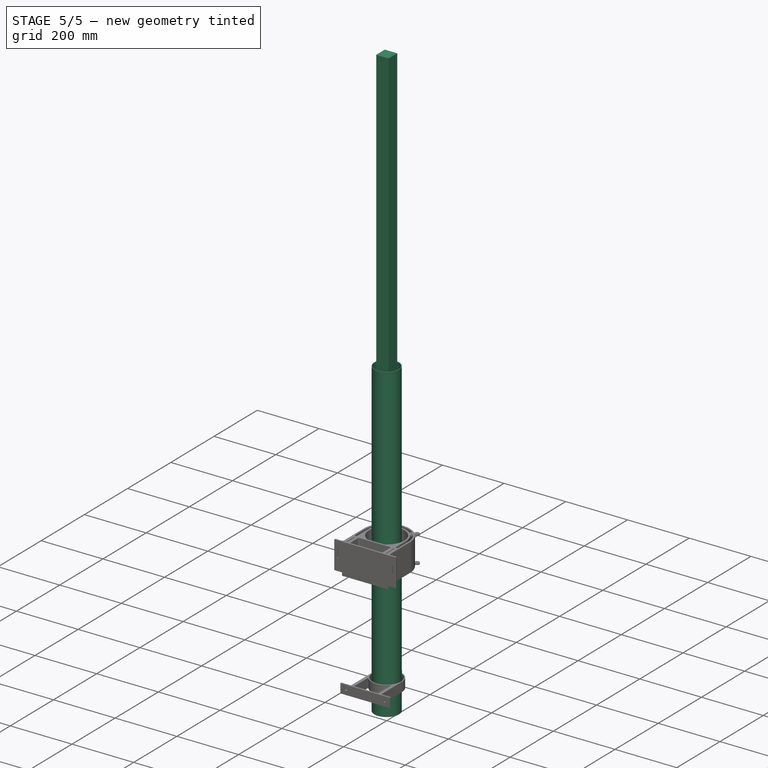
[diagram: stage 5 of 5 — iso view after this stage's code; geometry added in this stage tinted green]
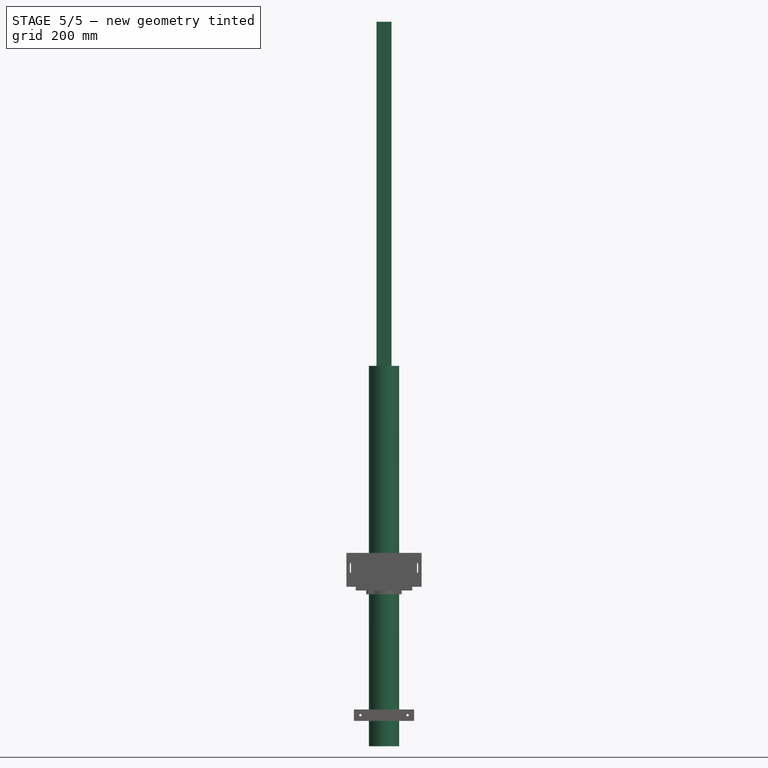
[diagram: stage 5 of 5 — front view after this stage's code; geometry added in this stage tinted green]
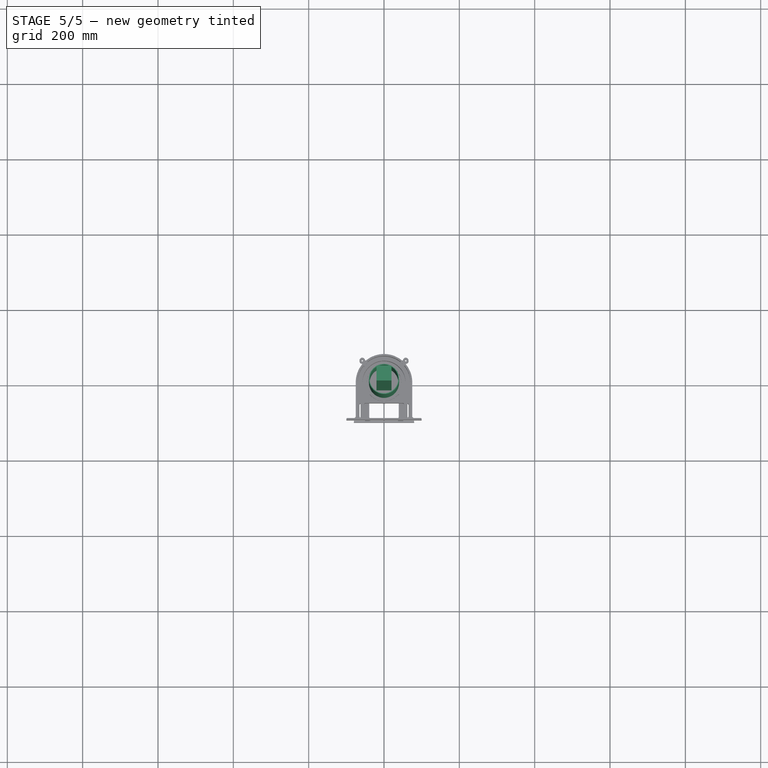
[diagram: stage 5 of 5 — top view after this stage's code; geometry added in this stage tinted green]
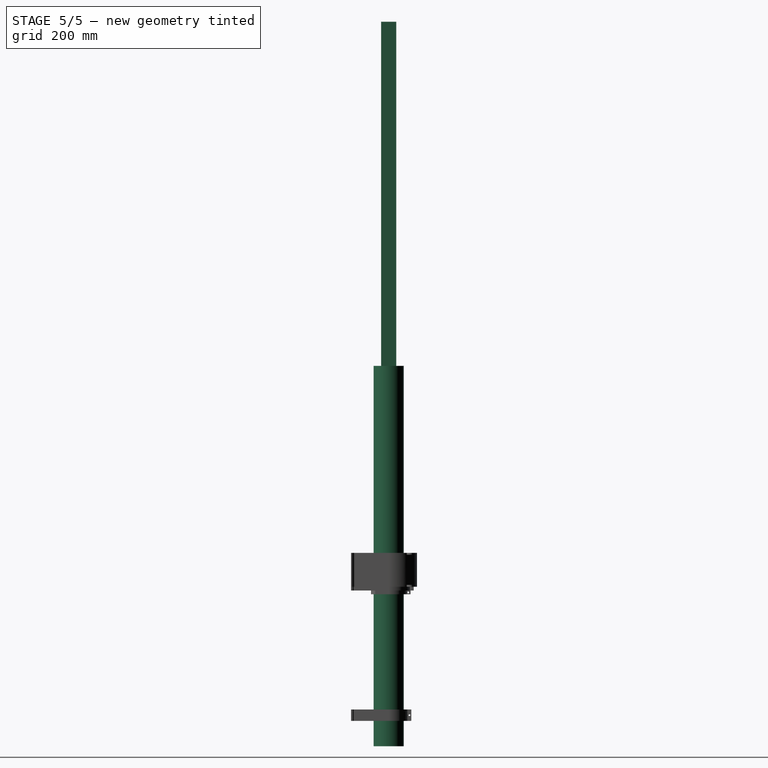
[diagram: stage 5 of 5 — right view after this stage's code; geometry added in this stage tinted green]
FEATURE [Spreadsheet::Sheet] Spreadsheet  label="parameters"
  cells = A1=wall_thickness; B1(wall_thickness)=2; A2=length; B2(length)=6; A4=pipe diam; B4(pipe_diam)=80; A6=inner diam; B6(inner_diam)=76; A7=support_inner_diam; B7(support_inner_diam)=92; A8=support_outer_diam; B8(support_outer_diam)=98; A10=window_support_thickness; B10(window_support_thickness)=5; A11=window_support_length; B11(window_support_length)=60; A13=top_to_w2; B13(top_to_w2_length)=423.5; A15=w2_to_w3_length; B15(w2_to_w3_length)=124; A17=w3_to_end_length; B17(w3_to_3nd_length)==1024 - 430 - 7.5; A19=end_to_sample_length; B19(end_to_sample_length)==1181 - 1024; A21=ws_outer_diam; B21(ws_diam)=94; D21=top diam; E21(top_diam)=110; A22=window_diam; B22(window_diam)=82; D22=top window diam; E22(top_window_diam)=102; A26=support_thickness; B26(support_thickness)=30; D26=support_length; E26(support_length)=100; A27=support_arm_thickness; B27(support_arm_thickness)=10; A28=support_arm_length; B28(support_arm_length)=50; A30=m8; B30(m8)=8.199999999999999; A31=m4; B31(m4)=4.5; A34=trans stage big hole; B34(trans_stage_hole_big)=4.4; D34=screw_size; E34(screw_size)=15; A35=trans hole distace big; B35(big_trans_hole_distance)=25.05; D35=sample_diam; E35(sample_diam)=125; A36=trans small hole; B36(trans_small_hole)=3.4; A37=trans hole distance small; B37(small_trans_hole_distance)=30; D37=trans distance top; E37(trans_distance_top)=10
FEATURE [Sketcher::SketchObject] Sketch032
  FullyConstrained = true
  MapMode = 5
  Support = -> [XY_Plane005]
  expr: Constraints[3] = <<parameters>>.pipe_diam
  expr: Constraints[2] = <<parameters>>.inner_diam
  sketch-geometry (2):
    g0: Circle CenterX=0 CenterY=0 CenterZ=0 NormalX=0 NormalY=0 NormalZ=1 AngleXU=0 Radius=38
    g1: Circle CenterX=0 CenterY=0 CenterZ=0 NormalX=0 NormalY=0 NormalZ=1 AngleXU=0 Radius=40
  constraints (4):
    c: Coincident(g0,g-1)
    c: Coincident(g1,g0)
    c: Diameter(g0) = 76
    c: Diameter(g1) = 80
FEATURE [PartDesign::Pad] Pad025
  Direction = (1,1,1)
  Length = 124
  Length2 = 100
  Profile = -> Sketch032
  Type = 0
  expr: Length = <<parameters>>.w2_to_w3_length
FEATURE [PartDesign::Body] Body005  label="w2_to_w3_pipe"
  Group = -> [Sketch032,Pad025]
  Origin = -> Origin005
  Placement = pos=(0,0,16) rot=(0,0,1;0rad)
  Tip = -> Pad025
FEATURE [Sketcher::SketchObject] Sketch039
  FullyConstrained = true
  MapMode = 5
  Support = -> [XY_Plane007]
  expr: Constraints[3] = <<parameters>>.inner_diam
  expr: Constraints[2] = <<parameters>>.pipe_diam
  sketch-geometry (2):
    g0: Circle CenterX=0 CenterY=0 CenterZ=0 NormalX=0 NormalY=0 NormalZ=1 AngleXU=0 Radius=38
    g1: Circle CenterX=0 CenterY=0 CenterZ=0 NormalX=0 NormalY=0 NormalZ=1 AngleXU=0 Radius=40
  constraints (4):
    c: Coincident(g0,g-1)
    c: Coincident(g1,g0)
    c: Diameter(g1) = 80
    c: Diameter(g0) = 76
FEATURE [PartDesign::Pad] Pad031
  Direction = (1,1,1)
  Length = 586.5
  Length2 = 100
  Profile = -> Sketch039
  Type = 0
  expr: Length = <<parameters>>.w3_to_3nd_length
FEATURE [PartDesign::Body] Body007  label="w3_to_end"
  Group = -> [Sketch039,Pad031]
  Origin = -> Origin007
  Placement = pos=(0,0,156) rot=(0,0,1;0rad)
  Tip = -> Pad031
FEATURE [Sketcher::SketchObject] Sketch040
  FullyConstrained = true
  MapMode = 5
  Support = -> [XY_Plane008]
  expr: Constraints[3] = <<parameters>>.inner_diam
  expr: Constraints[2] = <<parameters>>.pipe_diam
  sketch-geometry (2):
    g0: Circle CenterX=0 CenterY=0 CenterZ=0 NormalX=0 NormalY=0 NormalZ=1 AngleXU=0 Radius=38
    g1: Circle CenterX=0 CenterY=0 CenterZ=0 NormalX=0 NormalY=0 NormalZ=1 AngleXU=0 Radius=40
  constraints (5):
    c: PointOnObject(g0,g-2)
    c: PointOnObject(g1,g-1)
    c: Diameter(g1) = 80
    c: Diameter(g0) = 76
    c: Coincident(g0,g1)
FEATURE [PartDesign::Pad] Pad032
  Direction = (1,1,1)
  Length = 157
  Length2 = 100
  Profile = -> Sketch040
  Type = 0
  expr: Length = <<parameters>>.end_to_sample_length
FEATURE [PartDesign::Body] Body008  label="end_to_sample"
  Group = -> [Sketch040,Pad032]
  Origin = -> Origin008
  Placement = pos=(0,0,743) rot=(0,0,1;0rad)
  Tip = -> Pad032
FEATURE [Sketcher::SketchObject] Sketch041
  FullyConstrained = true
  MapMode = 5
  Support = -> [XY_Plane009]
  expr: Constraints[3] = <<parameters>>.inner_diam
  expr: Constraints[2] = <<parameters>>.pipe_diam
  sketch-geometry (2):
    g0: Circle CenterX=0 CenterY=0 CenterZ=0 NormalX=0 NormalY=0 NormalZ=1 AngleXU=0 Radius=38
    g1: Circle CenterX=0 CenterY=0 CenterZ=0 NormalX=0 NormalY=0 NormalZ=1 AngleXU=0 Radius=40
  constraints (4):
    c: Coincident(g0,g-1)
    c: Coincident(g1,g0)
    c: Diameter(g1) = 80
    c: Diameter(g0) = 76
FEATURE [PartDesign::Pad] Pad033
  Direction = (1,1,1)
  Length = 423.5
  Length2 = 100
  Profile = -> Sketch041
  Reversed = true
  Type = 0
  expr: Length = <<parameters>>.top_to_w2_length
FEATURE [PartDesign::Body] Body009  label="top_to_w2"
  Group = -> [Sketch041,Pad033]
  Origin = -> Origin009
  Tip = -> Pad033
FEATURE [Sketcher::SketchObject] Sketch049
  FullyConstrained = true
  MapMode = 5
  Support = -> [XY_Plane011]
  sketch-geometry (4):
    g0: LineSegment StartX=-20 StartY=20 StartZ=0 EndX=20 EndY=20 EndZ=0
    g1: LineSegment StartX=20 StartY=20 StartZ=0 EndX=20 EndY=-20 EndZ=0
    g2: LineSegment StartX=20 StartY=-20 StartZ=0 EndX=-20 EndY=-20 EndZ=0
    g3: LineSegment StartX=-20 StartY=-20 StartZ=0 EndX=-20 EndY=20 EndZ=0
  constraints (12):
    c: Coincident(g0,g1)
    c: Coincident(g1,g2)
    c: Coincident(g2,g3)
    c: Coincident(g3,g0)
    c: Horizontal(g0)
    c: Horizontal(g2)
    c: Vertical(g1)
    c: Vertical(g3)
    c: DistanceX(g-1,g1) = 20
    c: DistanceX(g0,g-1) = 20
    c: DistanceY(g-1,g0) = 20
    c: DistanceY(g3,g3) = 40
FEATURE [PartDesign::Pad] Pad039
  Direction = (1,1,1)
  Length = 1500
  Length2 = 100
  Profile = -> Sketch049
  Type = 0
FEATURE [PartDesign::Body] Body011  label="extrusion1"
  Group = -> [Sketch049,Pad039]
  Origin = -> Origin011
  Placement = pos=(-166,-135,-467) rot=(0,0,1;0rad)
  Tip = -> Pad039
FEATURE [Sketcher::SketchObject] Sketch050
  FullyConstrained = true
  MapMode = 5
  Support = -> [XY_Plane012]
  sketch-geometry (4):
    g0: LineSegment StartX=-20 StartY=20 StartZ=0 EndX=20 EndY=20 EndZ=0
    g1: LineSegment StartX=20 StartY=20 StartZ=0 EndX=20 EndY=-20 EndZ=0
    g2: LineSegment StartX=20 StartY=-20 StartZ=0 EndX=-20 EndY=-20 EndZ=0
    g3: LineSegment StartX=-20 StartY=-20 StartZ=0 EndX=-20 EndY=20 EndZ=0
  constraints (12):
    c: Coincident(g0,g1)
    c: Coincident(g1,g2)
    c: Coincident(g2,g3)
    c: Coincident(g3,g0)
    c: Horizontal(g0)
    c: Horizontal(g2)
    c: Vertical(g1)
    c: Vertical(g3)
    c: DistanceX(g-1,g1) = 20
    c: DistanceX(g0,g-1) = 20
    c: DistanceY(g-1,g0) = 20
    c: DistanceY(g3,g3) = 40
FEATURE [PartDesign::Pad] Pad040
  Direction = (1,1,1)
  Length = 300
  Length2 = 100
  Profile = -> Sketch050
  Type = 0
FEATURE [PartDesign::Body] Body012  label="extrusion002"
  Group = -> [Sketch050,Pad040]
  Origin = -> Origin012
  Placement = pos=(-146,-135,350) rot=(0,1,0;1.5708rad)
  Tip = -> Pad040
FEATURE [Sketcher::SketchObject] Sketch053
  FullyConstrained = true
  MapMode = 5
  Support = -> [XY_Plane013]
  sketch-geometry (4):
    g0: LineSegment StartX=-20 StartY=20 StartZ=0 EndX=20 EndY=20 EndZ=0
    g1: LineSegment StartX=20 StartY=20 StartZ=0 EndX=20 EndY=-20 EndZ=0
    g2: LineSegment StartX=20 StartY=-20 StartZ=0 EndX=-20 EndY=-20 EndZ=0
    g3: LineSegment StartX=-20 StartY=-20 StartZ=0 EndX=-20 EndY=20 EndZ=0
  constraints (12):
    c: Coincident(g0,g1)
    c: Coincident(g1,g2)
    c: Coincident(g2,g3)
    c: Coincident(g3,g0)
    c: Horizontal(g0)
    c: Horizontal(g2)
    c: Vertical(g1)
    c: Vertical(g3)
    c: DistanceX(g-1,g1) = 20
    c: DistanceX(g0,g-1) = 20
    c: DistanceY(g-1,g0) = 20
    c: DistanceY(g3,g3) = 40
FEATURE [PartDesign::Pad] Pad043
  Direction = (1,1,1)
  Length = 300
  Length2 = 100
  Profile = -> Sketch053
  Type = 0
FEATURE [PartDesign::Body] Body013  label="extrusion003"
  Group = -> [Sketch053,Pad043]
  Origin = -> Origin013
  Placement = pos=(-146,-135,150) rot=(0,1,0;1.5708rad)
  Tip = -> Pad043
FEATURE [Sketcher::SketchObject] Sketch054
  FullyConstrained = true
  MapMode = 5
  Support = -> [XY_Plane014]
  sketch-geometry (4):
    g0: LineSegment StartX=-20 StartY=20 StartZ=0 EndX=20 EndY=20 EndZ=0
    g1: LineSegment StartX=20 StartY=20 StartZ=0 EndX=20 EndY=-20 EndZ=0
    g2: LineSegment StartX=20 StartY=-20 StartZ=0 EndX=-20 EndY=-20 EndZ=0
    g3: LineSegment StartX=-20 StartY=-20 StartZ=0 EndX=-20 EndY=20 EndZ=0
  constraints (12):
    c: Coincident(g0,g1)
    c: Coincident(g1,g2)
    c: Coincident(g2,g3)
    c: Coincident(g3,g0)
    c: Horizontal(g0)
    c: Horizontal(g2)
    c: Vertical(g1)
    c: Vertical(g3)
    c: DistanceX(g-1,g1) = 20
    c: DistanceX(g0,g-1) = 20
    c: DistanceY(g-1,g0) = 20
    c: DistanceY(g3,g3) = 40
FEATURE [PartDesign::Pad] Pad044
  Direction = (1,1,1)
  Length = 300
  Length2 = 100
  Profile = -> Sketch054
  Type = 0
FEATURE [PartDesign::Body] Body014  label="extrusion004"
  Group = -> [Sketch054,Pad044]
  Origin = -> Origin014
  Placement = pos=(-146,-135,6) rot=(0,1,0;1.5708rad)
  Tip = -> Pad044
FEATURE [Sketcher::SketchObject] Sketch067
  FullyConstrained = true
  MapMode = 5
  Support = -> [XY_Plane017]
  sketch-geometry (4):
    g0: LineSegment StartX=-20 StartY=20 StartZ=0 EndX=20 EndY=20 EndZ=0
    g1: LineSegment StartX=20 StartY=20 StartZ=0 EndX=20 EndY=-20 EndZ=0
    g2: LineSegment StartX=20 StartY=-20 StartZ=0 EndX=-20 EndY=-20 EndZ=0
    g3: LineSegment StartX=-20 StartY=-20 StartZ=0 EndX=-20 EndY=20 EndZ=0
  constraints (12):
    c: Coincident(g0,g1)
    c: Coincident(g1,g2)
    c: Coincident(g2,g3)
    c: Coincident(g3,g0)
    c: Horizontal(g0)
    c: Horizontal(g2)
    c: Vertical(g1)
    c: Vertical(g3)
    c: DistanceX(g-1,g1) = 20
    c: DistanceX(g0,g-1) = 20
    c: DistanceY(g-1,g0) = 20
    c: DistanceY(g3,g3) = 40
FEATURE [PartDesign::Pad] Pad055
  Direction = (1,1,1)
  Length = 300
  Length2 = 100
  Profile = -> Sketch067
  Type = 0
FEATURE [PartDesign::Body] Body017  label="extrusion005"
  Group = -> [Sketch067,Pad055]
  Origin = -> Origin017
  Placement = pos=(-146,-135,-343) rot=(0,1,0;1.5708rad)
  Tip = -> Pad055
FEATURE [Sketcher::SketchObject] Sketch068
  FullyConstrained = true
  MapMode = 5
  Support = -> [XY_Plane018]
  sketch-geometry (4):
    g0: LineSegment StartX=-20 StartY=20 StartZ=0 EndX=20 EndY=20 EndZ=0
    g1: LineSegment StartX=20 StartY=20 StartZ=0 EndX=20 EndY=-20 EndZ=0
    g2: LineSegment StartX=20 StartY=-20 StartZ=0 EndX=-20 EndY=-20 EndZ=0
    g3: LineSegment StartX=-20 StartY=-20 StartZ=0 EndX=-20 EndY=20 EndZ=0
  constraints (12):
    c: Coincident(g0,g1)
    c: Coincident(g1,g2)
    c: Coincident(g2,g3)
    c: Coincident(g3,g0)
    c: Horizontal(g0)
    c: Horizontal(g2)
    c: Vertical(g1)
    c: Vertical(g3)
    c: DistanceX(g-1,g1) = 20
    c: DistanceX(g0,g-1) = 20
    c: DistanceY(g-1,g0) = 20
    c: DistanceY(g3,g3) = 40
FEATURE [PartDesign::Pad] Pad056
  Direction = (1,1,1)
  Length = 300
  Length2 = 100
  Profile = -> Sketch068
  Type = 0
FEATURE [PartDesign::Body] Body018  label="extrusion006"
  Group = -> [Sketch068,Pad056]
  Origin = -> Origin018
  Placement = pos=(-146,-135,820) rot=(0,1,0;1.5708rad)
  Tip = -> Pad056
FEATURE [Sketcher::SketchObject] Sketch072
  FullyConstrained = true
  MapMode = 5
  Support = -> [XY_Plane022]
  sketch-geometry (4):
    g0: LineSegment StartX=-20 StartY=20 StartZ=0 EndX=20 EndY=20 EndZ=0
    g1: LineSegment StartX=20 StartY=20 StartZ=0 EndX=20 EndY=-20 EndZ=0
    g2: LineSegment StartX=20 StartY=-20 StartZ=0 EndX=-20 EndY=-20 EndZ=0
    g3: LineSegment StartX=-20 StartY=-20 StartZ=0 EndX=-20 EndY=20 EndZ=0
  constraints (12):
    c: Coincident(g0,g1)
    c: Coincident(g1,g2)
    c: Coincident(g2,g3)
    c: Coincident(g3,g0)
    c: Horizontal(g0)
    c: Horizontal(g2)
    c: Vertical(g1)
    c: Vertical(g3)
    c: DistanceX(g-1,g1) = 20
    c: DistanceX(g0,g-1) = 20
    c: DistanceY(g-1,g0) = 20
    c: DistanceY(g3,g3) = 40
FEATURE [PartDesign::Pad] Pad060
  Direction = (1,1,1)
  Length = 1500
  Length2 = 100
  Profile = -> Sketch072
  Type = 0
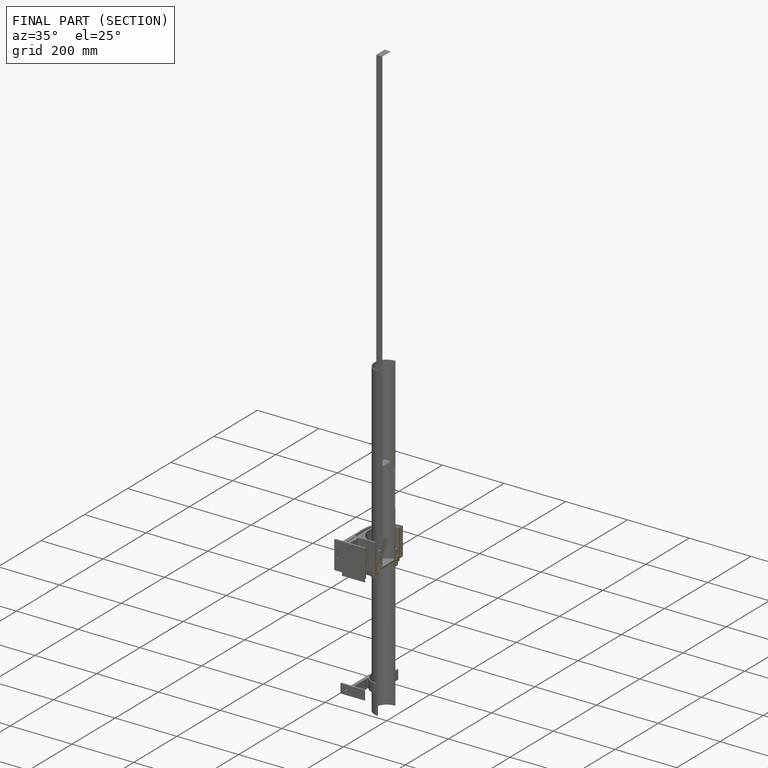
[diagram: finished part — half-section view (interior)]
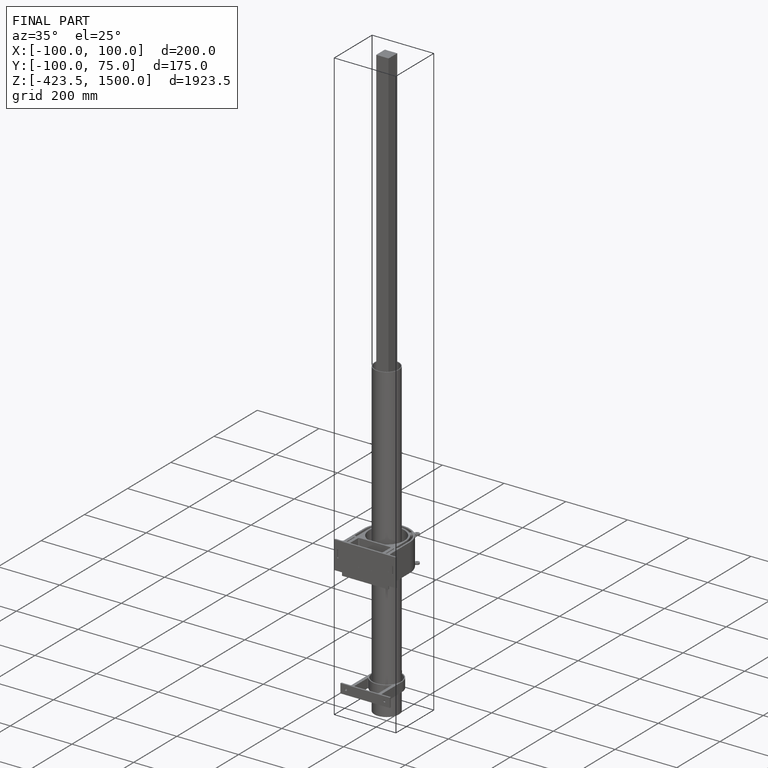
[diagram: finished part — iso view with bounding-box wireframe]
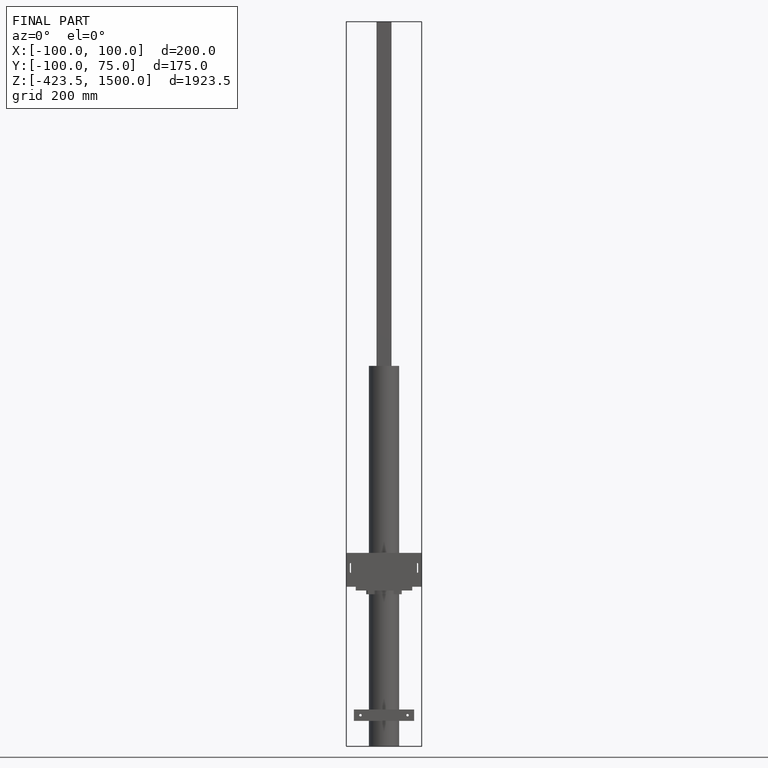
[diagram: finished part — front view with bounding-box wireframe]
